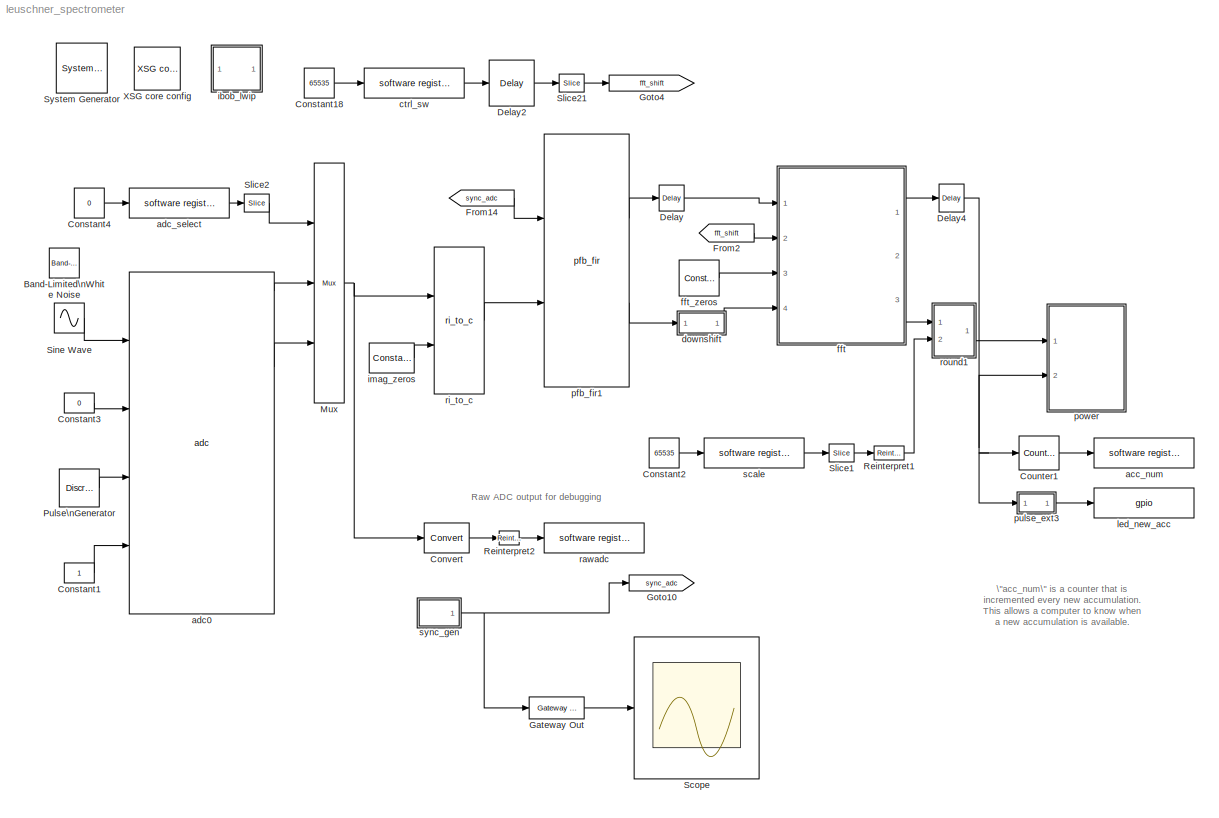
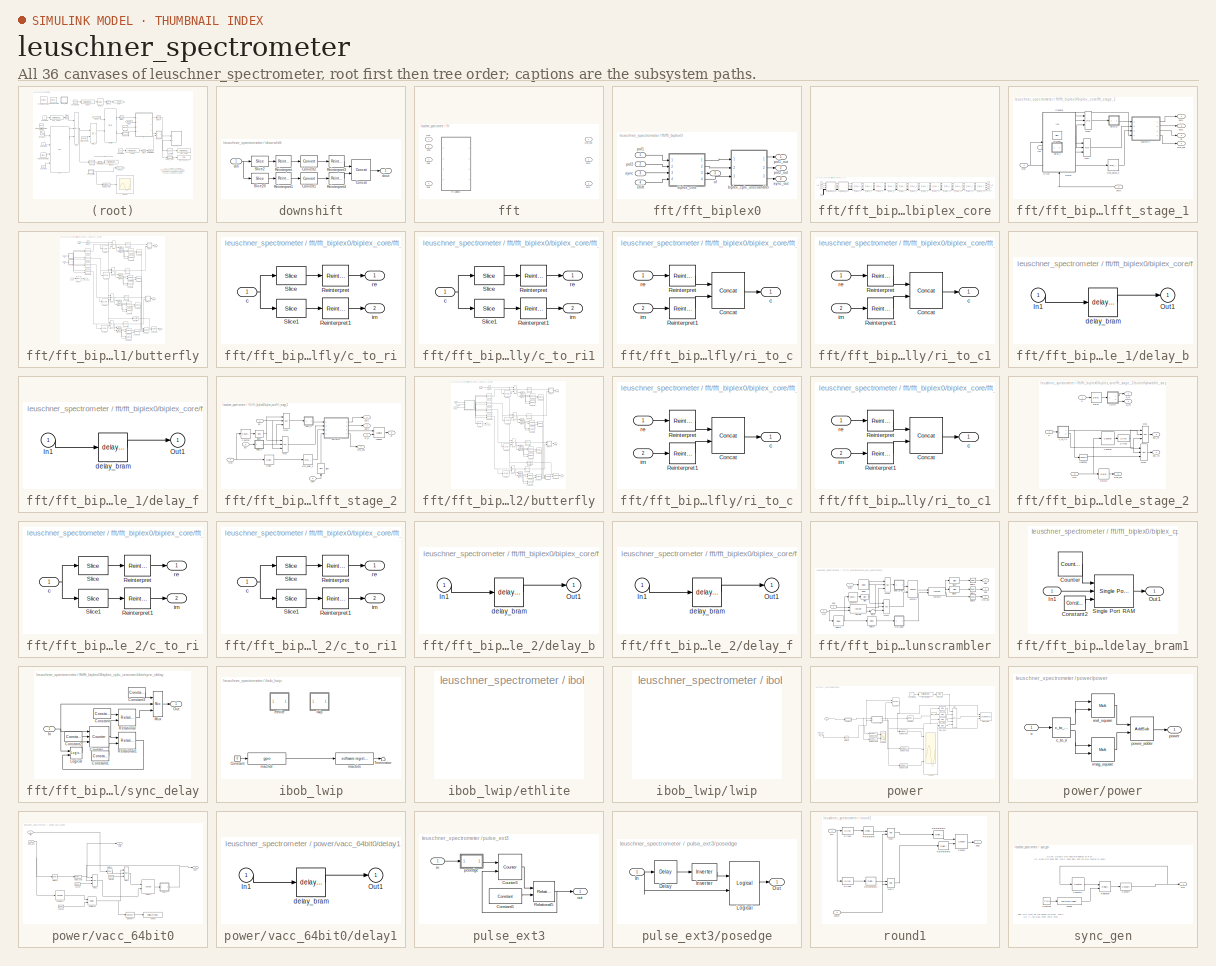
[diagram: thumbnail index - all 36 canvases of the model, root first then tree order]
MODEL leuschner_spectrometer
KIND model
BLOCK [Reference]  System Generator  REF=xbsIndex_r3/ System Generator
  AttributesFormatString = System\\nGenerator
  Ports = []
  ShowPortLabels = on
  SourceBlock = xbsIndex_r3/ System Generator
  SourceType = Xilinx System Generator
  Tag = genX
  UserData = DataTag0
  UserDataPersistent = on
  core_generation = According to Block Masks
  dbl_ovrd = According to Block Masks
  deprecated_control = off
  directory = ./heilesspec_two_inp/sysgen
  eval_field = 0
  incr_netlist = off
  package = ff1152
  part = xc2vp50
  run_coregen = off
  simulink_period = 1
  speed = -7
  synthesis_tool = XST
  sysclk_period = 41.6667
  testbench = off
  trim_vbits = Everywhere in SubSystem
  xilinxfamily = Virtex2P
BLOCK [Reference] Band-Limited\nWhite Noise  REF=simulink/Sources/Band-Limited\nWhite Noise
  Cov = [0.1]
  Ports = [0, 1]
  ShowPortLabels = on
  SourceBlock = simulink/Sources/Band-Limited\nWhite Noise
  SourceType = Band-Limited White Noise.
  Ts = 0.1
  VectorParams1D = on
  seed = [23341]
BLOCK [Constant] Constant1
BLOCK [Constant] Constant18
  Value = 65535
BLOCK [Constant] Constant2
  Value = 65535
BLOCK [Constant] Constant3
  Value = 0
BLOCK [Constant] Constant4
  Value = 0
BLOCK [Reference] Convert  REF=xbsIndex_r3/Convert
  Ports = [1, 1]
  SourceBlock = xbsIndex_r3/Convert
  SourceType = Xilinx Converter Block
  arith_type = Signed  (2's comp)
  bin_pt = 7
  dbl_ovrd = off
  explicit_period = off
  inserted_by_tool = off
  latency = 0
  n_bits = 32
  overflow = Wrap
  period = 1
  pipeline = off
  quantization = Truncate
  show_param = off
  xl_area = [0, 0, 0, 0, 0, 0, 0]
  xl_use_area = off
BLOCK [Reference] Counter1  REF=xbsIndex_r3/Counter
  Ports = [1, 1]
  SourceBlock = xbsIndex_r3/Counter
  SourceType = Xilinx Counter Block
  arith_type = Unsigned
  bin_pt = 0
  cnt_by_val = 1
  cnt_to = Inf
  cnt_type = Free Running
  dbl_ovrd = off
  en = on
  explicit_period = off
  gen_core = off
  load_pin = off
  n_bits = 32
  operation = Up
  period = 1
  rst = off
  show_param = off
  start_count = 0
  use_rpm = on
  xl_area = [0, 0, 0, 0, 0, 0, 0]
  xl_use_area = off
BLOCK [Reference] Delay  REF=xbsIndex_r3/Delay
  Ports = [1, 1]
  SourceBlock = xbsIndex_r3/Delay
  SourceType = Xilinx Delay Block
  accept_only_valid = off
  dbl_ovrd = off
  en = off
  explicit_period = off
  init_zero = on
  latency = 2
  period = 1
  reg_retiming = off
  show_param = off
  xl_area = [0, 0, 0, 0, 0, 0, 0]
  xl_use_area = off
BLOCK [Reference] Delay2  REF=xbsIndex_r3/Delay
  Ports = [1, 1]
  SourceBlock = xbsIndex_r3/Delay
  SourceType = Xilinx Delay Block
  accept_only_valid = off
  dbl_ovrd = off
  en = off
  explicit_period = off
  init_zero = on
  latency = 1
  period = 1
  reg_retiming = off
  show_param = off
  xl_area = [0, 0, 0, 0, 0, 0, 0]
  xl_use_area = off
BLOCK [Reference] Delay4  REF=xbsIndex_r3/Delay
  Ports = [1, 1]
  SourceBlock = xbsIndex_r3/Delay
  SourceType = Xilinx Delay Block
  accept_only_valid = off
  dbl_ovrd = off
  en = off
  explicit_period = off
  init_zero = on
  latency = 4
  period = 1
  reg_retiming = off
  show_param = off
  xl_area = [0, 0, 0, 0, 0, 0, 0]
  xl_use_area = off
BLOCK [From] From14
  CloseFcn = tagdialog Close
  GotoTag = sync_adc
BLOCK [From] From2
  CloseFcn = tagdialog Close
  GotoTag = fft_shift
BLOCK [Reference] Gateway Out  REF=xbsIndex_r3/Gateway Out
  LOCs = {}
  Ports = [1, 1]
  SourceBlock = xbsIndex_r3/Gateway Out
  SourceType = Xilinx Gateway Out
  arith_type = Boolean
  bin_pt = 6
  hdl_port = on
  locs_specified = off
  nbits = 8
  needs_fixed_name = off
  output_type = Double
  overflow = Wrap
  quantization = Truncate
  show_param = off
  timing_constraint = None
  xl_area = [0, 0, 0, 0, 0, 0, 0]
  xl_use_area = off
BLOCK [Goto] Goto10
  GotoTag = sync_adc
  TagVisibility = local
BLOCK [Goto] Goto4
  GotoTag = fft_shift
  TagVisibility = local
BLOCK [Reference] Mux  REF=xbsIndex_r3/Mux
  Ports = [3, 1]
  SourceBlock = xbsIndex_r3/Mux
  SourceType = Xilinx Multiplexer Block
  arith_type = Signed  (2's comp)
  bin_pt = 2
  dbl_ovrd = off
  en = off
  explicit_period = off
  gen_core = off
  inputs = 2
  latency = 0
  mux_type = off
  n_bits = 8
  overflow = Wrap
  period = 1
  precision = Full
  quantization = Truncate
  show_param = off
  use_rpm = off
  xl_area = [0, 0, 0, 0, 0, 0, 0]
  xl_use_area = off
BLOCK [DiscretePulseGenerator] Pulse\nGenerator
  Period = 2^9
  Ports = [0, 1]
BLOCK [Reference] Reinterpret1  REF=xbsIndex_r3/Reinterpret
  Ports = [1, 1]
  SourceBlock = xbsIndex_r3/Reinterpret
  SourceType = Xilinx Type Reinterpreting Block
  arith_type = Unsigned
  bin_pt = 3
  force_arith_type = on
  force_bin_pt = on
  force_valid = on
BLOCK [Reference] Reinterpret2  REF=xbsIndex_r3/Reinterpret
  Ports = [1, 1]
  SourceBlock = xbsIndex_r3/Reinterpret
  SourceType = Xilinx Type Reinterpreting Block
  arith_type = Unsigned
  bin_pt = 0
  force_arith_type = on
  force_bin_pt = on
  force_valid = on
BLOCK [Scope] Scope
  DataFormat = StructureWithTime
  NumInputPorts = 1
  Ports = [1]
  YMax = 1
  YMin = -1
BLOCK [Sin] Sine Wave
  Amplitude = 0.2
  Frequency = 2*pi*0.5
  Ports = [0, 1]
  SampleTime = 1
  Samples = 8
  SineType = Sample based
BLOCK [Reference] Slice1  REF=xbsIndex_r3/Slice
  Ports = [1, 1]
  SourceBlock = xbsIndex_r3/Slice
  SourceType = Xilinx Slice Block
  base0 = LSB of Input
  base1 = MSB of Input
  bit0 = 0
  bit1 = 0
  boolean_output = off
  dbl_ovrd = off
  explicit_period = off
  mode = Lower Bit Location + Width
  nbits = 18
  period = 1
BLOCK [Reference] Slice2  REF=xbsIndex_r3/Slice
  Ports = [1, 1]
  SourceBlock = xbsIndex_r3/Slice
  SourceType = Xilinx Slice Block
  base0 = LSB of Input
  base1 = MSB of Input
  bit0 = 0
  bit1 = 0
  boolean_output = on
  dbl_ovrd = off
  explicit_period = off
  mode = Lower Bit Location + Width
  nbits = 1
  period = 1
BLOCK [Reference] Slice21  REF=xbsIndex_r3/Slice
  Ports = [1, 1]
  SourceBlock = xbsIndex_r3/Slice
  SourceType = Xilinx Slice Block
  base0 = LSB of Input
  base1 = MSB of Input
  bit0 = 0
  bit1 = 0
  boolean_output = off
  dbl_ovrd = off
  explicit_period = off
  mode = Lower Bit Location + Width
  nbits = 16
  period = 1
BLOCK [Reference] XSG core config  REF=xps_library/XSG core config  (lib defined in mdl_00b5cec29cd0, mdl_02ab6ecaa3d1, +5 more)
  Ports = []
  ShowPortLabels = on
  SourceBlock = xps_library/XSG core config
  SourceType = xsg core config
  Tag = xps:xsg
  clk_rate = 24
  clk_src = adc0_clk
  gpio_clk_bit_index = 0
  gpio_clk_io_group = iBOB:sma
  hw_sys = iBOB
  ibob_linux = off
  mpc_type = powerpc405
  sample_period = 1
  synthesis_tool = XST
BLOCK [Reference] acc_num  REF=xps_library/software register  (lib defined in mdl_00b5cec29cd0, mdl_02ab6ecaa3d1, +5 more)
  Ports = [1, 1]
  ShowPortLabels = on
  SourceBlock = xps_library/software register
  Tag = xps:sw_reg
  arith_type = Unsigned
  bin_pt = 0
  bitwidth = 32
  gw_name = heilesspec_two_inp_acc_num_user_data_in
  io_dir = To Processor
  sample_period = 1
BLOCK [Reference] adc0  REF=xps_library/adc  (lib defined in mdl_00b5cec29cd0, mdl_02ab6ecaa3d1, +5 more)
  Ports = [4, 17]
  ShowPortLabels = on
  SourceBlock = xps_library/adc
  SourceType = adc
  Tag = xps:adc
  adc_brd = iBOB:adc0
  adc_clk_rate = 96
  adc_interleave = off
  sample_period = 1
BLOCK [Reference] adc_select  REF=xps_library/software register  (lib defined in mdl_00b5cec29cd0, mdl_02ab6ecaa3d1, +5 more)
  Ports = [1, 1]
  ShowPortLabels = on
  SourceBlock = xps_library/software register
  Tag = xps:sw_reg
  arith_type = Unsigned
  bin_pt = 0
  bitwidth = 32
  gw_name = heilesspec_two_inp_adc_select_user_data_out
  io_dir = From Processor
  sample_period = 1
BLOCK [Reference] ctrl_sw  REF=xps_library/software register  (lib defined in mdl_00b5cec29cd0, mdl_02ab6ecaa3d1, +5 more)
  Ports = [1, 1]
  ShowPortLabels = on
  SourceBlock = xps_library/software register
  Tag = xps:sw_reg
  arith_type = Unsigned
  bin_pt = 0
  bitwidth = 32
  gw_name = heilesspec_two_inp_ctrl_sw_user_data_out
  io_dir = From Processor
  sample_period = 1
BLOCK [SubSystem] downshift
  MinAlgLoopOccurrences = off
  Ports = [1, 1]
  RTWSystemCode = Auto
  TreatAsAtomicUnit = off
BLOCK [Reference] downshift/Concat  REF=xbsIndex_r3/Concat
  Ports = [2, 1]
  SourceBlock = xbsIndex_r3/Concat
  SourceType = Xilinx Bus Concatenator
  dbl_ovrd = off
  explicit_period = off
  num_inputs = 2
  period = 1
BLOCK [Reference] downshift/Convert1  REF=xbsIndex_r3/Convert
  Ports = [1, 1]
  SourceBlock = xbsIndex_r3/Convert
  SourceType = Xilinx Converter Block
  arith_type = Signed  (2's comp)
  bin_pt = 15
  dbl_ovrd = off
  explicit_period = off
  inserted_by_tool = off
  latency = 2
  n_bits = 18
  overflow = Wrap
  period = 1
  pipeline = off
  quantization = Round  (unbiased: Even Values)
  show_param = off
  xl_area = [0, 0, 0, 0, 0, 0, 0]
  xl_use_area = off
BLOCK [Reference] downshift/Convert2  REF=xbsIndex_r3/Convert
  Ports = [1, 1]
  SourceBlock = xbsIndex_r3/Convert
  SourceType = Xilinx Converter Block
  arith_type = Signed  (2's comp)
  bin_pt = 15
  dbl_ovrd = off
  explicit_period = off
  inserted_by_tool = off
  latency = 2
  n_bits = 18
  overflow = Wrap
  period = 1
  pipeline = off
  quantization = Round  (unbiased: Even Values)
  show_param = off
  xl_area = [0, 0, 0, 0, 0, 0, 0]
  xl_use_area = off
BLOCK [Reference] downshift/Reinterpret  REF=xbsIndex_r3/Reinterpret
  Ports = [1, 1]
  SourceBlock = xbsIndex_r3/Reinterpret
  SourceType = Xilinx Type Reinterpreting Block
  arith_type = Signed  (2's comp)
  bin_pt = 17
  force_arith_type = on
  force_bin_pt = on
  force_valid = on
BLOCK [Reference] downshift/Reinterpret1  REF=xbsIndex_r3/Reinterpret
  Ports = [1, 1]
  SourceBlock = xbsIndex_r3/Reinterpret
  SourceType = Xilinx Type Reinterpreting Block
  arith_type = Signed  (2's comp)
  bin_pt = 17
  force_arith_type = on
  force_bin_pt = on
  force_valid = on
BLOCK [Reference] downshift/Reinterpret3  REF=xbsIndex_r3/Reinterpret
  Ports = [1, 1]
  SourceBlock = xbsIndex_r3/Reinterpret
  SourceType = Xilinx Type Reinterpreting Block
  arith_type = Unsigned
  bin_pt = 0
  force_arith_type = on
  force_bin_pt = on
  force_valid = on
BLOCK [Reference] downshift/Reinterpret4  REF=xbsIndex_r3/Reinterpret
  Ports = [1, 1]
  SourceBlock = xbsIndex_r3/Reinterpret
  SourceType = Xilinx Type Reinterpreting Block
  arith_type = Unsigned
  bin_pt = 0
  force_arith_type = on
  force_bin_pt = on
  force_valid = on
BLOCK [Reference] downshift/Slice2  REF=xbsIndex_r3/Slice
  Ports = [1, 1]
  SourceBlock = xbsIndex_r3/Slice
  SourceType = Xilinx Slice Block
  base0 = LSB of Input
  base1 = MSB of Input
  bit0 = 0
  bit1 = 0
  boolean_output = off
  dbl_ovrd = off
  explicit_period = off
  mode = Upper Bit Location + Width
  nbits = 18
  period = 1
BLOCK [Reference] downshift/Slice20  REF=xbsIndex_r3/Slice
  Ports = [1, 1]
  SourceBlock = xbsIndex_r3/Slice
  SourceType = Xilinx Slice Block
  base0 = LSB of Input
  base1 = MSB of Input
  bit0 = 0
  bit1 = 0
  boolean_output = off
  dbl_ovrd = off
  explicit_period = off
  mode = Lower Bit Location + Width
  nbits = 18
  period = 1
BLOCK [Inport] downshift/din
  IconDisplay = Port number
  LatchInput = off
  Port = 1
BLOCK [Outport] downshift/dout
  BusOutputAsStruct = off
  IconDisplay = Port number
BLOCK [SubSystem] fft
  AncestorBlock = fft_library/fft
  MaskCallbackString = |||||||
  MaskEnableString = on,on,on,on,on,on,on,on
  MaskIconFrame = on
  MaskIconOpaque = on
  MaskIconRotate = none
  MaskIconUnits = autoscale
  MaskInitialization = fft_mask;
  MaskPromptString = Size of FFT: (2^?)|Bit Width|Number of Simultaneous Inputs: (2^?)|Quantization Behavior|Overflow Behavior|Add Latency|Mult Latency|BRAM Latency
  MaskSelfModifiable = on
  MaskStyleString = edit,edit,edit,popup(Truncate|Round  (unbiased: +/- Inf)|Round  (unbiased: Even Values)),popup(Wrap|Saturate|Error),edit,edit,edit
  MaskTabNameString = ,,,,,,,
  MaskToolTipString = on,on,on,on,on,on,on,on
  MaskTunableValueString = on,on,on,on,on,on,on,on
  MaskValueString = 14|18|0|Truncate|Wrap|2|4|1
  MaskVarAliasString = ,,,,,,,
  MaskVariables = FFTSize=@1;BitWidth=@2;n_inputs=@3;quantization=&4;overflow=&5;add_latency=@6;mult_latency=@7;bram_latency=@8;
  MaskVisibilityString = on,on,on,on,on,on,on,on
  MinAlgLoopOccurrences = off
  Ports = [4, 3]
  RTWSystemCode = Auto
  TreatAsAtomicUnit = off
BLOCK [SubSystem] fft/fft_biplex0
  AncestorBlock = fft_library/fft_biplex
  MaskCallbackString = ||||||
  MaskEnableString = on,on,on,on,on,on,on
  MaskIconFrame = on
  MaskIconOpaque = on
  MaskIconRotate = none
  MaskIconUnits = autoscale
  MaskInitialization = cursys = gcb;\ndisp(cursys);\nbiplex_core = [cursys,'/biplex_core'];\nif ~strcmp(get_param(biplex_core, 'quantization'), quantization),\n    set_param(biplex_core, 'quantization', quantization);\nend\nif ~strcmp(get_param(biplex_core, 'overflow'), overflow),\n    set_param(biplex_core, 'overflow', overflow);\nend
  MaskPromptString = Size of FFT: (2^? pnts)|Bitwidth: (Max Efficiency at 18 bits)|Quantization Behavior|Overflow Behavior|Add Latency|Mult Latency|BRAM Latency
  MaskSelfModifiable = on
  MaskStyleString = edit,edit,popup(Truncate|Round  (unbiased: +/- Inf)|Round  (unbiased: Even Values)),popup(Wrap|Saturate|Error),edit,edit,edit
  MaskTabNameString = ,,,,,,
  MaskToolTipString = on,on,on,on,on,on,on
  MaskTunableValueString = on,on,on,on,on,on,on
  MaskType = fft_biplex
  MaskValueString = FFTSize-n_inputs|BitWidth|Truncate|Wrap|add_latency|mult_latency|bram_latency
  MaskVarAliasString = ,,,,,,
  MaskVariables = FFTSize=@1;BitWidth=@2;quantization=&3;overflow=&4;add_latency=@5;mult_latency=@6;bram_latency=@7;
  MaskVisibilityString = on,on,on,on,on,on,on
  MinAlgLoopOccurrences = off
  Ports = [4, 4]
  RTWSystemCode = Auto
  TreatAsAtomicUnit = off
BLOCK [SubSystem] fft/fft_biplex0/biplex_core
  AncestorBlock = fft_library/biplex_core
  MaskCallbackString = ||||||
  MaskEnableString = on,on,on,on,on,on,on
  MaskIconFrame = on
  MaskIconOpaque = on
  MaskIconRotate = none
  MaskIconUnits = autoscale
  MaskInitialization = biplex_core_mask;
  MaskPromptString = Size of FFT: (2^? pnts)|Bitwidth: (Max Efficiency at 18 bits)|Quantization Behavior|Overflow Behavior|Add Latency|Mult Latency|BRAM Latency
  MaskSelfModifiable = on
  MaskStyleString = edit,edit,popup(Truncate|Round  (unbiased: +/- Inf)|Round  (unbiased: Even Values)),popup(Wrap|Saturate|Error),edit,edit,edit
  MaskTabNameString = ,,,,,,
  MaskToolTipString = on,on,on,on,on,on,on
  MaskTunableValueString = on,on,on,on,on,on,on
  MaskValueString = FFTSize|BitWidth|Truncate|Wrap|add_latency|mult_latency|bram_latency
  MaskVarAliasString = ,,,,,,
  MaskVariables = FFTSize=@1;BitWidth=@2;quantization=&3;overflow=&4;add_latency=@5;mult_latency=@6;bram_latency=@7;
  MaskVisibilityString = on,on,on,on,on,on,on
  MinAlgLoopOccurrences = off
  Ports = [4, 4]
  RTWSystemCode = Auto
  TreatAsAtomicUnit = off
BLOCK [SubSystem] fft/fft_biplex0/biplex_core/fft_stage_1
  MaskCallbackString = ||||||||||
  MaskEnableString = on,on,on,on,on,on,on,on,on,on,on
  MaskIconFrame = on
  MaskIconOpaque = on
  MaskIconRotate = none
  MaskIconUnits = autoscale
  MaskInitialization = fft_stage_n_mask;
  MaskPromptString = Size of FFT: (2^? pnts)|Stage of FFT:|Output Bitwidth:|Implement Delays in BRAM:|Store Coefficients in BRAM:|Maximum Coefficient Depth: (2^?)|Quantization Behavior|Overflow Behavior|Add Latency|Mult Latency|BRAM Latency
  MaskSelfModifiable = on
  MaskStyleString = edit,edit,edit,checkbox,checkbox,edit,popup(Truncate|Round  (unbiased: +/- Inf)|Round  (unbiased: Even Values)),popup(Wrap|Saturate|Error),edit,edit,edit
  MaskTabNameString = ,,,,,,,,,,
  MaskToolTipString = on,on,on,on,on,on,on,on,on,on,on
  MaskTunableValueString = on,on,on,on,on,on,on,on,on,on,on
  MaskType = fft_stage
  MaskValueString = FFTSize|1|BitWidth|on|off|MaxCoeffNum|Truncate|Wrap|add_latency|mult_latency|bram_latency
  MaskVarAliasString = ,,,,,,,,,,
  MaskVariables = FFTSize=@1;FFTStage=@2;BitWidth=@3;DelayBram=@4;CoeffBram=&5;MaxCoeffNum=@6;quantization=&7;overflow=&8;add_latency=@9;mult_latency=@10;bram_latency=@11;
  MaskVisibilityString = on,on,on,on,on,on,on,on,on,on,on
  MinAlgLoopOccurrences = off
  Ports = [4, 4]
  RTWSystemCode = Auto
  TreatAsAtomicUnit = off
BLOCK [Reference] fft/fft_biplex0/biplex_core/fft_stage_1/Counter  REF=xbsIndex_r3/Counter
  Ports = [1, 1]
  SourceBlock = xbsIndex_r3/Counter
  SourceType = Xilinx Counter Block
  arith_type = Unsigned
  bin_pt = 0
  cnt_by_val = 1
  cnt_to = Inf
  cnt_type = Free Running
  dbl_ovrd = off
  en = off
  explicit_period = off
  gen_core = on
  load_pin = off
  n_bits = FFTSize-FFTStage+1
  operation = Up
  period = 1
  rst = on
  show_param = off
  start_count = 0
  use_rpm = off
  xl_area = [0, 0, 0, 0, 0, 0, 0]
  xl_use_area = off
BLOCK [Reference] fft/fft_biplex0/biplex_core/fft_stage_1/Delay  REF=xbsIndex_r3/Delay
  Ports = [1, 1]
  SourceBlock = xbsIndex_r3/Delay
  SourceType = Xilinx Delay Block
  accept_only_valid = off
  dbl_ovrd = off
  en = off
  explicit_period = off
  init_zero = on
  latency = 1
  period = 1
  reg_retiming = off
  show_param = off
  xl_area = [0, 0, 0, 0, 0, 0, 0]
  xl_use_area = off
BLOCK [Reference] fft/fft_biplex0/biplex_core/fft_stage_1/Mux  REF=xbsIndex_r3/Mux
  Ports = [3, 1]
  SourceBlock = xbsIndex_r3/Mux
  SourceType = Xilinx Multiplexer Block
  arith_type = Signed  (2's comp)
  bin_pt = 2
  dbl_ovrd = off
  en = off
  explicit_period = off
  gen_core = on
  inputs = 2
  latency = 1
  mux_type = off
  n_bits = 8
  overflow = Wrap
  period = 1
  precision = Full
  quantization = Truncate
  show_param = off
  use_rpm = off
  xl_area = [0, 0, 0, 0, 0, 0, 0]
  xl_use_area = off
BLOCK [Reference] fft/fft_biplex0/biplex_core/fft_stage_1/Mux1  REF=xbsIndex_r3/Mux
  Ports = [3, 1]
  SourceBlock = xbsIndex_r3/Mux
  SourceType = Xilinx Multiplexer Block
  arith_type = Signed  (2's comp)
  bin_pt = 2
  dbl_ovrd = off
  en = off
  explicit_period = off
  gen_core = on
  inputs = 2
  latency = 1
  mux_type = off
  n_bits = 8
  overflow = Wrap
  period = 1
  precision = Full
  quantization = Truncate
  show_param = off
  use_rpm = off
  xl_area = [0, 0, 0, 0, 0, 0, 0]
  xl_use_area = off
BLOCK [Reference] fft/fft_biplex0/biplex_core/fft_stage_1/Slice  REF=xbsIndex_r3/Slice
  Ports = [1, 1]
  SourceBlock = xbsIndex_r3/Slice
  SourceType = Xilinx Slice Block
  base0 = LSB of Input
  base1 = MSB of Input
  bit0 = FFTStage - 1
  bit1 = -(FFTStage - 1)
  boolean_output = on
  dbl_ovrd = off
  explicit_period = off
  mode = Lower Bit Location + Width
  nbits = 1
  period = 1
BLOCK [Reference] fft/fft_biplex0/biplex_core/fft_stage_1/Slice1  REF=xbsIndex_r3/Slice
  Ports = [1, 1]
  SourceBlock = xbsIndex_r3/Slice
  SourceType = Xilinx Slice Block
  base0 = LSB of Input
  base1 = MSB of Input
  bit0 = 0
  bit1 = 0
  boolean_output = off
  dbl_ovrd = off
  explicit_period = off
  mode = Upper Bit Location + Width
  nbits = 1
  period = 1
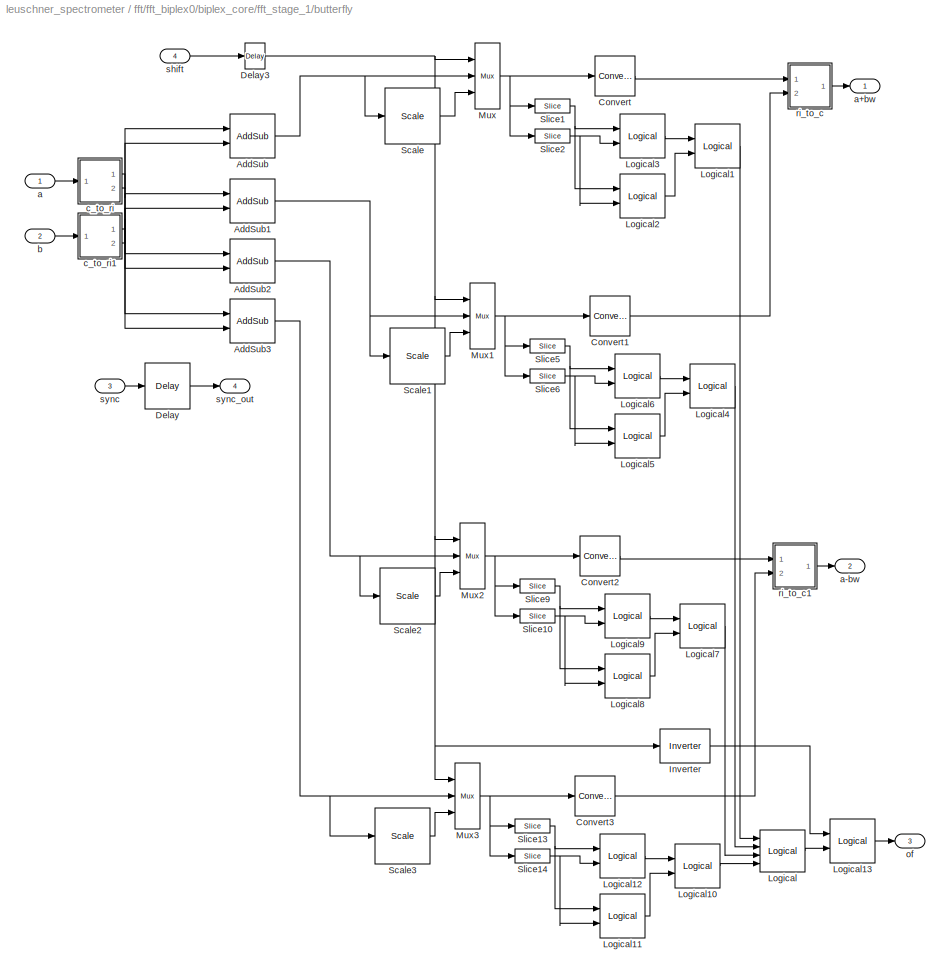
BLOCK [SubSystem] fft/fft_biplex0/biplex_core/fft_stage_1/butterfly
  MinAlgLoopOccurrences = off
  Ports = [4, 4]
  RTWSystemCode = Auto
  TreatAsAtomicUnit = off
BLOCK [Reference] fft/fft_biplex0/biplex_core/fft_stage_1/butterfly/AddSub  REF=xbsIndex_r3/AddSub
  Ports = [2, 1]
  SourceBlock = xbsIndex_r3/AddSub
  SourceType = Xilinx Adder/Subtractor
  arith_type = Unsigned
  bin_pt = 2
  dbl_ovrd = off
  en = off
  explicit_period = off
  gen_core = on
  latency = add_latency
  mode = Addition
  n_bits = 8
  overflow = Wrap
  period = 1
  pipeline = on
  precision = Full
  quantization = Truncate
  show_param = on
  use_carryin = off
  use_carryout = off
  use_core = on
  use_rpm = on
  xl_area = [0, 0, 0, 0, 0, 0, 0]
  xl_use_area = off
BLOCK [Reference] fft/fft_biplex0/biplex_core/fft_stage_1/butterfly/AddSub1  REF=xbsIndex_r3/AddSub
  Ports = [2, 1]
  SourceBlock = xbsIndex_r3/AddSub
  SourceType = Xilinx Adder/Subtractor
  arith_type = Unsigned
  bin_pt = 2
  dbl_ovrd = off
  en = off
  explicit_period = off
  gen_core = on
  latency = add_latency
  mode = Addition
  n_bits = 8
  overflow = Wrap
  period = 1
  pipeline = on
  precision = Full
  quantization = Truncate
  show_param = on
  use_carryin = off
  use_carryout = off
  use_core = on
  use_rpm = on
  xl_area = [0, 0, 0, 0, 0, 0, 0]
  xl_use_area = off
BLOCK [Reference] fft/fft_biplex0/biplex_core/fft_stage_1/butterfly/AddSub2  REF=xbsIndex_r3/AddSub
  Ports = [2, 1]
  SourceBlock = xbsIndex_r3/AddSub
  SourceType = Xilinx Adder/Subtractor
  arith_type = Unsigned
  bin_pt = 2
  dbl_ovrd = off
  en = off
  explicit_period = off
  gen_core = on
  latency = add_latency
  mode = Subtraction
  n_bits = 8
  overflow = Wrap
  period = 1
  pipeline = on
  precision = Full
  quantization = Truncate
  show_param = on
  use_carryin = off
  use_carryout = off
  use_core = on
  use_rpm = on
  xl_area = [0, 0, 0, 0, 0, 0, 0]
  xl_use_area = off
BLOCK [Reference] fft/fft_biplex0/biplex_core/fft_stage_1/butterfly/AddSub3  REF=xbsIndex_r3/AddSub
  Ports = [2, 1]
  SourceBlock = xbsIndex_r3/AddSub
  SourceType = Xilinx Adder/Subtractor
  arith_type = Unsigned
  bin_pt = 2
  dbl_ovrd = off
  en = off
  explicit_period = off
  gen_core = on
  latency = add_latency
  mode = Subtraction
  n_bits = 8
  overflow = Wrap
  period = 1
  pipeline = on
  precision = Full
  quantization = Truncate
  show_param = on
  use_carryin = off
  use_carryout = off
  use_core = on
  use_rpm = on
  xl_area = [0, 0, 0, 0, 0, 0, 0]
  xl_use_area = off
BLOCK [Reference] fft/fft_biplex0/biplex_core/fft_stage_1/butterfly/Convert  REF=xbsIndex_r3/Convert
  Ports = [1, 1]
  SourceBlock = xbsIndex_r3/Convert
  SourceType = Xilinx Converter Block
  arith_type = Signed  (2's comp)
  bin_pt = BitWidth-1
  dbl_ovrd = off
  explicit_period = off
  inserted_by_tool = off
  latency = add_latency
  n_bits = BitWidth
  overflow = Wrap
  period = 1
  pipeline = off
  quantization = Truncate
  show_param = off
  xl_area = [0, 0, 0, 0, 0, 0, 0]
  xl_use_area = off
BLOCK [Reference] fft/fft_biplex0/biplex_core/fft_stage_1/butterfly/Convert1  REF=xbsIndex_r3/Convert
  Ports = [1, 1]
  SourceBlock = xbsIndex_r3/Convert
  SourceType = Xilinx Converter Block
  arith_type = Signed  (2's comp)
  bin_pt = BitWidth-1
  dbl_ovrd = off
  explicit_period = off
  inserted_by_tool = off
  latency = add_latency
  n_bits = BitWidth
  overflow = Wrap
  period = 1
  pipeline = off
  quantization = Truncate
  show_param = off
  xl_area = [0, 0, 0, 0, 0, 0, 0]
  xl_use_area = off
BLOCK [Reference] fft/fft_biplex0/biplex_core/fft_stage_1/butterfly/Convert2  REF=xbsIndex_r3/Convert
  Ports = [1, 1]
  SourceBlock = xbsIndex_r3/Convert
  SourceType = Xilinx Converter Block
  arith_type = Signed  (2's comp)
  bin_pt = BitWidth-1
  dbl_ovrd = off
  explicit_period = off
  inserted_by_tool = off
  latency = add_latency
  n_bits = BitWidth
  overflow = Wrap
  period = 1
  pipeline = off
  quantization = Truncate
  show_param = off
  xl_area = [0, 0, 0, 0, 0, 0, 0]
  xl_use_area = off
BLOCK [Reference] fft/fft_biplex0/biplex_core/fft_stage_1/butterfly/Convert3  REF=xbsIndex_r3/Convert
  Ports = [1, 1]
  SourceBlock = xbsIndex_r3/Convert
  SourceType = Xilinx Converter Block
  arith_type = Signed  (2's comp)
  bin_pt = BitWidth-1
  dbl_ovrd = off
  explicit_period = off
  inserted_by_tool = off
  latency = add_latency
  n_bits = BitWidth
  overflow = Wrap
  period = 1
  pipeline = off
  quantization = Truncate
  show_param = off
  xl_area = [0, 0, 0, 0, 0, 0, 0]
  xl_use_area = off
BLOCK [Reference] fft/fft_biplex0/biplex_core/fft_stage_1/butterfly/Delay  REF=xbsIndex_r3/Delay
  Ports = [1, 1]
  SourceBlock = xbsIndex_r3/Delay
  SourceType = Xilinx Delay Block
  accept_only_valid = off
  dbl_ovrd = off
  en = off
  explicit_period = off
  init_zero = on
  latency = 2 * add_latency + 1
  period = 1
  reg_retiming = off
  show_param = off
  xl_area = [0, 0, 0, 0, 0, 0, 0]
  xl_use_area = off
BLOCK [Reference] fft/fft_biplex0/biplex_core/fft_stage_1/butterfly/Delay3  REF=xbsIndex_r3/Delay
  Ports = [1, 1]
  SourceBlock = xbsIndex_r3/Delay
  SourceType = Xilinx Delay Block
  accept_only_valid = off
  dbl_ovrd = off
  en = off
  explicit_period = off
  init_zero = on
  latency = 1
  period = 1
  reg_retiming = off
  show_param = off
  xl_area = [0, 0, 0, 0, 0, 0, 0]
  xl_use_area = off
BLOCK [Reference] fft/fft_biplex0/biplex_core/fft_stage_1/butterfly/Inverter  REF=xbsIndex_r3/Inverter
  Ports = [1, 1]
  SourceBlock = xbsIndex_r3/Inverter
  SourceType = Xilinx Inverter
  dbl_ovrd = off
  en = off
  explicit_period = off
  latency = 0
  period = 1
  show_param = off
  xl_area = [0, 0, 0, 0, 0, 0, 0]
  xl_use_area = off
BLOCK [Reference] fft/fft_biplex0/biplex_core/fft_stage_1/butterfly/Logical  REF=xbsIndex_r3/Logical
  Ports = [4, 1]
  SourceBlock = xbsIndex_r3/Logical
  SourceType = Xilinx Logical Block
  align_bp = on
  arith_type = Unsigned
  bin_pt = 2
  dbl_ovrd = off
  en = off
  explicit_period = off
  inputs = 4
  latency = 1
  logical_function = OR
  n_bits = 8
  period = 1
  precision = Full
  show_param = off
  xl_area = [0, 0, 0, 0, 0, 0, 0]
  xl_use_area = off
BLOCK [Reference] fft/fft_biplex0/biplex_core/fft_stage_1/butterfly/Logical1  REF=xbsIndex_r3/Logical
  Ports = [2, 1]
  SourceBlock = xbsIndex_r3/Logical
  SourceType = Xilinx Logical Block
  align_bp = off
  arith_type = Unsigned
  bin_pt = 2
  dbl_ovrd = off
  en = off
  explicit_period = off
  inputs = 2
  latency = 1
  logical_function = OR
  n_bits = 8
  period = 1
  precision = Full
  show_param = off
  xl_area = [0, 0, 0, 0, 0, 0, 0]
  xl_use_area = off
BLOCK [Reference] fft/fft_biplex0/biplex_core/fft_stage_1/butterfly/Logical10  REF=xbsIndex_r3/Logical
  Ports = [2, 1]
  SourceBlock = xbsIndex_r3/Logical
  SourceType = Xilinx Logical Block
  align_bp = off
  arith_type = Unsigned
  bin_pt = 2
  dbl_ovrd = off
  en = off
  explicit_period = off
  inputs = 2
  latency = 1
  logical_function = OR
  n_bits = 8
  period = 1
  precision = Full
  show_param = off
  xl_area = [0, 0, 0, 0, 0, 0, 0]
  xl_use_area = off
BLOCK [Reference] fft/fft_biplex0/biplex_core/fft_stage_1/butterfly/Logical11  REF=xbsIndex_r3/Logical
  Ports = [2, 1]
  SourceBlock = xbsIndex_r3/Logical
  SourceType = Xilinx Logical Block
  align_bp = off
  arith_type = Unsigned
  bin_pt = 2
  dbl_ovrd = off
  en = off
  explicit_period = off
  inputs = 2
  latency = 1
  logical_function = NOR
  n_bits = 8
  period = 1
  precision = Full
  show_param = off
  xl_area = [0, 0, 0, 0, 0, 0, 0]
  xl_use_area = off
BLOCK [Reference] fft/fft_biplex0/biplex_core/fft_stage_1/butterfly/Logical12  REF=xbsIndex_r3/Logical
  Ports = [2, 1]
  SourceBlock = xbsIndex_r3/Logical
  SourceType = Xilinx Logical Block
  align_bp = off
  arith_type = Unsigned
  bin_pt = 2
  dbl_ovrd = off
  en = off
  explicit_period = off
  inputs = 2
  latency = 1
  logical_function = AND
  n_bits = 8
  period = 1
  precision = Full
  show_param = off
  xl_area = [0, 0, 0, 0, 0, 0, 0]
  xl_use_area = off
BLOCK [Reference] fft/fft_biplex0/biplex_core/fft_stage_1/butterfly/Logical13  REF=xbsIndex_r3/Logical
  Ports = [2, 1]
  SourceBlock = xbsIndex_r3/Logical
  SourceType = Xilinx Logical Block
  align_bp = off
  arith_type = Unsigned
  bin_pt = 2
  dbl_ovrd = off
  en = off
  explicit_period = off
  inputs = 2
  latency = 1
  logical_function = AND
  n_bits = 8
  period = 1
  precision = Full
  show_param = off
  xl_area = [0, 0, 0, 0, 0, 0, 0]
  xl_use_area = off
BLOCK [Reference] fft/fft_biplex0/biplex_core/fft_stage_1/butterfly/Logical2  REF=xbsIndex_r3/Logical
  Ports = [2, 1]
  SourceBlock = xbsIndex_r3/Logical
  SourceType = Xilinx Logical Block
  align_bp = off
  arith_type = Unsigned
  bin_pt = 2
  dbl_ovrd = off
  en = off
  explicit_period = off
  inputs = 2
  latency = 1
  logical_function = NOR
  n_bits = 8
  period = 1
  precision = Full
  show_param = off
  xl_area = [0, 0, 0, 0, 0, 0, 0]
  xl_use_area = off
BLOCK [Reference] fft/fft_biplex0/biplex_core/fft_stage_1/butterfly/Logical3  REF=xbsIndex_r3/Logical
  Ports = [2, 1]
  SourceBlock = xbsIndex_r3/Logical
  SourceType = Xilinx Logical Block
  align_bp = off
  arith_type = Unsigned
  bin_pt = 2
  dbl_ovrd = off
  en = off
  explicit_period = off
  inputs = 2
  latency = 1
  logical_function = AND
  n_bits = 8
  period = 1
  precision = Full
  show_param = off
  xl_area = [0, 0, 0, 0, 0, 0, 0]
  xl_use_area = off
BLOCK [Reference] fft/fft_biplex0/biplex_core/fft_stage_1/butterfly/Logical4  REF=xbsIndex_r3/Logical
  Ports = [2, 1]
  SourceBlock = xbsIndex_r3/Logical
  SourceType = Xilinx Logical Block
  align_bp = off
  arith_type = Unsigned
  bin_pt = 2
  dbl_ovrd = off
  en = off
  explicit_period = off
  inputs = 2
  latency = 1
  logical_function = OR
  n_bits = 8
  period = 1
  precision = Full
  show_param = off
  xl_area = [0, 0, 0, 0, 0, 0, 0]
  xl_use_area = off
BLOCK [Reference] fft/fft_biplex0/biplex_core/fft_stage_1/butterfly/Logical5  REF=xbsIndex_r3/Logical
  Ports = [2, 1]
  SourceBlock = xbsIndex_r3/Logical
  SourceType = Xilinx Logical Block
  align_bp = off
  arith_type = Unsigned
  bin_pt = 2
  dbl_ovrd = off
  en = off
  explicit_period = off
  inputs = 2
  latency = 1
  logical_function = NOR
  n_bits = 8
  period = 1
  precision = Full
  show_param = off
  xl_area = [0, 0, 0, 0, 0, 0, 0]
  xl_use_area = off
BLOCK [Reference] fft/fft_biplex0/biplex_core/fft_stage_1/butterfly/Logical6  REF=xbsIndex_r3/Logical
  Ports = [2, 1]
  SourceBlock = xbsIndex_r3/Logical
  SourceType = Xilinx Logical Block
  align_bp = off
  arith_type = Unsigned
  bin_pt = 2
  dbl_ovrd = off
  en = off
  explicit_period = off
  inputs = 2
  latency = 1
  logical_function = AND
  n_bits = 8
  period = 1
  precision = Full
  show_param = off
  xl_area = [0, 0, 0, 0, 0, 0, 0]
  xl_use_area = off
BLOCK [Reference] fft/fft_biplex0/biplex_core/fft_stage_1/butterfly/Logical7  REF=xbsIndex_r3/Logical
  Ports = [2, 1]
  SourceBlock = xbsIndex_r3/Logical
  SourceType = Xilinx Logical Block
  align_bp = off
  arith_type = Unsigned
  bin_pt = 2
  dbl_ovrd = off
  en = off
  explicit_period = off
  inputs = 2
  latency = 1
  logical_function = OR
  n_bits = 8
  period = 1
  precision = Full
  show_param = off
  xl_area = [0, 0, 0, 0, 0, 0, 0]
  xl_use_area = off
BLOCK [Reference] fft/fft_biplex0/biplex_core/fft_stage_1/butterfly/Logical8  REF=xbsIndex_r3/Logical
  Ports = [2, 1]
  SourceBlock = xbsIndex_r3/Logical
  SourceType = Xilinx Logical Block
  align_bp = off
  arith_type = Unsigned
  bin_pt = 2
  dbl_ovrd = off
  en = off
  explicit_period = off
  inputs = 2
  latency = 1
  logical_function = NOR
  n_bits = 8
  period = 1
  precision = Full
  show_param = off
  xl_area = [0, 0, 0, 0, 0, 0, 0]
  xl_use_area = off
BLOCK [Reference] fft/fft_biplex0/biplex_core/fft_stage_1/butterfly/Logical9  REF=xbsIndex_r3/Logical
  Ports = [2, 1]
  SourceBlock = xbsIndex_r3/Logical
  SourceType = Xilinx Logical Block
  align_bp = off
  arith_type = Unsigned
  bin_pt = 2
  dbl_ovrd = off
  en = off
  explicit_period = off
  inputs = 2
  latency = 1
  logical_function = AND
  n_bits = 8
  period = 1
  precision = Full
  show_param = off
  xl_area = [0, 0, 0, 0, 0, 0, 0]
  xl_use_area = off
BLOCK [Reference] fft/fft_biplex0/biplex_core/fft_stage_1/butterfly/Mux  REF=xbsIndex_r3/Mux
  Ports = [3, 1]
  SourceBlock = xbsIndex_r3/Mux
  SourceType = Xilinx Multiplexer Block
  arith_type = Signed  (2's comp)
  bin_pt = 2
  dbl_ovrd = off
  en = off
  explicit_period = off
  gen_core = off
  inputs = 2
  latency = 1
  mux_type = off
  n_bits = 8
  overflow = Wrap
  period = 1
  precision = Full
  quantization = Truncate
  show_param = off
  use_rpm = off
  xl_area = [0, 0, 0, 0, 0, 0, 0]
  xl_use_area = off
BLOCK [Reference] fft/fft_biplex0/biplex_core/fft_stage_1/butterfly/Mux1  REF=xbsIndex_r3/Mux
  Ports = [3, 1]
  SourceBlock = xbsIndex_r3/Mux
  SourceType = Xilinx Multiplexer Block
  arith_type = Signed  (2's comp)
  bin_pt = 2
  dbl_ovrd = off
  en = off
  explicit_period = off
  gen_core = off
  inputs = 2
  latency = 1
  mux_type = off
  n_bits = 8
  overflow = Wrap
  period = 1
  precision = Full
  quantization = Truncate
  show_param = off
  use_rpm = off
  xl_area = [0, 0, 0, 0, 0, 0, 0]
  xl_use_area = off
BLOCK [Reference] fft/fft_biplex0/biplex_core/fft_stage_1/butterfly/Mux2  REF=xbsIndex_r3/Mux
  Ports = [3, 1]
  SourceBlock = xbsIndex_r3/Mux
  SourceType = Xilinx Multiplexer Block
  arith_type = Signed  (2's comp)
  bin_pt = 2
  dbl_ovrd = off
  en = off
  explicit_period = off
  gen_core = off
  inputs = 2
  latency = 1
  mux_type = off
  n_bits = 8
  overflow = Wrap
  period = 1
  precision = Full
  quantization = Truncate
  show_param = off
  use_rpm = off
  xl_area = [0, 0, 0, 0, 0, 0, 0]
  xl_use_area = off
BLOCK [Reference] fft/fft_biplex0/biplex_core/fft_stage_1/butterfly/Mux3  REF=xbsIndex_r3/Mux
  Ports = [3, 1]
  SourceBlock = xbsIndex_r3/Mux
  SourceType = Xilinx Multiplexer Block
  arith_type = Signed  (2's comp)
  bin_pt = 2
  dbl_ovrd = off
  en = off
  explicit_period = off
  gen_core = off
  inputs = 2
  latency = 1
  mux_type = off
  n_bits = 8
  overflow = Wrap
  period = 1
  precision = Full
  quantization = Truncate
  show_param = off
  use_rpm = off
  xl_area = [0, 0, 0, 0, 0, 0, 0]
  xl_use_area = off
BLOCK [Reference] fft/fft_biplex0/biplex_core/fft_stage_1/butterfly/Scale  REF=xbsIndex_r3/Scale
  Ports = [1, 1]
  SourceBlock = xbsIndex_r3/Scale
  SourceType = Xilinx Scaling Block
  dbl_ovrd = off
  explicit_period = off
  period = 1
  scale_factor = -1
BLOCK [Reference] fft/fft_biplex0/biplex_core/fft_stage_1/butterfly/Scale1  REF=xbsIndex_r3/Scale
  Ports = [1, 1]
  SourceBlock = xbsIndex_r3/Scale
  SourceType = Xilinx Scaling Block
  dbl_ovrd = off
  explicit_period = off
  period = 1
  scale_factor = -1
BLOCK [Reference] fft/fft_biplex0/biplex_core/fft_stage_1/butterfly/Scale2  REF=xbsIndex_r3/Scale
  Ports = [1, 1]
  SourceBlock = xbsIndex_r3/Scale
  SourceType = Xilinx Scaling Block
  dbl_ovrd = off
  explicit_period = off
  period = 1
  scale_factor = -1
BLOCK [Reference] fft/fft_biplex0/biplex_core/fft_stage_1/butterfly/Scale3  REF=xbsIndex_r3/Scale
  Ports = [1, 1]
  SourceBlock = xbsIndex_r3/Scale
  SourceType = Xilinx Scaling Block
  dbl_ovrd = off
  explicit_period = off
  period = 1
  scale_factor = -1
BLOCK [Reference] fft/fft_biplex0/biplex_core/fft_stage_1/butterfly/Slice1  REF=xbsIndex_r3/Slice
  Ports = [1, 1]
  SourceBlock = xbsIndex_r3/Slice
  SourceType = Xilinx Slice Block
  base0 = LSB of Input
  base1 = MSB of Input
  bit0 = 0
  bit1 = 0
  boolean_output = on
  dbl_ovrd = off
  explicit_period = off
  mode = Upper Bit Location + Width
  nbits = 1
  period = 1
BLOCK [Reference] fft/fft_biplex0/biplex_core/fft_stage_1/butterfly/Slice10  REF=xbsIndex_r3/Slice
  Ports = [1, 1]
  SourceBlock = xbsIndex_r3/Slice
  SourceType = Xilinx Slice Block
  base0 = LSB of Input
  base1 = MSB of Input
  bit0 = 0
  bit1 = -1
  boolean_output = on
  dbl_ovrd = off
  explicit_period = off
  mode = Upper Bit Location + Width
  nbits = 1
  period = 1
BLOCK [Reference] fft/fft_biplex0/biplex_core/fft_stage_1/butterfly/Slice13  REF=xbsIndex_r3/Slice
  Ports = [1, 1]
  SourceBlock = xbsIndex_r3/Slice
  SourceType = Xilinx Slice Block
  base0 = LSB of Input
  base1 = MSB of Input
  bit0 = 0
  bit1 = 0
  boolean_output = on
  dbl_ovrd = off
  explicit_period = off
  mode = Upper Bit Location + Width
  nbits = 1
  period = 1
BLOCK [Reference] fft/fft_biplex0/biplex_core/fft_stage_1/butterfly/Slice14  REF=xbsIndex_r3/Slice
  Ports = [1, 1]
  SourceBlock = xbsIndex_r3/Slice
  SourceType = Xilinx Slice Block
  base0 = LSB of Input
  base1 = MSB of Input
  bit0 = 0
  bit1 = -1
  boolean_output = on
  dbl_ovrd = off
  explicit_period = off
  mode = Upper Bit Location + Width
  nbits = 1
  period = 1
BLOCK [Reference] fft/fft_biplex0/biplex_core/fft_stage_1/butterfly/Slice2  REF=xbsIndex_r3/Slice
  Ports = [1, 1]
  SourceBlock = xbsIndex_r3/Slice
  SourceType = Xilinx Slice Block
  base0 = LSB of Input
  base1 = MSB of Input
  bit0 = 0
  bit1 = -1
  boolean_output = on
  dbl_ovrd = off
  explicit_period = off
  mode = Upper Bit Location + Width
  nbits = 1
  period = 1
BLOCK [Reference] fft/fft_biplex0/biplex_core/fft_stage_1/butterfly/Slice5  REF=xbsIndex_r3/Slice
  Ports = [1, 1]
  SourceBlock = xbsIndex_r3/Slice
  SourceType = Xilinx Slice Block
  base0 = LSB of Input
  base1 = MSB of Input
  bit0 = 0
  bit1 = 0
  boolean_output = on
  dbl_ovrd = off
  explicit_period = off
  mode = Upper Bit Location + Width
  nbits = 1
  period = 1
BLOCK [Reference] fft/fft_biplex0/biplex_core/fft_stage_1/butterfly/Slice6  REF=xbsIndex_r3/Slice
  Ports = [1, 1]
  SourceBlock = xbsIndex_r3/Slice
  SourceType = Xilinx Slice Block
  base0 = LSB of Input
  base1 = MSB of Input
  bit0 = 0
  bit1 = -1
  boolean_output = on
  dbl_ovrd = off
  explicit_period = off
  mode = Upper Bit Location + Width
  nbits = 1
  period = 1
BLOCK [Reference] fft/fft_biplex0/biplex_core/fft_stage_1/butterfly/Slice9  REF=xbsIndex_r3/Slice
  Ports = [1, 1]
  SourceBlock = xbsIndex_r3/Slice
  SourceType = Xilinx Slice Block
  base0 = LSB of Input
  base1 = MSB of Input
  bit0 = 0
  bit1 = 0
  boolean_output = on
  dbl_ovrd = off
  explicit_period = off
  mode = Upper Bit Location + Width
  nbits = 1
  period = 1
BLOCK [Inport] fft/fft_biplex0/biplex_core/fft_stage_1/butterfly/a
  IconDisplay = Port number
  LatchInput = off
  Port = 1
BLOCK [Outport] fft/fft_biplex0/biplex_core/fft_stage_1/butterfly/a+bw
  BusOutputAsStruct = off
  IconDisplay = Port number
BLOCK [Outport] fft/fft_biplex0/biplex_core/fft_stage_1/butterfly/a-bw
  BusOutputAsStruct = off
  IconDisplay = Port number
  Port = 2
BLOCK [Inport] fft/fft_biplex0/biplex_core/fft_stage_1/butterfly/b
  IconDisplay = Port number
  LatchInput = off
  Port = 2
BLOCK [SubSystem] fft/fft_biplex0/biplex_core/fft_stage_1/butterfly/c_to_ri
  MinAlgLoopOccurrences = off
  Ports = [1, 2]
  RTWSystemCode = Auto
  TreatAsAtomicUnit = off
BLOCK [Reference] fft/fft_biplex0/biplex_core/fft_stage_1/butterfly/c_to_ri/Reinterpret  REF=xbsIndex_r3/Reinterpret
  Ports = [1, 1]
  SourceBlock = xbsIndex_r3/Reinterpret
  SourceType = Xilinx Type Reinterpreting Block
  arith_type = Signed  (2's comp)
  bin_pt = BitWidth - 1
  force_arith_type = on
  force_bin_pt = on
  force_valid = on
BLOCK [Reference] fft/fft_biplex0/biplex_core/fft_stage_1/butterfly/c_to_ri/Reinterpret1  REF=xbsIndex_r3/Reinterpret
  Ports = [1, 1]
  SourceBlock = xbsIndex_r3/Reinterpret
  SourceType = Xilinx Type Reinterpreting Block
  arith_type = Signed  (2's comp)
  bin_pt = BitWidth - 1
  force_arith_type = on
  force_bin_pt = on
  force_valid = on
BLOCK [Reference] fft/fft_biplex0/biplex_core/fft_stage_1/butterfly/c_to_ri/Slice  REF=xbsIndex_r3/Slice
  Ports = [1, 1]
  SourceBlock = xbsIndex_r3/Slice
  SourceType = Xilinx Slice Block
  base0 = LSB of Input
  base1 = MSB of Input
  bit0 = 0
  bit1 = 0
  boolean_output = off
  dbl_ovrd = off
  explicit_period = off
  mode = Upper Bit Location + Width
  nbits = BitWidth
  period = 1
BLOCK [Reference] fft/fft_biplex0/biplex_core/fft_stage_1/butterfly/c_to_ri/Slice1  REF=xbsIndex_r3/Slice
  Ports = [1, 1]
  SourceBlock = xbsIndex_r3/Slice
  SourceType = Xilinx Slice Block
  base0 = LSB of Input
  base1 = MSB of Input
  bit0 = 0
  bit1 = 0
  boolean_output = off
  dbl_ovrd = off
  explicit_period = off
  mode = Lower Bit Location + Width
  nbits = BitWidth
  period = 1
BLOCK [Inport] fft/fft_biplex0/biplex_core/fft_stage_1/butterfly/c_to_ri/c
  IconDisplay = Port number
  LatchInput = off
  Port = 1
BLOCK [Outport] fft/fft_biplex0/biplex_core/fft_stage_1/butterfly/c_to_ri/im
  BusOutputAsStruct = off
  IconDisplay = Port number
  Port = 2
BLOCK [Outport] fft/fft_biplex0/biplex_core/fft_stage_1/butterfly/c_to_ri/re
  BusOutputAsStruct = off
  IconDisplay = Port number
BLOCK [SubSystem] fft/fft_biplex0/biplex_core/fft_stage_1/butterfly/c_to_ri1
  MinAlgLoopOccurrences = off
  Ports = [1, 2]
  RTWSystemCode = Auto
  TreatAsAtomicUnit = off
BLOCK [Reference] fft/fft_biplex0/biplex_core/fft_stage_1/butterfly/c_to_ri1/Reinterpret  REF=xbsIndex_r3/Reinterpret
  Ports = [1, 1]
  SourceBlock = xbsIndex_r3/Reinterpret
  SourceType = Xilinx Type Reinterpreting Block
  arith_type = Signed  (2's comp)
  bin_pt = BitWidth - 1
  force_arith_type = on
  force_bin_pt = on
  force_valid = on
BLOCK [Reference] fft/fft_biplex0/biplex_core/fft_stage_1/butterfly/c_to_ri1/Reinterpret1  REF=xbsIndex_r3/Reinterpret
  Ports = [1, 1]
  SourceBlock = xbsIndex_r3/Reinterpret
  SourceType = Xilinx Type Reinterpreting Block
  arith_type = Signed  (2's comp)
  bin_pt = BitWidth - 1
  force_arith_type = on
  force_bin_pt = on
  force_valid = on
BLOCK [Reference] fft/fft_biplex0/biplex_core/fft_stage_1/butterfly/c_to_ri1/Slice  REF=xbsIndex_r3/Slice
  Ports = [1, 1]
  SourceBlock = xbsIndex_r3/Slice
  SourceType = Xilinx Slice Block
  base0 = LSB of Input
  base1 = MSB of Input
  bit0 = 0
  bit1 = 0
  boolean_output = off
  dbl_ovrd = off
  explicit_period = off
  mode = Upper Bit Location + Width
  nbits = BitWidth
  period = 1
BLOCK [Reference] fft/fft_biplex0/biplex_core/fft_stage_1/butterfly/c_to_ri1/Slice1  REF=xbsIndex_r3/Slice
  Ports = [1, 1]
  SourceBlock = xbsIndex_r3/Slice
  SourceType = Xilinx Slice Block
  base0 = LSB of Input
  base1 = MSB of Input
  bit0 = 0
  bit1 = 0
  boolean_output = off
  dbl_ovrd = off
  explicit_period = off
  mode = Lower Bit Location + Width
  nbits = BitWidth
  period = 1
BLOCK [Inport] fft/fft_biplex0/biplex_core/fft_stage_1/butterfly/c_to_ri1/c
  IconDisplay = Port number
  LatchInput = off
  Port = 1
BLOCK [Outport] fft/fft_biplex0/biplex_core/fft_stage_1/butterfly/c_to_ri1/im
  BusOutputAsStruct = off
  IconDisplay = Port number
  Port = 2
BLOCK [Outport] fft/fft_biplex0/biplex_core/fft_stage_1/butterfly/c_to_ri1/re
  BusOutputAsStruct = off
  IconDisplay = Port number
BLOCK [Outport] fft/fft_biplex0/biplex_core/fft_stage_1/butterfly/of
  BusOutputAsStruct = off
  IconDisplay = Port number
  Port = 3
BLOCK [SubSystem] fft/fft_biplex0/biplex_core/fft_stage_1/butterfly/ri_to_c
  MinAlgLoopOccurrences = off
  Ports = [2, 1]
  RTWSystemCode = Auto
  TreatAsAtomicUnit = off
BLOCK [Reference] fft/fft_biplex0/biplex_core/fft_stage_1/butterfly/ri_to_c/Concat  REF=xbsIndex_r3/Concat
  Ports = [2, 1]
  SourceBlock = xbsIndex_r3/Concat
  SourceType = Xilinx Bus Concatenator
  dbl_ovrd = off
  explicit_period = off
  num_inputs = 2
  period = 1
BLOCK [Reference] fft/fft_biplex0/biplex_core/fft_stage_1/butterfly/ri_to_c/Reinterpret  REF=xbsIndex_r3/Reinterpret
  Ports = [1, 1]
  SourceBlock = xbsIndex_r3/Reinterpret
  SourceType = Xilinx Type Reinterpreting Block
  arith_type = Unsigned
  bin_pt = 0
  force_arith_type = on
  force_bin_pt = on
  force_valid = on
BLOCK [Reference] fft/fft_biplex0/biplex_core/fft_stage_1/butterfly/ri_to_c/Reinterpret1  REF=xbsIndex_r3/Reinterpret
  Ports = [1, 1]
  SourceBlock = xbsIndex_r3/Reinterpret
  SourceType = Xilinx Type Reinterpreting Block
  arith_type = Unsigned
  bin_pt = 0
  force_arith_type = on
  force_bin_pt = on
  force_valid = on
BLOCK [Outport] fft/fft_biplex0/biplex_core/fft_stage_1/butterfly/ri_to_c/c
  BusOutputAsStruct = off
  IconDisplay = Port number
BLOCK [Inport] fft/fft_biplex0/biplex_core/fft_stage_1/butterfly/ri_to_c/im
  IconDisplay = Port number
  LatchInput = off
  Port = 2
BLOCK [Inport] fft/fft_biplex0/biplex_core/fft_stage_1/butterfly/ri_to_c/re
  IconDisplay = Port number
  LatchInput = off
  Port = 1
BLOCK [SubSystem] fft/fft_biplex0/biplex_core/fft_stage_1/butterfly/ri_to_c1
  MinAlgLoopOccurrences = off
  Ports = [2, 1]
  RTWSystemCode = Auto
  TreatAsAtomicUnit = off
BLOCK [Reference] fft/fft_biplex0/biplex_core/fft_stage_1/butterfly/ri_to_c1/Concat  REF=xbsIndex_r3/Concat
  Ports = [2, 1]
  SourceBlock = xbsIndex_r3/Concat
  SourceType = Xilinx Bus Concatenator
  dbl_ovrd = off
  explicit_period = off
  num_inputs = 2
  period = 1
BLOCK [Reference] fft/fft_biplex0/biplex_core/fft_stage_1/butterfly/ri_to_c1/Reinterpret  REF=xbsIndex_r3/Reinterpret
  Ports = [1, 1]
  SourceBlock = xbsIndex_r3/Reinterpret
  SourceType = Xilinx Type Reinterpreting Block
  arith_type = Unsigned
  bin_pt = 0
  force_arith_type = on
  force_bin_pt = on
  force_valid = on
BLOCK [Reference] fft/fft_biplex0/biplex_core/fft_stage_1/butterfly/ri_to_c1/Reinterpret1  REF=xbsIndex_r3/Reinterpret
  Ports = [1, 1]
  SourceBlock = xbsIndex_r3/Reinterpret
  SourceType = Xilinx Type Reinterpreting Block
  arith_type = Unsigned
  bin_pt = 0
  force_arith_type = on
  force_bin_pt = on
  force_valid = on
BLOCK [Outport] fft/fft_biplex0/biplex_core/fft_stage_1/butterfly/ri_to_c1/c
  BusOutputAsStruct = off
  IconDisplay = Port number
BLOCK [Inport] fft/fft_biplex0/biplex_core/fft_stage_1/butterfly/ri_to_c1/im
  IconDisplay = Port number
  LatchInput = off
  Port = 2
BLOCK [Inport] fft/fft_biplex0/biplex_core/fft_stage_1/butterfly/ri_to_c1/re
  IconDisplay = Port number
  LatchInput = off
  Port = 1
BLOCK [Inport] fft/fft_biplex0/biplex_core/fft_stage_1/butterfly/shift
  IconDisplay = Port number
  LatchInput = off
  Port = 4
BLOCK [Inport] fft/fft_biplex0/biplex_core/fft_stage_1/butterfly/sync
  IconDisplay = Port number
  LatchInput = off
  Port = 3
BLOCK [Outport] fft/fft_biplex0/biplex_core/fft_stage_1/butterfly/sync_out
  BusOutputAsStruct = off
  IconDisplay = Port number
  Port = 4
BLOCK [SubSystem] fft/fft_biplex0/biplex_core/fft_stage_1/delay_b
  AttributesFormatString = %<BlockChoice>
  BlockChoice = delay_bram
  MemberBlocks = delay_bram,delay_slr
  MinAlgLoopOccurrences = off
  Ports = [1, 1]
  RTWSystemCode = Auto
  TemplateBlock = delay_lib/delay
  TreatAsAtomicUnit = off
BLOCK [Inport] fft/fft_biplex0/biplex_core/fft_stage_1/delay_b/In1
  IconDisplay = Port number
  LatchInput = off
  Port = 1
BLOCK [Outport] fft/fft_biplex0/biplex_core/fft_stage_1/delay_b/Out1
  BusOutputAsStruct = off
  IconDisplay = Port number
BLOCK [Reference] fft/fft_biplex0/biplex_core/fft_stage_1/delay_b/delay_bram  REF=delay_lib/delay_bram  (lib defined in mdl_032c7a696b9b)
  DelayLen = 2^(FFTSize-FFTStage)
  Ports = [1, 1]
  ShowPortLabels = on
  SourceBlock = delay_lib/delay_bram
  SourceType = delay_bram
  bram_latency = bram_latency
BLOCK [SubSystem] fft/fft_biplex0/biplex_core/fft_stage_1/delay_f
  AttributesFormatString = %<BlockChoice>
  BlockChoice = delay_bram
  MemberBlocks = delay_bram,delay_slr
  MinAlgLoopOccurrences = off
  Ports = [1, 1]
  RTWSystemCode = Auto
  TemplateBlock = delay_lib/delay
  TreatAsAtomicUnit = off
BLOCK [Inport] fft/fft_biplex0/biplex_core/fft_stage_1/delay_f/In1
  IconDisplay = Port number
  LatchInput = off
  Port = 1
BLOCK [Outport] fft/fft_biplex0/biplex_core/fft_stage_1/delay_f/Out1
  BusOutputAsStruct = off
  IconDisplay = Port number
BLOCK [Reference] fft/fft_biplex0/biplex_core/fft_stage_1/delay_f/delay_bram  REF=delay_lib/delay_bram  (lib defined in mdl_032c7a696b9b)
  DelayLen = 2^(FFTSize-FFTStage)
  Ports = [1, 1]
  ShowPortLabels = on
  SourceBlock = delay_lib/delay_bram
  SourceType = delay_bram
  bram_latency = bram_latency
BLOCK [Inport] fft/fft_biplex0/biplex_core/fft_stage_1/in1
  IconDisplay = Port number
  LatchInput = off
  Port = 1
BLOCK [Inport] fft/fft_biplex0/biplex_core/fft_stage_1/in2
  IconDisplay = Port number
  LatchInput = off
  Port = 2
BLOCK [Outport] fft/fft_biplex0/biplex_core/fft_stage_1/of
  BusOutputAsStruct = off
  IconDisplay = Port number
  Port = 3
BLOCK [Outport] fft/fft_biplex0/biplex_core/fft_stage_1/out1
  BusOutputAsStruct = off
  IconDisplay = Port number
BLOCK [Outport] fft/fft_biplex0/biplex_core/fft_stage_1/out2
  BusOutputAsStruct = off
  IconDisplay = Port number
  Port = 2
BLOCK [Inport] fft/fft_biplex0/biplex_core/fft_stage_1/shift
  IconDisplay = Port number
  LatchInput = off
  Port = 4
BLOCK [Inport] fft/fft_biplex0/biplex_core/fft_stage_1/sync
  IconDisplay = Port number
  LatchInput = off
  Port = 3
BLOCK [Reference] fft/fft_biplex0/biplex_core/fft_stage_1/sync_delay_x  REF=fft_library/sync_delay  (lib defined in mdl_1e4ee9a0e578, mdl_700654ea79ba)
  DelayLen = 2^(FFTSize - FFTStage)
  Ports = [1, 1]
  ShowPortLabels = on
  SourceBlock = fft_library/sync_delay
  SourceType = Unknown
BLOCK [Outport] fft/fft_biplex0/biplex_core/fft_stage_1/sync_out
  BusOutputAsStruct = off
  IconDisplay = Port number
  Port = 4
BLOCK [Reference] fft/fft_biplex0/biplex_core/fft_stage_10  REF=fft_library/fft_stage_n  (lib defined in mdl_1e4ee9a0e578, mdl_700654ea79ba)
  BitWidth = BitWidth
  CoeffBram = on
  DelayBram = off
  FFTSize = FFTSize
  FFTStage = 10
  MaxCoeffNum = MaxCoeffNum
  Ports = [5, 4]
  ShowPortLabels = on
  SourceBlock = fft_library/fft_stage_n
  SourceType = fft_stage
  add_latency = add_latency
  bram_latency = bram_latency
  mult_latency = mult_latency
  overflow = Wrap
  quantization = Truncate
BLOCK [Reference] fft/fft_biplex0/biplex_core/fft_stage_11  REF=fft_library/fft_stage_n  (lib defined in mdl_1e4ee9a0e578, mdl_700654ea79ba)
  BitWidth = BitWidth
  CoeffBram = on
  DelayBram = off
  FFTSize = FFTSize
  FFTStage = 11
  MaxCoeffNum = MaxCoeffNum
  Ports = [5, 4]
  ShowPortLabels = on
  SourceBlock = fft_library/fft_stage_n
  SourceType = fft_stage
  add_latency = add_latency
  bram_latency = bram_latency
  mult_latency = mult_latency
  overflow = Wrap
  quantization = Truncate
BLOCK [Reference] fft/fft_biplex0/biplex_core/fft_stage_12  REF=fft_library/fft_stage_n  (lib defined in mdl_1e4ee9a0e578, mdl_700654ea79ba)
  BitWidth = BitWidth
  CoeffBram = on
  DelayBram = off
  FFTSize = FFTSize
  FFTStage = 12
  MaxCoeffNum = MaxCoeffNum
  Ports = [5, 4]
  ShowPortLabels = on
  SourceBlock = fft_library/fft_stage_n
  SourceType = fft_stage
  add_latency = add_latency
  bram_latency = bram_latency
  mult_latency = mult_latency
  overflow = Wrap
  quantization = Truncate
BLOCK [Reference] fft/fft_biplex0/biplex_core/fft_stage_13  REF=fft_library/fft_stage_n  (lib defined in mdl_1e4ee9a0e578, mdl_700654ea79ba)
  BitWidth = BitWidth
  CoeffBram = on
  DelayBram = off
  FFTSize = FFTSize
  FFTStage = 13
  MaxCoeffNum = MaxCoeffNum
  Ports = [5, 4]
  ShowPortLabels = on
  SourceBlock = fft_library/fft_stage_n
  SourceType = fft_stage
  add_latency = add_latency
  bram_latency = bram_latency
  mult_latency = mult_latency
  overflow = Wrap
  quantization = Truncate
BLOCK [Reference] fft/fft_biplex0/biplex_core/fft_stage_14  REF=fft_library/fft_stage_n  (lib defined in mdl_1e4ee9a0e578, mdl_700654ea79ba)
  BitWidth = BitWidth
  CoeffBram = on
  DelayBram = off
  FFTSize = FFTSize
  FFTStage = 14
  MaxCoeffNum = MaxCoeffNum
  Ports = [5, 4]
  ShowPortLabels = on
  SourceBlock = fft_library/fft_stage_n
  SourceType = fft_stage
  add_latency = add_latency
  bram_latency = bram_latency
  mult_latency = mult_latency
  overflow = Wrap
  quantization = Truncate
BLOCK [SubSystem] fft/fft_biplex0/biplex_core/fft_stage_2
  MaskCallbackString = ||||||||||
  MaskEnableString = on,on,on,on,on,on,on,on,on,on,on
  MaskIconFrame = on
  MaskIconOpaque = on
  MaskIconRotate = none
  MaskIconUnits = autoscale
  MaskInitialization = fft_stage_n_mask;\n
  MaskPromptString = Size of FFT: (2^? pnts)|Stage of FFT:|Output Bitwidth:|Implement Delays in BRAM:|Store Coefficients in BRAM:|Maximum Coefficient Depth: (2^?)|Quantization Behavior|Overflow Behavior|Add Latency|Mult Latency|BRAM Latency
  MaskSelfModifiable = on
  MaskStyleString = edit,edit,edit,checkbox,checkbox,edit,popup(Truncate|Round  (unbiased: +/- Inf)|Round  (unbiased: Even Values)),popup(Wrap|Saturate|Error),edit,edit,edit
  MaskTabNameString = ,,,,,,,,,,
  MaskToolTipString = on,on,on,on,on,on,on,on,on,on,on
  MaskTunableValueString = on,on,on,on,on,on,on,on,on,on,on
  MaskType = fft_stage
  MaskValueString = FFTSize|2|BitWidth|on|off|MaxCoeffNum|Truncate|Wrap|add_latency|mult_latency|bram_latency
  MaskVarAliasString = ,,,,,,,,,,
  MaskVariables = FFTSize=@1;FFTStage=@2;BitWidth=@3;DelayBram=@4;CoeffBram=&5;MaxCoeffNum=@6;quantization=&7;overflow=&8;add_latency=@9;mult_latency=@10;bram_latency=@11;
  MaskVisibilityString = on,on,on,on,on,on,on,on,on,on,on
  MinAlgLoopOccurrences = off
  Ports = [5, 4]
  RTWSystemCode = Auto
  TreatAsAtomicUnit = off
BLOCK [Reference] fft/fft_biplex0/biplex_core/fft_stage_2/Counter  REF=xbsIndex_r3/Counter
  Ports = [1, 1]
  SourceBlock = xbsIndex_r3/Counter
  SourceType = Xilinx Counter Block
  arith_type = Unsigned
  bin_pt = 0
  cnt_by_val = 1
  cnt_to = Inf
  cnt_type = Free Running
  dbl_ovrd = off
  en = off
  explicit_period = off
  gen_core = on
  load_pin = off
  n_bits = FFTSize-FFTStage+1
  operation = Up
  period = 1
  rst = on
  show_param = off
  start_count = 0
  use_rpm = off
  xl_area = [0, 0, 0, 0, 0, 0, 0]
  xl_use_area = off
BLOCK [Reference] fft/fft_biplex0/biplex_core/fft_stage_2/Delay  REF=xbsIndex_r3/Delay
  Ports = [1, 1]
  SourceBlock = xbsIndex_r3/Delay
  SourceType = Xilinx Delay Block
  accept_only_valid = off
  dbl_ovrd = off
  en = off
  explicit_period = off
  init_zero = on
  latency = 1
  period = 1
  reg_retiming = off
  show_param = off
  xl_area = [0, 0, 0, 0, 0, 0, 0]
  xl_use_area = off
BLOCK [Reference] fft/fft_biplex0/biplex_core/fft_stage_2/Logical1  REF=xbsIndex_r3/Logical
  Ports = [2, 1]
  SourceBlock = xbsIndex_r3/Logical
  SourceType = Xilinx Logical Block
  align_bp = on
  arith_type = Unsigned
  bin_pt = 2
  dbl_ovrd = off
  en = off
  explicit_period = on
  inputs = 2
  latency = 1
  logical_function = OR
  n_bits = 8
  period = 1
  precision = Full
  show_param = off
  xl_area = [0, 0, 0, 0, 0, 0, 0]
  xl_use_area = off
BLOCK [Reference] fft/fft_biplex0/biplex_core/fft_stage_2/Mux  REF=xbsIndex_r3/Mux
  Ports = [3, 1]
  SourceBlock = xbsIndex_r3/Mux
  SourceType = Xilinx Multiplexer Block
  arith_type = Signed  (2's comp)
  bin_pt = 2
  dbl_ovrd = off
  en = off
  explicit_period = off
  gen_core = on
  inputs = 2
  latency = 1
  mux_type = off
  n_bits = 8
  overflow = Wrap
  period = 1
  precision = Full
  quantization = Truncate
  show_param = off
  use_rpm = off
  xl_area = [0, 0, 0, 0, 0, 0, 0]
  xl_use_area = off
BLOCK [Reference] fft/fft_biplex0/biplex_core/fft_stage_2/Mux1  REF=xbsIndex_r3/Mux
  Ports = [3, 1]
  SourceBlock = xbsIndex_r3/Mux
  SourceType = Xilinx Multiplexer Block
  arith_type = Signed  (2's comp)
  bin_pt = 2
  dbl_ovrd = off
  en = off
  explicit_period = off
  gen_core = on
  inputs = 2
  latency = 1
  mux_type = off
  n_bits = 8
  overflow = Wrap
  period = 1
  precision = Full
  quantization = Truncate
  show_param = off
  use_rpm = off
  xl_area = [0, 0, 0, 0, 0, 0, 0]
  xl_use_area = off
BLOCK [Reference] fft/fft_biplex0/biplex_core/fft_stage_2/Slice  REF=xbsIndex_r3/Slice
  Ports = [1, 1]
  SourceBlock = xbsIndex_r3/Slice
  SourceType = Xilinx Slice Block
  base0 = LSB of Input
  base1 = MSB of Input
  bit0 = FFTStage - 1
  bit1 = -(FFTStage - 1)
  boolean_output = on
  dbl_ovrd = off
  explicit_period = off
  mode = Lower Bit Location + Width
  nbits = 1
  period = 1
BLOCK [Reference] fft/fft_biplex0/biplex_core/fft_stage_2/Slice1  REF=xbsIndex_r3/Slice
  Ports = [1, 1]
  SourceBlock = xbsIndex_r3/Slice
  SourceType = Xilinx Slice Block
  base0 = LSB of Input
  base1 = MSB of Input
  bit0 = 0
  bit1 = 0
  boolean_output = off
  dbl_ovrd = off
  explicit_period = off
  mode = Upper Bit Location + Width
  nbits = 1
  period = 1
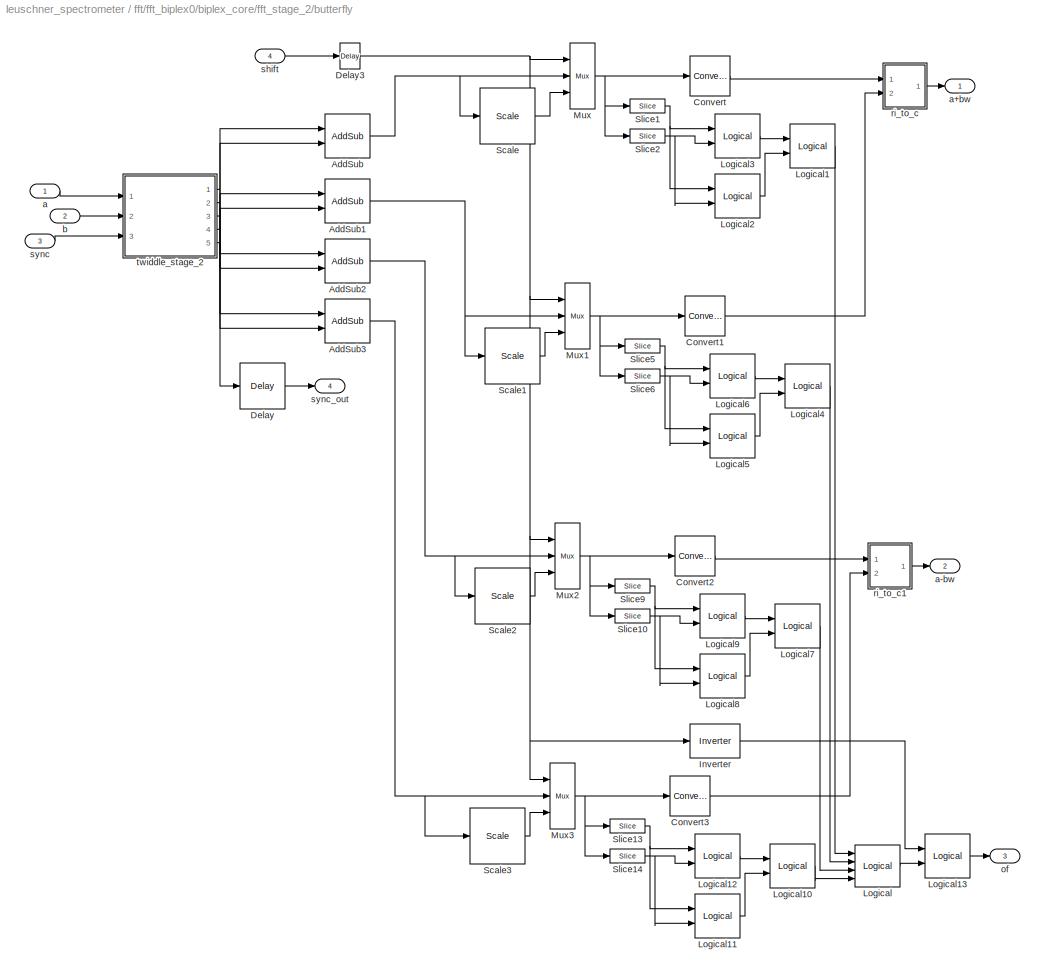
BLOCK [SubSystem] fft/fft_biplex0/biplex_core/fft_stage_2/butterfly
  MinAlgLoopOccurrences = off
  Ports = [4, 4]
  RTWSystemCode = Auto
  TreatAsAtomicUnit = off
BLOCK [Reference] fft/fft_biplex0/biplex_core/fft_stage_2/butterfly/AddSub  REF=xbsIndex_r3/AddSub
  Ports = [2, 1]
  SourceBlock = xbsIndex_r3/AddSub
  SourceType = Xilinx Adder/Subtractor
  arith_type = Unsigned
  bin_pt = 2
  dbl_ovrd = off
  en = off
  explicit_period = off
  gen_core = on
  latency = add_latency
  mode = Addition
  n_bits = 8
  overflow = Wrap
  period = 1
  pipeline = on
  precision = Full
  quantization = Truncate
  show_param = on
  use_carryin = off
  use_carryout = off
  use_core = on
  use_rpm = on
  xl_area = [0, 0, 0, 0, 0, 0, 0]
  xl_use_area = off
BLOCK [Reference] fft/fft_biplex0/biplex_core/fft_stage_2/butterfly/AddSub1  REF=xbsIndex_r3/AddSub
  Ports = [2, 1]
  SourceBlock = xbsIndex_r3/AddSub
  SourceType = Xilinx Adder/Subtractor
  arith_type = Unsigned
  bin_pt = 2
  dbl_ovrd = off
  en = off
  explicit_period = off
  gen_core = on
  latency = add_latency
  mode = Addition
  n_bits = 8
  overflow = Wrap
  period = 1
  pipeline = on
  precision = Full
  quantization = Truncate
  show_param = on
  use_carryin = off
  use_carryout = off
  use_core = on
  use_rpm = on
  xl_area = [0, 0, 0, 0, 0, 0, 0]
  xl_use_area = off
BLOCK [Reference] fft/fft_biplex0/biplex_core/fft_stage_2/butterfly/AddSub2  REF=xbsIndex_r3/AddSub
  Ports = [2, 1]
  SourceBlock = xbsIndex_r3/AddSub
  SourceType = Xilinx Adder/Subtractor
  arith_type = Unsigned
  bin_pt = 2
  dbl_ovrd = off
  en = off
  explicit_period = off
  gen_core = on
  latency = add_latency
  mode = Subtraction
  n_bits = 8
  overflow = Wrap
  period = 1
  pipeline = on
  precision = Full
  quantization = Truncate
  show_param = on
  use_carryin = off
  use_carryout = off
  use_core = on
  use_rpm = on
  xl_area = [0, 0, 0, 0, 0, 0, 0]
  xl_use_area = off
BLOCK [Reference] fft/fft_biplex0/biplex_core/fft_stage_2/butterfly/AddSub3  REF=xbsIndex_r3/AddSub
  Ports = [2, 1]
  SourceBlock = xbsIndex_r3/AddSub
  SourceType = Xilinx Adder/Subtractor
  arith_type = Unsigned
  bin_pt = 2
  dbl_ovrd = off
  en = off
  explicit_period = off
  gen_core = on
  latency = add_latency
  mode = Subtraction
  n_bits = 8
  overflow = Wrap
  period = 1
  pipeline = on
  precision = Full
  quantization = Truncate
  show_param = on
  use_carryin = off
  use_carryout = off
  use_core = on
  use_rpm = on
  xl_area = [0, 0, 0, 0, 0, 0, 0]
  xl_use_area = off
BLOCK [Reference] fft/fft_biplex0/biplex_core/fft_stage_2/butterfly/Convert  REF=xbsIndex_r3/Convert
  Ports = [1, 1]
  SourceBlock = xbsIndex_r3/Convert
  SourceType = Xilinx Converter Block
  arith_type = Signed  (2's comp)
  bin_pt = BitWidth-1
  dbl_ovrd = off
  explicit_period = off
  inserted_by_tool = off
  latency = add_latency
  n_bits = BitWidth
  overflow = Wrap
  period = 1
  pipeline = off
  quantization = Truncate
  show_param = off
  xl_area = [0, 0, 0, 0, 0, 0, 0]
  xl_use_area = off
BLOCK [Reference] fft/fft_biplex0/biplex_core/fft_stage_2/butterfly/Convert1  REF=xbsIndex_r3/Convert
  Ports = [1, 1]
  SourceBlock = xbsIndex_r3/Convert
  SourceType = Xilinx Converter Block
  arith_type = Signed  (2's comp)
  bin_pt = BitWidth-1
  dbl_ovrd = off
  explicit_period = off
  inserted_by_tool = off
  latency = add_latency
  n_bits = BitWidth
  overflow = Wrap
  period = 1
  pipeline = off
  quantization = Truncate
  show_param = off
  xl_area = [0, 0, 0, 0, 0, 0, 0]
  xl_use_area = off
BLOCK [Reference] fft/fft_biplex0/biplex_core/fft_stage_2/butterfly/Convert2  REF=xbsIndex_r3/Convert
  Ports = [1, 1]
  SourceBlock = xbsIndex_r3/Convert
  SourceType = Xilinx Converter Block
  arith_type = Signed  (2's comp)
  bin_pt = BitWidth-1
  dbl_ovrd = off
  explicit_period = off
  inserted_by_tool = off
  latency = add_latency
  n_bits = BitWidth
  overflow = Wrap
  period = 1
  pipeline = off
  quantization = Truncate
  show_param = off
  xl_area = [0, 0, 0, 0, 0, 0, 0]
  xl_use_area = off
BLOCK [Reference] fft/fft_biplex0/biplex_core/fft_stage_2/butterfly/Convert3  REF=xbsIndex_r3/Convert
  Ports = [1, 1]
  SourceBlock = xbsIndex_r3/Convert
  SourceType = Xilinx Converter Block
  arith_type = Signed  (2's comp)
  bin_pt = BitWidth-1
  dbl_ovrd = off
  explicit_period = off
  inserted_by_tool = off
  latency = add_latency
  n_bits = BitWidth
  overflow = Wrap
  period = 1
  pipeline = off
  quantization = Truncate
  show_param = off
  xl_area = [0, 0, 0, 0, 0, 0, 0]
  xl_use_area = off
BLOCK [Reference] fft/fft_biplex0/biplex_core/fft_stage_2/butterfly/Delay  REF=xbsIndex_r3/Delay
  Ports = [1, 1]
  SourceBlock = xbsIndex_r3/Delay
  SourceType = Xilinx Delay Block
  accept_only_valid = off
  dbl_ovrd = off
  en = off
  explicit_period = off
  init_zero = on
  latency = 2 * add_latency + 1
  period = 1
  reg_retiming = off
  show_param = off
  xl_area = [0, 0, 0, 0, 0, 0, 0]
  xl_use_area = off
BLOCK [Reference] fft/fft_biplex0/biplex_core/fft_stage_2/butterfly/Delay3  REF=xbsIndex_r3/Delay
  Ports = [1, 1]
  SourceBlock = xbsIndex_r3/Delay
  SourceType = Xilinx Delay Block
  accept_only_valid = off
  dbl_ovrd = off
  en = off
  explicit_period = off
  init_zero = on
  latency = 1
  period = 1
  reg_retiming = off
  show_param = off
  xl_area = [0, 0, 0, 0, 0, 0, 0]
  xl_use_area = off
BLOCK [Reference] fft/fft_biplex0/biplex_core/fft_stage_2/butterfly/Inverter  REF=xbsIndex_r3/Inverter
  Ports = [1, 1]
  SourceBlock = xbsIndex_r3/Inverter
  SourceType = Xilinx Inverter
  dbl_ovrd = off
  en = off
  explicit_period = off
  latency = 0
  period = 1
  show_param = off
  xl_area = [0, 0, 0, 0, 0, 0, 0]
  xl_use_area = off
BLOCK [Reference] fft/fft_biplex0/biplex_core/fft_stage_2/butterfly/Logical  REF=xbsIndex_r3/Logical
  Ports = [4, 1]
  SourceBlock = xbsIndex_r3/Logical
  SourceType = Xilinx Logical Block
  align_bp = on
  arith_type = Unsigned
  bin_pt = 2
  dbl_ovrd = off
  en = off
  explicit_period = off
  inputs = 4
  latency = 1
  logical_function = OR
  n_bits = 8
  period = 1
  precision = Full
  show_param = off
  xl_area = [0, 0, 0, 0, 0, 0, 0]
  xl_use_area = off
BLOCK [Reference] fft/fft_biplex0/biplex_core/fft_stage_2/butterfly/Logical1  REF=xbsIndex_r3/Logical
  Ports = [2, 1]
  SourceBlock = xbsIndex_r3/Logical
  SourceType = Xilinx Logical Block
  align_bp = off
  arith_type = Unsigned
  bin_pt = 2
  dbl_ovrd = off
  en = off
  explicit_period = off
  inputs = 2
  latency = 1
  logical_function = OR
  n_bits = 8
  period = 1
  precision = Full
  show_param = off
  xl_area = [0, 0, 0, 0, 0, 0, 0]
  xl_use_area = off
BLOCK [Reference] fft/fft_biplex0/biplex_core/fft_stage_2/butterfly/Logical10  REF=xbsIndex_r3/Logical
  Ports = [2, 1]
  SourceBlock = xbsIndex_r3/Logical
  SourceType = Xilinx Logical Block
  align_bp = off
  arith_type = Unsigned
  bin_pt = 2
  dbl_ovrd = off
  en = off
  explicit_period = off
  inputs = 2
  latency = 1
  logical_function = OR
  n_bits = 8
  period = 1
  precision = Full
  show_param = off
  xl_area = [0, 0, 0, 0, 0, 0, 0]
  xl_use_area = off
BLOCK [Reference] fft/fft_biplex0/biplex_core/fft_stage_2/butterfly/Logical11  REF=xbsIndex_r3/Logical
  Ports = [2, 1]
  SourceBlock = xbsIndex_r3/Logical
  SourceType = Xilinx Logical Block
  align_bp = off
  arith_type = Unsigned
  bin_pt = 2
  dbl_ovrd = off
  en = off
  explicit_period = off
  inputs = 2
  latency = 1
  logical_function = NOR
  n_bits = 8
  period = 1
  precision = Full
  show_param = off
  xl_area = [0, 0, 0, 0, 0, 0, 0]
  xl_use_area = off
BLOCK [Reference] fft/fft_biplex0/biplex_core/fft_stage_2/butterfly/Logical12  REF=xbsIndex_r3/Logical
  Ports = [2, 1]
  SourceBlock = xbsIndex_r3/Logical
  SourceType = Xilinx Logical Block
  align_bp = off
  arith_type = Unsigned
  bin_pt = 2
  dbl_ovrd = off
  en = off
  explicit_period = off
  inputs = 2
  latency = 1
  logical_function = AND
  n_bits = 8
  period = 1
  precision = Full
  show_param = off
  xl_area = [0, 0, 0, 0, 0, 0, 0]
  xl_use_area = off
BLOCK [Reference] fft/fft_biplex0/biplex_core/fft_stage_2/butterfly/Logical13  REF=xbsIndex_r3/Logical
  Ports = [2, 1]
  SourceBlock = xbsIndex_r3/Logical
  SourceType = Xilinx Logical Block
  align_bp = off
  arith_type = Unsigned
  bin_pt = 2
  dbl_ovrd = off
  en = off
  explicit_period = off
  inputs = 2
  latency = 1
  logical_function = AND
  n_bits = 8
  period = 1
  precision = Full
  show_param = off
  xl_area = [0, 0, 0, 0, 0, 0, 0]
  xl_use_area = off
BLOCK [Reference] fft/fft_biplex0/biplex_core/fft_stage_2/butterfly/Logical2  REF=xbsIndex_r3/Logical
  Ports = [2, 1]
  SourceBlock = xbsIndex_r3/Logical
  SourceType = Xilinx Logical Block
  align_bp = off
  arith_type = Unsigned
  bin_pt = 2
  dbl_ovrd = off
  en = off
  explicit_period = off
  inputs = 2
  latency = 1
  logical_function = NOR
  n_bits = 8
  period = 1
  precision = Full
  show_param = off
  xl_area = [0, 0, 0, 0, 0, 0, 0]
  xl_use_area = off
BLOCK [Reference] fft/fft_biplex0/biplex_core/fft_stage_2/butterfly/Logical3  REF=xbsIndex_r3/Logical
  Ports = [2, 1]
  SourceBlock = xbsIndex_r3/Logical
  SourceType = Xilinx Logical Block
  align_bp = off
  arith_type = Unsigned
  bin_pt = 2
  dbl_ovrd = off
  en = off
  explicit_period = off
  inputs = 2
  latency = 1
  logical_function = AND
  n_bits = 8
  period = 1
  precision = Full
  show_param = off
  xl_area = [0, 0, 0, 0, 0, 0, 0]
  xl_use_area = off
BLOCK [Reference] fft/fft_biplex0/biplex_core/fft_stage_2/butterfly/Logical4  REF=xbsIndex_r3/Logical
  Ports = [2, 1]
  SourceBlock = xbsIndex_r3/Logical
  SourceType = Xilinx Logical Block
  align_bp = off
  arith_type = Unsigned
  bin_pt = 2
  dbl_ovrd = off
  en = off
  explicit_period = off
  inputs = 2
  latency = 1
  logical_function = OR
  n_bits = 8
  period = 1
  precision = Full
  show_param = off
  xl_area = [0, 0, 0, 0, 0, 0, 0]
  xl_use_area = off
BLOCK [Reference] fft/fft_biplex0/biplex_core/fft_stage_2/butterfly/Logical5  REF=xbsIndex_r3/Logical
  Ports = [2, 1]
  SourceBlock = xbsIndex_r3/Logical
  SourceType = Xilinx Logical Block
  align_bp = off
  arith_type = Unsigned
  bin_pt = 2
  dbl_ovrd = off
  en = off
  explicit_period = off
  inputs = 2
  latency = 1
  logical_function = NOR
  n_bits = 8
  period = 1
  precision = Full
  show_param = off
  xl_area = [0, 0, 0, 0, 0, 0, 0]
  xl_use_area = off
BLOCK [Reference] fft/fft_biplex0/biplex_core/fft_stage_2/butterfly/Logical6  REF=xbsIndex_r3/Logical
  Ports = [2, 1]
  SourceBlock = xbsIndex_r3/Logical
  SourceType = Xilinx Logical Block
  align_bp = off
  arith_type = Unsigned
  bin_pt = 2
  dbl_ovrd = off
  en = off
  explicit_period = off
  inputs = 2
  latency = 1
  logical_function = AND
  n_bits = 8
  period = 1
  precision = Full
  show_param = off
  xl_area = [0, 0, 0, 0, 0, 0, 0]
  xl_use_area = off
BLOCK [Reference] fft/fft_biplex0/biplex_core/fft_stage_2/butterfly/Logical7  REF=xbsIndex_r3/Logical
  Ports = [2, 1]
  SourceBlock = xbsIndex_r3/Logical
  SourceType = Xilinx Logical Block
  align_bp = off
  arith_type = Unsigned
  bin_pt = 2
  dbl_ovrd = off
  en = off
  explicit_period = off
  inputs = 2
  latency = 1
  logical_function = OR
  n_bits = 8
  period = 1
  precision = Full
  show_param = off
  xl_area = [0, 0, 0, 0, 0, 0, 0]
  xl_use_area = off
BLOCK [Reference] fft/fft_biplex0/biplex_core/fft_stage_2/butterfly/Logical8  REF=xbsIndex_r3/Logical
  Ports = [2, 1]
  SourceBlock = xbsIndex_r3/Logical
  SourceType = Xilinx Logical Block
  align_bp = off
  arith_type = Unsigned
  bin_pt = 2
  dbl_ovrd = off
  en = off
  explicit_period = off
  inputs = 2
  latency = 1
  logical_function = NOR
  n_bits = 8
  period = 1
  precision = Full
  show_param = off
  xl_area = [0, 0, 0, 0, 0, 0, 0]
  xl_use_area = off
BLOCK [Reference] fft/fft_biplex0/biplex_core/fft_stage_2/butterfly/Logical9  REF=xbsIndex_r3/Logical
  Ports = [2, 1]
  SourceBlock = xbsIndex_r3/Logical
  SourceType = Xilinx Logical Block
  align_bp = off
  arith_type = Unsigned
  bin_pt = 2
  dbl_ovrd = off
  en = off
  explicit_period = off
  inputs = 2
  latency = 1
  logical_function = AND
  n_bits = 8
  period = 1
  precision = Full
  show_param = off
  xl_area = [0, 0, 0, 0, 0, 0, 0]
  xl_use_area = off
BLOCK [Reference] fft/fft_biplex0/biplex_core/fft_stage_2/butterfly/Mux  REF=xbsIndex_r3/Mux
  Ports = [3, 1]
  SourceBlock = xbsIndex_r3/Mux
  SourceType = Xilinx Multiplexer Block
  arith_type = Signed  (2's comp)
  bin_pt = 2
  dbl_ovrd = off
  en = off
  explicit_period = off
  gen_core = off
  inputs = 2
  latency = 1
  mux_type = off
  n_bits = 8
  overflow = Wrap
  period = 1
  precision = Full
  quantization = Truncate
  show_param = off
  use_rpm = off
  xl_area = [0, 0, 0, 0, 0, 0, 0]
  xl_use_area = off
BLOCK [Reference] fft/fft_biplex0/biplex_core/fft_stage_2/butterfly/Mux1  REF=xbsIndex_r3/Mux
  Ports = [3, 1]
  SourceBlock = xbsIndex_r3/Mux
  SourceType = Xilinx Multiplexer Block
  arith_type = Signed  (2's comp)
  bin_pt = 2
  dbl_ovrd = off
  en = off
  explicit_period = off
  gen_core = off
  inputs = 2
  latency = 1
  mux_type = off
  n_bits = 8
  overflow = Wrap
  period = 1
  precision = Full
  quantization = Truncate
  show_param = off
  use_rpm = off
  xl_area = [0, 0, 0, 0, 0, 0, 0]
  xl_use_area = off
BLOCK [Reference] fft/fft_biplex0/biplex_core/fft_stage_2/butterfly/Mux2  REF=xbsIndex_r3/Mux
  Ports = [3, 1]
  SourceBlock = xbsIndex_r3/Mux
  SourceType = Xilinx Multiplexer Block
  arith_type = Signed  (2's comp)
  bin_pt = 2
  dbl_ovrd = off
  en = off
  explicit_period = off
  gen_core = off
  inputs = 2
  latency = 1
  mux_type = off
  n_bits = 8
  overflow = Wrap
  period = 1
  precision = Full
  quantization = Truncate
  show_param = off
  use_rpm = off
  xl_area = [0, 0, 0, 0, 0, 0, 0]
  xl_use_area = off
BLOCK [Reference] fft/fft_biplex0/biplex_core/fft_stage_2/butterfly/Mux3  REF=xbsIndex_r3/Mux
  Ports = [3, 1]
  SourceBlock = xbsIndex_r3/Mux
  SourceType = Xilinx Multiplexer Block
  arith_type = Signed  (2's comp)
  bin_pt = 2
  dbl_ovrd = off
  en = off
  explicit_period = off
  gen_core = off
  inputs = 2
  latency = 1
  mux_type = off
  n_bits = 8
  overflow = Wrap
  period = 1
  precision = Full
  quantization = Truncate
  show_param = off
  use_rpm = off
  xl_area = [0, 0, 0, 0, 0, 0, 0]
  xl_use_area = off
BLOCK [Reference] fft/fft_biplex0/biplex_core/fft_stage_2/butterfly/Scale  REF=xbsIndex_r3/Scale
  Ports = [1, 1]
  SourceBlock = xbsIndex_r3/Scale
  SourceType = Xilinx Scaling Block
  dbl_ovrd = off
  explicit_period = off
  period = 1
  scale_factor = -1
BLOCK [Reference] fft/fft_biplex0/biplex_core/fft_stage_2/butterfly/Scale1  REF=xbsIndex_r3/Scale
  Ports = [1, 1]
  SourceBlock = xbsIndex_r3/Scale
  SourceType = Xilinx Scaling Block
  dbl_ovrd = off
  explicit_period = off
  period = 1
  scale_factor = -1
BLOCK [Reference] fft/fft_biplex0/biplex_core/fft_stage_2/butterfly/Scale2  REF=xbsIndex_r3/Scale
  Ports = [1, 1]
  SourceBlock = xbsIndex_r3/Scale
  SourceType = Xilinx Scaling Block
  dbl_ovrd = off
  explicit_period = off
  period = 1
  scale_factor = -1
BLOCK [Reference] fft/fft_biplex0/biplex_core/fft_stage_2/butterfly/Scale3  REF=xbsIndex_r3/Scale
  Ports = [1, 1]
  SourceBlock = xbsIndex_r3/Scale
  SourceType = Xilinx Scaling Block
  dbl_ovrd = off
  explicit_period = off
  period = 1
  scale_factor = -1
BLOCK [Reference] fft/fft_biplex0/biplex_core/fft_stage_2/butterfly/Slice1  REF=xbsIndex_r3/Slice
  Ports = [1, 1]
  SourceBlock = xbsIndex_r3/Slice
  SourceType = Xilinx Slice Block
  base0 = LSB of Input
  base1 = MSB of Input
  bit0 = 0
  bit1 = 0
  boolean_output = on
  dbl_ovrd = off
  explicit_period = off
  mode = Upper Bit Location + Width
  nbits = 1
  period = 1
BLOCK [Reference] fft/fft_biplex0/biplex_core/fft_stage_2/butterfly/Slice10  REF=xbsIndex_r3/Slice
  Ports = [1, 1]
  SourceBlock = xbsIndex_r3/Slice
  SourceType = Xilinx Slice Block
  base0 = LSB of Input
  base1 = MSB of Input
  bit0 = 0
  bit1 = -1
  boolean_output = on
  dbl_ovrd = off
  explicit_period = off
  mode = Upper Bit Location + Width
  nbits = 1
  period = 1
BLOCK [Reference] fft/fft_biplex0/biplex_core/fft_stage_2/butterfly/Slice13  REF=xbsIndex_r3/Slice
  Ports = [1, 1]
  SourceBlock = xbsIndex_r3/Slice
  SourceType = Xilinx Slice Block
  base0 = LSB of Input
  base1 = MSB of Input
  bit0 = 0
  bit1 = 0
  boolean_output = on
  dbl_ovrd = off
  explicit_period = off
  mode = Upper Bit Location + Width
  nbits = 1
  period = 1
BLOCK [Reference] fft/fft_biplex0/biplex_core/fft_stage_2/butterfly/Slice14  REF=xbsIndex_r3/Slice
  Ports = [1, 1]
  SourceBlock = xbsIndex_r3/Slice
  SourceType = Xilinx Slice Block
  base0 = LSB of Input
  base1 = MSB of Input
  bit0 = 0
  bit1 = -1
  boolean_output = on
  dbl_ovrd = off
  explicit_period = off
  mode = Upper Bit Location + Width
  nbits = 1
  period = 1
BLOCK [Reference] fft/fft_biplex0/biplex_core/fft_stage_2/butterfly/Slice2  REF=xbsIndex_r3/Slice
  Ports = [1, 1]
  SourceBlock = xbsIndex_r3/Slice
  SourceType = Xilinx Slice Block
  base0 = LSB of Input
  base1 = MSB of Input
  bit0 = 0
  bit1 = -1
  boolean_output = on
  dbl_ovrd = off
  explicit_period = off
  mode = Upper Bit Location + Width
  nbits = 1
  period = 1
BLOCK [Reference] fft/fft_biplex0/biplex_core/fft_stage_2/butterfly/Slice5  REF=xbsIndex_r3/Slice
  Ports = [1, 1]
  SourceBlock = xbsIndex_r3/Slice
  SourceType = Xilinx Slice Block
  base0 = LSB of Input
  base1 = MSB of Input
  bit0 = 0
  bit1 = 0
  boolean_output = on
  dbl_ovrd = off
  explicit_period = off
  mode = Upper Bit Location + Width
  nbits = 1
  period = 1
BLOCK [Reference] fft/fft_biplex0/biplex_core/fft_stage_2/butterfly/Slice6  REF=xbsIndex_r3/Slice
  Ports = [1, 1]
  SourceBlock = xbsIndex_r3/Slice
  SourceType = Xilinx Slice Block
  base0 = LSB of Input
  base1 = MSB of Input
  bit0 = 0
  bit1 = -1
  boolean_output = on
  dbl_ovrd = off
  explicit_period = off
  mode = Upper Bit Location + Width
  nbits = 1
  period = 1
BLOCK [Reference] fft/fft_biplex0/biplex_core/fft_stage_2/butterfly/Slice9  REF=xbsIndex_r3/Slice
  Ports = [1, 1]
  SourceBlock = xbsIndex_r3/Slice
  SourceType = Xilinx Slice Block
  base0 = LSB of Input
  base1 = MSB of Input
  bit0 = 0
  bit1 = 0
  boolean_output = on
  dbl_ovrd = off
  explicit_period = off
  mode = Upper Bit Location + Width
  nbits = 1
  period = 1
BLOCK [Inport] fft/fft_biplex0/biplex_core/fft_stage_2/butterfly/a
  IconDisplay = Port number
  LatchInput = off
  Port = 1
BLOCK [Outport] fft/fft_biplex0/biplex_core/fft_stage_2/butterfly/a+bw
  BusOutputAsStruct = off
  IconDisplay = Port number
BLOCK [Outport] fft/fft_biplex0/biplex_core/fft_stage_2/butterfly/a-bw
  BusOutputAsStruct = off
  IconDisplay = Port number
  Port = 2
BLOCK [Inport] fft/fft_biplex0/biplex_core/fft_stage_2/butterfly/b
  IconDisplay = Port number
  LatchInput = off
  Port = 2
BLOCK [Outport] fft/fft_biplex0/biplex_core/fft_stage_2/butterfly/of
  BusOutputAsStruct = off
  IconDisplay = Port number
  Port = 3
BLOCK [SubSystem] fft/fft_biplex0/biplex_core/fft_stage_2/butterfly/ri_to_c
  MaskEnableString = off
  MaskIconFrame = on
  MaskIconOpaque = on
  MaskIconRotate = none
  MaskIconUnits = autoscale
  MaskPromptString = Mask Parameter 1:
  MaskSelfModifiable = on
  MaskStyleString = edit
  MaskToolTipString = on
  MaskTunableValueString = on
  MaskValueString = 0
  MaskVariables = test=@1;
  MaskVisibilityString = off
  MinAlgLoopOccurrences = off
  Ports = [2, 1]
  RTWSystemCode = Auto
  TreatAsAtomicUnit = off
BLOCK [Reference] fft/fft_biplex0/biplex_core/fft_stage_2/butterfly/ri_to_c/Concat  REF=xbsIndex_r3/Concat
  Ports = [2, 1]
  SourceBlock = xbsIndex_r3/Concat
  SourceType = Xilinx Bus Concatenator
  dbl_ovrd = off
  explicit_period = off
  num_inputs = 2
  period = 1
BLOCK [Reference] fft/fft_biplex0/biplex_core/fft_stage_2/butterfly/ri_to_c/Reinterpret  REF=xbsIndex_r3/Reinterpret
  Ports = [1, 1]
  SourceBlock = xbsIndex_r3/Reinterpret
  SourceType = Xilinx Type Reinterpreting Block
  arith_type = Unsigned
  bin_pt = 0
  force_arith_type = on
  force_bin_pt = on
  force_valid = on
BLOCK [Reference] fft/fft_biplex0/biplex_core/fft_stage_2/butterfly/ri_to_c/Reinterpret1  REF=xbsIndex_r3/Reinterpret
  Ports = [1, 1]
  SourceBlock = xbsIndex_r3/Reinterpret
  SourceType = Xilinx Type Reinterpreting Block
  arith_type = Unsigned
  bin_pt = 0
  force_arith_type = on
  force_bin_pt = on
  force_valid = on
BLOCK [Outport] fft/fft_biplex0/biplex_core/fft_stage_2/butterfly/ri_to_c/c
  BusOutputAsStruct = off
  IconDisplay = Port number
BLOCK [Inport] fft/fft_biplex0/biplex_core/fft_stage_2/butterfly/ri_to_c/im
  IconDisplay = Port number
  LatchInput = off
  Port = 2
BLOCK [Inport] fft/fft_biplex0/biplex_core/fft_stage_2/butterfly/ri_to_c/re
  IconDisplay = Port number
  LatchInput = off
  Port = 1
BLOCK [SubSystem] fft/fft_biplex0/biplex_core/fft_stage_2/butterfly/ri_to_c1
  MaskEnableString = off
  MaskIconFrame = on
  MaskIconOpaque = on
  MaskIconRotate = none
  MaskIconUnits = autoscale
  MaskPromptString = Mask Parameter 1:
  MaskSelfModifiable = on
  MaskStyleString = edit
  MaskToolTipString = on
  MaskTunableValueString = on
  MaskValueString = 0
  MaskVariables = test=@1;
  MaskVisibilityString = off
  MinAlgLoopOccurrences = off
  Ports = [2, 1]
  RTWSystemCode = Auto
  TreatAsAtomicUnit = off
BLOCK [Reference] fft/fft_biplex0/biplex_core/fft_stage_2/butterfly/ri_to_c1/Concat  REF=xbsIndex_r3/Concat
  Ports = [2, 1]
  SourceBlock = xbsIndex_r3/Concat
  SourceType = Xilinx Bus Concatenator
  dbl_ovrd = off
  explicit_period = off
  num_inputs = 2
  period = 1
BLOCK [Reference] fft/fft_biplex0/biplex_core/fft_stage_2/butterfly/ri_to_c1/Reinterpret  REF=xbsIndex_r3/Reinterpret
  Ports = [1, 1]
  SourceBlock = xbsIndex_r3/Reinterpret
  SourceType = Xilinx Type Reinterpreting Block
  arith_type = Unsigned
  bin_pt = 0
  force_arith_type = on
  force_bin_pt = on
  force_valid = on
BLOCK [Reference] fft/fft_biplex0/biplex_core/fft_stage_2/butterfly/ri_to_c1/Reinterpret1  REF=xbsIndex_r3/Reinterpret
  Ports = [1, 1]
  SourceBlock = xbsIndex_r3/Reinterpret
  SourceType = Xilinx Type Reinterpreting Block
  arith_type = Unsigned
  bin_pt = 0
  force_arith_type = on
  force_bin_pt = on
  force_valid = on
BLOCK [Outport] fft/fft_biplex0/biplex_core/fft_stage_2/butterfly/ri_to_c1/c
  BusOutputAsStruct = off
  IconDisplay = Port number
BLOCK [Inport] fft/fft_biplex0/biplex_core/fft_stage_2/butterfly/ri_to_c1/im
  IconDisplay = Port number
  LatchInput = off
  Port = 2
BLOCK [Inport] fft/fft_biplex0/biplex_core/fft_stage_2/butterfly/ri_to_c1/re
  IconDisplay = Port number
  LatchInput = off
  Port = 1
BLOCK [Inport] fft/fft_biplex0/biplex_core/fft_stage_2/butterfly/shift
  IconDisplay = Port number
  LatchInput = off
  Port = 4
BLOCK [Inport] fft/fft_biplex0/biplex_core/fft_stage_2/butterfly/sync
  IconDisplay = Port number
  LatchInput = off
  Port = 3
BLOCK [Outport] fft/fft_biplex0/biplex_core/fft_stage_2/butterfly/sync_out
  BusOutputAsStruct = off
  IconDisplay = Port number
  Port = 4
BLOCK [SubSystem] fft/fft_biplex0/biplex_core/fft_stage_2/butterfly/twiddle_stage_2
  MinAlgLoopOccurrences = off
  Ports = [3, 5]
  RTWSystemCode = Auto
  TreatAsAtomicUnit = off
BLOCK [Reference] fft/fft_biplex0/biplex_core/fft_stage_2/butterfly/twiddle_stage_2/Counter  REF=xbsIndex_r3/Counter
  Ports = [1, 1]
  SourceBlock = xbsIndex_r3/Counter
  SourceType = Xilinx Counter Block
  arith_type = Unsigned
  bin_pt = 0
  cnt_by_val = 1
  cnt_to = Inf
  cnt_type = Free Running
  dbl_ovrd = off
  en = off
  explicit_period = off
  gen_core = off
  load_pin = off
  n_bits = FFTSize - 1
  operation = Up
  period = 1
  rst = on
  show_param = off
  start_count = 0
  use_rpm = on
  xl_area = [0, 0, 0, 0, 0, 0, 0]
  xl_use_area = off
BLOCK [Reference] fft/fft_biplex0/biplex_core/fft_stage_2/butterfly/twiddle_stage_2/Delay  REF=xbsIndex_r3/Delay
  Ports = [1, 1]
  SourceBlock = xbsIndex_r3/Delay
  SourceType = Xilinx Delay Block
  accept_only_valid = off
  dbl_ovrd = off
  en = off
  explicit_period = off
  init_zero = on
  latency = 1
  period = 1
  reg_retiming = off
  show_param = off
  xl_area = [0, 0, 0, 0, 0, 0, 0]
  xl_use_area = off
BLOCK [Reference] fft/fft_biplex0/biplex_core/fft_stage_2/butterfly/twiddle_stage_2/Delay2  REF=xbsIndex_r3/Delay
  Ports = [1, 1]
  SourceBlock = xbsIndex_r3/Delay
  SourceType = Xilinx Delay Block
  accept_only_valid = off
  dbl_ovrd = off
  en = off
  explicit_period = off
  init_zero = on
  latency = 1
  period = 1
  reg_retiming = off
  show_param = off
  xl_area = [0, 0, 0, 0, 0, 0, 0]
  xl_use_area = off
BLOCK [Reference] fft/fft_biplex0/biplex_core/fft_stage_2/butterfly/twiddle_stage_2/Mux  REF=xbsIndex_r3/Mux
  Ports = [3, 1]
  SourceBlock = xbsIndex_r3/Mux
  SourceType = Xilinx Multiplexer Block
  arith_type = Signed  (2's comp)
  bin_pt = 2
  dbl_ovrd = off
  en = off
  explicit_period = off
  gen_core = off
  inputs = 2
  latency = 1
  mux_type = off
  n_bits = 8
  overflow = Wrap
  period = 1
  precision = Full
  quantization = Truncate
  show_param = off
  use_rpm = off
  xl_area = [0, 0, 0, 0, 0, 0, 0]
  xl_use_area = off
BLOCK [Reference] fft/fft_biplex0/biplex_core/fft_stage_2/butterfly/twiddle_stage_2/Mux1  REF=xbsIndex_r3/Mux
  Ports = [3, 1]
  SourceBlock = xbsIndex_r3/Mux
  SourceType = Xilinx Multiplexer Block
  arith_type = Signed  (2's comp)
  bin_pt = 2
  dbl_ovrd = off
  en = off
  explicit_period = off
  gen_core = off
  inputs = 2
  latency = 1
  mux_type = off
  n_bits = 8
  overflow = Wrap
  period = 1
  precision = Full
  quantization = Truncate
  show_param = off
  use_rpm = off
  xl_area = [0, 0, 0, 0, 0, 0, 0]
  xl_use_area = off
BLOCK [Reference] fft/fft_biplex0/biplex_core/fft_stage_2/butterfly/twiddle_stage_2/Negate1  REF=xbsIndex_r3/Negate
  Ports = [1, 1]
  SourceBlock = xbsIndex_r3/Negate
  SourceType = Xilinx Negate Block
  arith_type = Signed  (2's comp)
  bin_pt = BitWidth-1
  dbl_ovrd = off
  en = off
  explicit_period = off
  gen_core = off
  latency = 0
  n_bits = BitWidth
  overflow = Wrap
  period = 1
  precision = User Defined
  quantization = Truncate
  show_param = off
  use_core = on
  use_rpm = on
  xl_area = [0, 0, 0, 0, 0, 0, 0]
  xl_use_area = off
BLOCK [Reference] fft/fft_biplex0/biplex_core/fft_stage_2/butterfly/twiddle_stage_2/Slice1  REF=xbsIndex_r3/Slice
  Ports = [1, 1]
  SourceBlock = xbsIndex_r3/Slice
  SourceType = Xilinx Slice Block
  base0 = LSB of Input
  base1 = MSB of Input
  bit0 = 0
  bit1 = 0
  boolean_output = off
  dbl_ovrd = off
  explicit_period = off
  mode = Upper Bit Location + Width
  nbits = 1
  period = 1
BLOCK [Inport] fft/fft_biplex0/biplex_core/fft_stage_2/butterfly/twiddle_stage_2/a
  IconDisplay = Port number
  LatchInput = off
  Port = 1
BLOCK [Outport] fft/fft_biplex0/biplex_core/fft_stage_2/butterfly/twiddle_stage_2/a_im
  BusOutputAsStruct = off
  IconDisplay = Port number
  Port = 2
BLOCK [Outport] fft/fft_biplex0/biplex_core/fft_stage_2/butterfly/twiddle_stage_2/a_re
  BusOutputAsStruct = off
  IconDisplay = Port number
BLOCK [Inport] fft/fft_biplex0/biplex_core/fft_stage_2/butterfly/twiddle_stage_2/b
  IconDisplay = Port number
  LatchInput = off
  Port = 2
BLOCK [Outport] fft/fft_biplex0/biplex_core/fft_stage_2/butterfly/twiddle_stage_2/bw_im
  BusOutputAsStruct = off
  IconDisplay = Port number
  Port = 4
BLOCK [Outport] fft/fft_biplex0/biplex_core/fft_stage_2/butterfly/twiddle_stage_2/bw_re
  BusOutputAsStruct = off
  IconDisplay = Port number
  Port = 3
BLOCK [SubSystem] fft/fft_biplex0/biplex_core/fft_stage_2/butterfly/twiddle_stage_2/c_to_ri
  MinAlgLoopOccurrences = off
  Ports = [1, 2]
  RTWSystemCode = Auto
  TreatAsAtomicUnit = off
BLOCK [Reference] fft/fft_biplex0/biplex_core/fft_stage_2/butterfly/twiddle_stage_2/c_to_ri/Reinterpret  REF=xbsIndex_r3/Reinterpret
  Ports = [1, 1]
  SourceBlock = xbsIndex_r3/Reinterpret
  SourceType = Xilinx Type Reinterpreting Block
  arith_type = Signed  (2's comp)
  bin_pt = BitWidth - 1
  force_arith_type = on
  force_bin_pt = on
  force_valid = on
BLOCK [Reference] fft/fft_biplex0/biplex_core/fft_stage_2/butterfly/twiddle_stage_2/c_to_ri/Reinterpret1  REF=xbsIndex_r3/Reinterpret
  Ports = [1, 1]
  SourceBlock = xbsIndex_r3/Reinterpret
  SourceType = Xilinx Type Reinterpreting Block
  arith_type = Signed  (2's comp)
  bin_pt = BitWidth - 1
  force_arith_type = on
  force_bin_pt = on
  force_valid = on
BLOCK [Reference] fft/fft_biplex0/biplex_core/fft_stage_2/butterfly/twiddle_stage_2/c_to_ri/Slice  REF=xbsIndex_r3/Slice
  Ports = [1, 1]
  SourceBlock = xbsIndex_r3/Slice
  SourceType = Xilinx Slice Block
  base0 = LSB of Input
  base1 = MSB of Input
  bit0 = 0
  bit1 = 0
  boolean_output = off
  dbl_ovrd = off
  explicit_period = off
  mode = Upper Bit Location + Width
  nbits = BitWidth
  period = 1
BLOCK [Reference] fft/fft_biplex0/biplex_core/fft_stage_2/butterfly/twiddle_stage_2/c_to_ri/Slice1  REF=xbsIndex_r3/Slice
  Ports = [1, 1]
  SourceBlock = xbsIndex_r3/Slice
  SourceType = Xilinx Slice Block
  base0 = LSB of Input
  base1 = MSB of Input
  bit0 = 0
  bit1 = 0
  boolean_output = off
  dbl_ovrd = off
  explicit_period = off
  mode = Lower Bit Location + Width
  nbits = BitWidth
  period = 1
BLOCK [Inport] fft/fft_biplex0/biplex_core/fft_stage_2/butterfly/twiddle_stage_2/c_to_ri/c
  IconDisplay = Port number
  LatchInput = off
  Port = 1
BLOCK [Outport] fft/fft_biplex0/biplex_core/fft_stage_2/butterfly/twiddle_stage_2/c_to_ri/im
  BusOutputAsStruct = off
  IconDisplay = Port number
  Port = 2
BLOCK [Outport] fft/fft_biplex0/biplex_core/fft_stage_2/butterfly/twiddle_stage_2/c_to_ri/re
  BusOutputAsStruct = off
  IconDisplay = Port number
BLOCK [SubSystem] fft/fft_biplex0/biplex_core/fft_stage_2/butterfly/twiddle_stage_2/c_to_ri1
  MinAlgLoopOccurrences = off
  Ports = [1, 2]
  RTWSystemCode = Auto
  TreatAsAtomicUnit = off
BLOCK [Reference] fft/fft_biplex0/biplex_core/fft_stage_2/butterfly/twiddle_stage_2/c_to_ri1/Reinterpret  REF=xbsIndex_r3/Reinterpret
  Ports = [1, 1]
  SourceBlock = xbsIndex_r3/Reinterpret
  SourceType = Xilinx Type Reinterpreting Block
  arith_type = Signed  (2's comp)
  bin_pt = BitWidth - 1
  force_arith_type = on
  force_bin_pt = on
  force_valid = on
BLOCK [Reference] fft/fft_biplex0/biplex_core/fft_stage_2/butterfly/twiddle_stage_2/c_to_ri1/Reinterpret1  REF=xbsIndex_r3/Reinterpret
  Ports = [1, 1]
  SourceBlock = xbsIndex_r3/Reinterpret
  SourceType = Xilinx Type Reinterpreting Block
  arith_type = Signed  (2's comp)
  bin_pt = BitWidth - 1
  force_arith_type = on
  force_bin_pt = on
  force_valid = on
BLOCK [Reference] fft/fft_biplex0/biplex_core/fft_stage_2/butterfly/twiddle_stage_2/c_to_ri1/Slice  REF=xbsIndex_r3/Slice
  Ports = [1, 1]
  SourceBlock = xbsIndex_r3/Slice
  SourceType = Xilinx Slice Block
  base0 = LSB of Input
  base1 = MSB of Input
  bit0 = 0
  bit1 = 0
  boolean_output = off
  dbl_ovrd = off
  explicit_period = off
  mode = Upper Bit Location + Width
  nbits = BitWidth
  period = 1
BLOCK [Reference] fft/fft_biplex0/biplex_core/fft_stage_2/butterfly/twiddle_stage_2/c_to_ri1/Slice1  REF=xbsIndex_r3/Slice
  Ports = [1, 1]
  SourceBlock = xbsIndex_r3/Slice
  SourceType = Xilinx Slice Block
  base0 = LSB of Input
  base1 = MSB of Input
  bit0 = 0
  bit1 = 0
  boolean_output = off
  dbl_ovrd = off
  explicit_period = off
  mode = Lower Bit Location + Width
  nbits = BitWidth
  period = 1
BLOCK [Inport] fft/fft_biplex0/biplex_core/fft_stage_2/butterfly/twiddle_stage_2/c_to_ri1/c
  IconDisplay = Port number
  LatchInput = off
  Port = 1
BLOCK [Outport] fft/fft_biplex0/biplex_core/fft_stage_2/butterfly/twiddle_stage_2/c_to_ri1/im
  BusOutputAsStruct = off
  IconDisplay = Port number
  Port = 2
BLOCK [Outport] fft/fft_biplex0/biplex_core/fft_stage_2/butterfly/twiddle_stage_2/c_to_ri1/re
  BusOutputAsStruct = off
  IconDisplay = Port number
BLOCK [Inport] fft/fft_biplex0/biplex_core/fft_stage_2/butterfly/twiddle_stage_2/sync
  IconDisplay = Port number
  LatchInput = off
  Port = 3
BLOCK [Outport] fft/fft_biplex0/biplex_core/fft_stage_2/butterfly/twiddle_stage_2/sync_out
  BusOutputAsStruct = off
  IconDisplay = Port number
  Port = 5
BLOCK [SubSystem] fft/fft_biplex0/biplex_core/fft_stage_2/delay_b
  AttributesFormatString = %<BlockChoice>
  BlockChoice = delay_bram
  MemberBlocks = delay_bram,delay_slr
  MinAlgLoopOccurrences = off
  Ports = [1, 1]
  RTWSystemCode = Auto
  TemplateBlock = delay_lib/delay
  TreatAsAtomicUnit = off
BLOCK [Inport] fft/fft_biplex0/biplex_core/fft_stage_2/delay_b/In1
  IconDisplay = Port number
  LatchInput = off
  Port = 1
BLOCK [Outport] fft/fft_biplex0/biplex_core/fft_stage_2/delay_b/Out1
  BusOutputAsStruct = off
  IconDisplay = Port number
BLOCK [Reference] fft/fft_biplex0/biplex_core/fft_stage_2/delay_b/delay_bram  REF=delay_lib/delay_bram  (lib defined in mdl_032c7a696b9b)
  DelayLen = 2^(FFTSize-FFTStage)
  Ports = [1, 1]
  ShowPortLabels = on
  SourceBlock = delay_lib/delay_bram
  SourceType = delay_bram
  bram_latency = bram_latency
BLOCK [SubSystem] fft/fft_biplex0/biplex_core/fft_stage_2/delay_f
  AttributesFormatString = %<BlockChoice>
  BlockChoice = delay_bram
  MemberBlocks = delay_bram,delay_slr
  MinAlgLoopOccurrences = off
  Ports = [1, 1]
  RTWSystemCode = Auto
  TemplateBlock = delay_lib/delay
  TreatAsAtomicUnit = off
BLOCK [Inport] fft/fft_biplex0/biplex_core/fft_stage_2/delay_f/In1
  IconDisplay = Port number
  LatchInput = off
  Port = 1
BLOCK [Outport] fft/fft_biplex0/biplex_core/fft_stage_2/delay_f/Out1
  BusOutputAsStruct = off
  IconDisplay = Port number
BLOCK [Reference] fft/fft_biplex0/biplex_core/fft_stage_2/delay_f/delay_bram  REF=delay_lib/delay_bram  (lib defined in mdl_032c7a696b9b)
  DelayLen = 2^(FFTSize-FFTStage)
  Ports = [1, 1]
  ShowPortLabels = on
  SourceBlock = delay_lib/delay_bram
  SourceType = delay_bram
  bram_latency = bram_latency
BLOCK [Inport] fft/fft_biplex0/biplex_core/fft_stage_2/in1
  IconDisplay = Port number
  LatchInput = off
  Port = 1
BLOCK [Inport] fft/fft_biplex0/biplex_core/fft_stage_2/in2
  IconDisplay = Port number
  LatchInput = off
  Port = 2
BLOCK [Outport] fft/fft_biplex0/biplex_core/fft_stage_2/of
  BusOutputAsStruct = off
  IconDisplay = Port number
  Port = 3
BLOCK [Inport] fft/fft_biplex0/biplex_core/fft_stage_2/of_in
  IconDisplay = Port number
  LatchInput = off
  Port = 3
BLOCK [Outport] fft/fft_biplex0/biplex_core/fft_stage_2/out1
  BusOutputAsStruct = off
  IconDisplay = Port number
BLOCK [Outport] fft/fft_biplex0/biplex_core/fft_stage_2/out2
  BusOutputAsStruct = off
  IconDisplay = Port number
  Port = 2
BLOCK [Inport] fft/fft_biplex0/biplex_core/fft_stage_2/shift
  IconDisplay = Port number
  LatchInput = off
  Port = 5
BLOCK [Inport] fft/fft_biplex0/biplex_core/fft_stage_2/sync
  IconDisplay = Port number
  LatchInput = off
  Port = 4
BLOCK [Reference] fft/fft_biplex0/biplex_core/fft_stage_2/sync_delay_x  REF=fft_library/sync_delay  (lib defined in mdl_1e4ee9a0e578, mdl_700654ea79ba)
  DelayLen = 2^(FFTSize - FFTStage)
  Ports = [1, 1]
  ShowPortLabels = on
  SourceBlock = fft_library/sync_delay
  SourceType = Unknown
BLOCK [Outport] fft/fft_biplex0/biplex_core/fft_stage_2/sync_out
  BusOutputAsStruct = off
  IconDisplay = Port number
  Port = 4
BLOCK [Reference] fft/fft_biplex0/biplex_core/fft_stage_3  REF=fft_library/fft_stage_n  (lib defined in mdl_1e4ee9a0e578, mdl_700654ea79ba)
  BitWidth = BitWidth
  CoeffBram = off
  DelayBram = on
  FFTSize = FFTSize
  FFTStage = 3
  MaxCoeffNum = MaxCoeffNum
  Ports = [5, 4]
  ShowPortLabels = on
  SourceBlock = fft_library/fft_stage_n
  SourceType = fft_stage
  add_latency = add_latency
  bram_latency = bram_latency
  mult_latency = mult_latency
  overflow = Wrap
  quantization = Truncate
BLOCK [Reference] fft/fft_biplex0/biplex_core/fft_stage_4  REF=fft_library/fft_stage_n  (lib defined in mdl_1e4ee9a0e578, mdl_700654ea79ba)
  BitWidth = BitWidth
  CoeffBram = off
  DelayBram = on
  FFTSize = FFTSize
  FFTStage = 4
  MaxCoeffNum = MaxCoeffNum
  Ports = [5, 4]
  ShowPortLabels = on
  SourceBlock = fft_library/fft_stage_n
  SourceType = fft_stage
  add_latency = add_latency
  bram_latency = bram_latency
  mult_latency = mult_latency
  overflow = Wrap
  quantization = Truncate
BLOCK [Reference] fft/fft_biplex0/biplex_core/fft_stage_5  REF=fft_library/fft_stage_n  (lib defined in mdl_1e4ee9a0e578, mdl_700654ea79ba)
  BitWidth = BitWidth
  CoeffBram = off
  DelayBram = on
  FFTSize = FFTSize
  FFTStage = 5
  MaxCoeffNum = MaxCoeffNum
  Ports = [5, 4]
  ShowPortLabels = on
  SourceBlock = fft_library/fft_stage_n
  SourceType = fft_stage
  add_latency = add_latency
  bram_latency = bram_latency
  mult_latency = mult_latency
  overflow = Wrap
  quantization = Truncate
BLOCK [Reference] fft/fft_biplex0/biplex_core/fft_stage_6  REF=fft_library/fft_stage_n  (lib defined in mdl_1e4ee9a0e578, mdl_700654ea79ba)
  BitWidth = BitWidth
  CoeffBram = off
  DelayBram = on
  FFTSize = FFTSize
  FFTStage = 6
  MaxCoeffNum = MaxCoeffNum
  Ports = [5, 4]
  ShowPortLabels = on
  SourceBlock = fft_library/fft_stage_n
  SourceType = fft_stage
  add_latency = add_latency
  bram_latency = bram_latency
  mult_latency = mult_latency
  overflow = Wrap
  quantization = Truncate
BLOCK [Reference] fft/fft_biplex0/biplex_core/fft_stage_7  REF=fft_library/fft_stage_n  (lib defined in mdl_1e4ee9a0e578, mdl_700654ea79ba)
  BitWidth = BitWidth
  CoeffBram = off
  DelayBram = on
  FFTSize = FFTSize
  FFTStage = 7
  MaxCoeffNum = MaxCoeffNum
  Ports = [5, 4]
  ShowPortLabels = on
  SourceBlock = fft_library/fft_stage_n
  SourceType = fft_stage
  add_latency = add_latency
  bram_latency = bram_latency
  mult_latency = mult_latency
  overflow = Wrap
  quantization = Truncate
BLOCK [Reference] fft/fft_biplex0/biplex_core/fft_stage_8  REF=fft_library/fft_stage_n  (lib defined in mdl_1e4ee9a0e578, mdl_700654ea79ba)
  BitWidth = BitWidth
  CoeffBram = on
  DelayBram = on
  FFTSize = FFTSize
  FFTStage = 8
  MaxCoeffNum = MaxCoeffNum
  Ports = [5, 4]
  ShowPortLabels = on
  SourceBlock = fft_library/fft_stage_n
  SourceType = fft_stage
  add_latency = add_latency
  bram_latency = bram_latency
  mult_latency = mult_latency
  overflow = Wrap
  quantization = Truncate
BLOCK [Reference] fft/fft_biplex0/biplex_core/fft_stage_9  REF=fft_library/fft_stage_n  (lib defined in mdl_1e4ee9a0e578, mdl_700654ea79ba)
  BitWidth = BitWidth
  CoeffBram = on
  DelayBram = off
  FFTSize = FFTSize
  FFTStage = 9
  MaxCoeffNum = MaxCoeffNum
  Ports = [5, 4]
  ShowPortLabels = on
  SourceBlock = fft_library/fft_stage_n
  SourceType = fft_stage
  add_latency = add_latency
  bram_latency = bram_latency
  mult_latency = mult_latency
  overflow = Wrap
  quantization = Truncate
BLOCK [Outport] fft/fft_biplex0/biplex_core/of
  BusOutputAsStruct = off
  IconDisplay = Port number
  Port = 3
BLOCK [Outport] fft/fft_biplex0/biplex_core/out1
  BusOutputAsStruct = off
  IconDisplay = Port number
BLOCK [Outport] fft/fft_biplex0/biplex_core/out2
  BusOutputAsStruct = off
  IconDisplay = Port number
  Port = 2
BLOCK [Inport] fft/fft_biplex0/biplex_core/pol1
  IconDisplay = Port number
  LatchInput = off
  Port = 1
BLOCK [Inport] fft/fft_biplex0/biplex_core/pol2
  IconDisplay = Port number
  LatchInput = off
  Port = 2
BLOCK [Inport] fft/fft_biplex0/biplex_core/shift
  IconDisplay = Port number
  LatchInput = off
  Port = 4
BLOCK [Inport] fft/fft_biplex0/biplex_core/sync
  IconDisplay = Port number
  LatchInput = off
  Port = 3
BLOCK [Outport] fft/fft_biplex0/biplex_core/sync_out
  BusOutputAsStruct = off
  IconDisplay = Port number
  Port = 4
BLOCK [SubSystem] fft/fft_biplex0/biplex_cplx_unscrambler
  MinAlgLoopOccurrences = off
  Ports = [3, 3]
  RTWSystemCode = Auto
  TreatAsAtomicUnit = off
BLOCK [Reference] fft/fft_biplex0/biplex_cplx_unscrambler/Concat2  REF=xbsIndex_r3/Concat
  Ports = [2, 1]
  SourceBlock = xbsIndex_r3/Concat
  SourceType = Xilinx Bus Concatenator
  dbl_ovrd = off
  explicit_period = off
  num_inputs = 2
  period = 1
BLOCK [Reference] fft/fft_biplex0/biplex_cplx_unscrambler/Counter1  REF=xbsIndex_r3/Counter
  Ports = [1, 1]
  SourceBlock = xbsIndex_r3/Counter
  SourceType = Xilinx Counter Block
  arith_type = Unsigned
  bin_pt = 0
  cnt_by_val = 1
  cnt_to = Inf
  cnt_type = Free Running
  dbl_ovrd = off
  en = off
  explicit_period = off
  gen_core = on
  load_pin = off
  n_bits = FFTSize
  operation = Up
  period = 1
  rst = on
  show_param = off
  start_count = 0
  use_rpm = off
  xl_area = [0, 0, 0, 0, 0, 0, 0]
  xl_use_area = off
BLOCK [Reference] fft/fft_biplex0/biplex_cplx_unscrambler/Delay  REF=xbsIndex_r3/Delay
  Ports = [1, 1]
  SourceBlock = xbsIndex_r3/Delay
  SourceType = Xilinx Delay Block
  accept_only_valid = off
  dbl_ovrd = off
  en = off
  explicit_period = off
  init_zero = on
  latency = bram_latency + 3
  period = 1
  reg_retiming = off
  show_param = off
  xl_area = [0, 0, 0, 0, 0, 0, 0]
  xl_use_area = off
BLOCK [Reference] fft/fft_biplex0/biplex_cplx_unscrambler/Delay3  REF=xbsIndex_r3/Delay
  Ports = [1, 1]
  SourceBlock = xbsIndex_r3/Delay
  SourceType = Xilinx Delay Block
  accept_only_valid = off
  dbl_ovrd = off
  en = off
  explicit_period = off
  init_zero = on
  latency = 1
  period = 1
  reg_retiming = off
  show_param = off
  xl_area = [0, 0, 0, 0, 0, 0, 0]
  xl_use_area = off
BLOCK [Reference] fft/fft_biplex0/biplex_cplx_unscrambler/Delay4  REF=xbsIndex_r3/Delay
  Ports = [1, 1]
  SourceBlock = xbsIndex_r3/Delay
  SourceType = Xilinx Delay Block
  accept_only_valid = off
  dbl_ovrd = off
  en = off
  explicit_period = off
  init_zero = on
  latency = 1
  period = 1
  reg_retiming = off
  show_param = off
  xl_area = [0, 0, 0, 0, 0, 0, 0]
  xl_use_area = off
BLOCK [Reference] fft/fft_biplex0/biplex_cplx_unscrambler/Delay5  REF=xbsIndex_r3/Delay
  Ports = [1, 1]
  SourceBlock = xbsIndex_r3/Delay
  SourceType = Xilinx Delay Block
  accept_only_valid = off
  dbl_ovrd = off
  en = off
  explicit_period = off
  init_zero = on
  latency = 1
  period = 1
  reg_retiming = off
  show_param = off
  xl_area = [0, 0, 0, 0, 0, 0, 0]
  xl_use_area = off
BLOCK [Reference] fft/fft_biplex0/biplex_cplx_unscrambler/Delay8  REF=xbsIndex_r3/Delay
  Ports = [1, 1]
  SourceBlock = xbsIndex_r3/Delay
  SourceType = Xilinx Delay Block
  accept_only_valid = off
  dbl_ovrd = off
  en = off
  explicit_period = off
  init_zero = on
  latency = bram_latency + 3
  period = 1
  reg_retiming = off
  show_param = off
  xl_area = [0, 0, 0, 0, 0, 0, 0]
  xl_use_area = off
BLOCK [Reference] fft/fft_biplex0/biplex_cplx_unscrambler/Delay9  REF=xbsIndex_r3/Delay
  Ports = [1, 1]
  SourceBlock = xbsIndex_r3/Delay
  SourceType = Xilinx Delay Block
  accept_only_valid = off
  dbl_ovrd = off
  en = off
  explicit_period = off
  init_zero = on
  latency = 1
  period = 1
  reg_retiming = off
  show_param = off
  xl_area = [0, 0, 0, 0, 0, 0, 0]
  xl_use_area = off
BLOCK [Reference] fft/fft_biplex0/biplex_cplx_unscrambler/Mux4  REF=xbsIndex_r3/Mux
  Ports = [3, 1]
  SourceBlock = xbsIndex_r3/Mux
  SourceType = Xilinx Multiplexer Block
  arith_type = Signed  (2's comp)
  bin_pt = 2
  dbl_ovrd = off
  en = off
  explicit_period = off
  gen_core = on
  inputs = 2
  latency = 1
  mux_type = off
  n_bits = 8
  overflow = Wrap
  period = 1
  precision = Full
  quantization = Truncate
  show_param = off
  use_rpm = off
  xl_area = [0, 0, 0, 0, 0, 0, 0]
  xl_use_area = off
BLOCK [Reference] fft/fft_biplex0/biplex_cplx_unscrambler/Mux5  REF=xbsIndex_r3/Mux
  Ports = [3, 1]
  SourceBlock = xbsIndex_r3/Mux
  SourceType = Xilinx Multiplexer Block
  arith_type = Signed  (2's comp)
  bin_pt = 2
  dbl_ovrd = off
  en = off
  explicit_period = off
  gen_core = on
  inputs = 2
  latency = 1
  mux_type = off
  n_bits = 8
  overflow = Wrap
  period = 1
  precision = Full
  quantization = Truncate
  show_param = off
  use_rpm = off
  xl_area = [0, 0, 0, 0, 0, 0, 0]
  xl_use_area = off
BLOCK [Reference] fft/fft_biplex0/biplex_cplx_unscrambler/Slice  REF=xbsIndex_r3/Slice
  Ports = [1, 1]
  SourceBlock = xbsIndex_r3/Slice
  SourceType = Xilinx Slice Block
  base0 = LSB of Input
  base1 = MSB of Input
  bit0 = 0
  bit1 = 0
  boolean_output = off
  dbl_ovrd = off
  explicit_period = off
  mode = Upper Bit Location + Width
  nbits = 1
  period = 1
BLOCK [Reference] fft/fft_biplex0/biplex_cplx_unscrambler/Slice6  REF=xbsIndex_r3/Slice
  Ports = [1, 1]
  SourceBlock = xbsIndex_r3/Slice
  SourceType = Xilinx Slice Block
  base0 = LSB of Input
  base1 = MSB of Input
  bit0 = 0
  bit1 = -1
  boolean_output = off
  dbl_ovrd = off
  explicit_period = off
  mode = Lower Bit Location + Width
  nbits = 2*BitWidth
  period = 1
BLOCK [Reference] fft/fft_biplex0/biplex_cplx_unscrambler/Slice7  REF=xbsIndex_r3/Slice
  Ports = [1, 1]
  SourceBlock = xbsIndex_r3/Slice
  SourceType = Xilinx Slice Block
  base0 = LSB of Input
  base1 = MSB of Input
  bit0 = 0
  bit1 = 0
  boolean_output = off
  dbl_ovrd = off
  explicit_period = off
  mode = Upper Bit Location + Width
  nbits = 2*BitWidth
  period = 1
BLOCK [Terminator] fft/fft_biplex0/biplex_cplx_unscrambler/Term
BLOCK [SubSystem] fft/fft_biplex0/biplex_cplx_unscrambler/delay_bram1
  MaskCallbackString = |
  MaskDisplay = fprintf('Z^-%d', DelayLen)
  MaskEnableString = on,on
  MaskIconFrame = on
  MaskIconOpaque = on
  MaskIconRotate = none
  MaskIconUnits = autoscale
  MaskInitialization = if (DelayLen <= bram_latency)\n	error('delay value must be greater than BRAM Latency');\nend\nBitWidth = max(ceil(log2(DelayLen)), 2);
  MaskPromptString = Delay By:|BRAM Latency
  MaskSelfModifiable = on
  MaskStyleString = edit,edit
  MaskTabNameString = ,
  MaskToolTipString = on,on
  MaskTunableValueString = on,on
  MaskType = delay_bram
  MaskValueString = 2^(FFTSize-1)|bram_latency
  MaskVarAliasString = ,
  MaskVariables = DelayLen=@1;bram_latency=@2;
  MaskVisibilityString = on,on
  MinAlgLoopOccurrences = off
  Ports = [1, 1]
  RTWSystemCode = Auto
  TreatAsAtomicUnit = off
BLOCK [Reference] fft/fft_biplex0/biplex_cplx_unscrambler/delay_bram1/Constant2  REF=xbsIndex_r3/Constant
  Ports = [0, 1]
  SourceBlock = xbsIndex_r3/Constant
  SourceType = Xilinx Constant Block
  arith_type = Boolean
  bin_pt = 0
  carry = CIN
  const = 1
  dbl_ovrd = off
  equ = P=C
  explicit_period = on
  inp1 = P
  inp2 = PCIN>>17
  iostate = 0
  n_bits = 1
  opr = +
  opselect = C
  period = 1
BLOCK [Reference] fft/fft_biplex0/biplex_cplx_unscrambler/delay_bram1/Counter  REF=xbsIndex_r3/Counter
  Ports = [0, 1]
  SourceBlock = xbsIndex_r3/Counter
  SourceType = Xilinx Counter Block
  arith_type = Unsigned
  bin_pt = 0
  cnt_by_val = 1
  cnt_to = DelayLen - bram_latency - 1
  cnt_type = Count Limited
  dbl_ovrd = off
  en = off
  explicit_period = off
  gen_core = on
  load_pin = off
  n_bits = BitWidth
  operation = Up
  period = 1
  rst = off
  show_param = off
  start_count = 0
  use_rpm = off
  xl_area = [0, 0, 0, 0, 0, 0, 0]
  xl_use_area = off
BLOCK [Inport] fft/fft_biplex0/biplex_cplx_unscrambler/delay_bram1/In1
  IconDisplay = Port number
  LatchInput = off
  Port = 1
BLOCK [Outport] fft/fft_biplex0/biplex_cplx_unscrambler/delay_bram1/Out1
  BusOutputAsStruct = off
  IconDisplay = Port number
BLOCK [Reference] fft/fft_biplex0/biplex_cplx_unscrambler/delay_bram1/Single Port RAM  REF=xbsIndex_r3/Single Port RAM
  Ports = [3, 1]
  SourceBlock = xbsIndex_r3/Single Port RAM
  SourceType = Xilinx Single Port Random Access Memory
  dbl_ovrd = off
  depth = 2^BitWidth
  distributed_mem = off
  en = off
  explicit_period = off
  gen_core = off
  initVector = 0
  init_reg = 0
  init_zero = on
  latency = bram_latency
  period = 1
  rst = off
  show_param = off
  use_rpm = off
  write_mode = Read Before Write
  xl_area = [0, 0, 0, 0, 0, 0, 0]
  xl_use_area = off
BLOCK [Inport] fft/fft_biplex0/biplex_cplx_unscrambler/even
  IconDisplay = Port number
  LatchInput = off
  Port = 1
BLOCK [Inport] fft/fft_biplex0/biplex_cplx_unscrambler/odd
  IconDisplay = Port number
  LatchInput = off
  Port = 2
BLOCK [Outport] fft/fft_biplex0/biplex_cplx_unscrambler/pol1
  BusOutputAsStruct = off
  IconDisplay = Port number
BLOCK [Outport] fft/fft_biplex0/biplex_cplx_unscrambler/pol2
  BusOutputAsStruct = off
  IconDisplay = Port number
  Port = 2
BLOCK [Reference] fft/fft_biplex0/biplex_cplx_unscrambler/reorder  REF=fft_library/reorder  (lib defined in mdl_1e4ee9a0e578, mdl_700654ea79ba)
  Ports = [2, 2]
  ShowPortLabels = on
  SourceBlock = fft_library/reorder
  SourceType = Unknown
  bit_reverse = off
  bram_latency = bram_latency
  n_bits = FFTSize - 1
  ping_pong = off
BLOCK [Reference] fft/fft_biplex0/biplex_cplx_unscrambler/reorder1  REF=fft_library/reorder  (lib defined in mdl_1e4ee9a0e578, mdl_700654ea79ba)
  Ports = [2, 2]
  ShowPortLabels = on
  SourceBlock = fft_library/reorder
  SourceType = Unknown
  bit_reverse = on
  bram_latency = bram_latency
  n_bits = FFTSize - 1
  ping_pong = off
BLOCK [Inport] fft/fft_biplex0/biplex_cplx_unscrambler/sync
  IconDisplay = Port number
  LatchInput = off
  Port = 3
BLOCK [SubSystem] fft/fft_biplex0/biplex_cplx_unscrambler/sync_delay
  MaskDisplay = fprintf('Z^-%d', DelayLen)
  MaskEnableString = on
  MaskIconFrame = on
  MaskIconOpaque = on
  MaskIconRotate = none
  MaskIconUnits = autoscale
  MaskInitialization = BitWidth = max(2, ceil(log2(DelayLen+1)));\nUseCounter = 1;\nif DelayLen == 0,\n	UseCounter = 0;\nend
  MaskPromptString = Delay Length:
  MaskSelfModifiable = on
  MaskStyleString = edit
  MaskToolTipString = on
  MaskTunableValueString = on
  MaskValueString = 2^(FFTSize-1)
  MaskVariables = DelayLen=@1;
  MaskVisibilityString = on
  MinAlgLoopOccurrences = off
  Ports = [1, 1]
  RTWSystemCode = Auto
  TreatAsAtomicUnit = off
BLOCK [Reference] fft/fft_biplex0/biplex_cplx_unscrambler/sync_delay/Constant  REF=xbsIndex_r3/Constant
  Ports = [0, 1]
  SourceBlock = xbsIndex_r3/Constant
  SourceType = Xilinx Constant Block
  arith_type = Unsigned
  bin_pt = 0
  carry = CIN
  const = 1
  dbl_ovrd = off
  equ = P=C
  explicit_period = on
  inp1 = P
  inp2 = PCIN>>17
  iostate = 0
  n_bits = BitWidth
  opr = +
  opselect = C
  period = 1
BLOCK [Reference] fft/fft_biplex0/biplex_cplx_unscrambler/sync_delay/Constant1  REF=xbsIndex_r3/Constant
  Ports = [0, 1]
  SourceBlock = xbsIndex_r3/Constant
  SourceType = Xilinx Constant Block
  arith_type = Unsigned
  bin_pt = 0
  carry = CIN
  const = 0
  dbl_ovrd = off
  equ = P=C
  explicit_period = on
  inp1 = P
  inp2 = PCIN>>17
  iostate = 0
  n_bits = BitWidth
  opr = +
  opselect = C
  period = 1
BLOCK [Reference] fft/fft_biplex0/biplex_cplx_unscrambler/sync_delay/Constant2  REF=xbsIndex_r3/Constant
  Ports = [0, 1]
  SourceBlock = xbsIndex_r3/Constant
  SourceType = Xilinx Constant Block
  arith_type = Unsigned
  bin_pt = 0
  carry = CIN
  const = DelayLen
  dbl_ovrd = off
  equ = P=C
  explicit_period = on
  inp1 = P
  inp2 = PCIN>>17
  iostate = 0
  n_bits = BitWidth
  opr = +
  opselect = C
  period = 1
BLOCK [Reference] fft/fft_biplex0/biplex_cplx_unscrambler/sync_delay/Constant3  REF=xbsIndex_r3/Constant
  Ports = [0, 1]
  SourceBlock = xbsIndex_r3/Constant
  SourceType = Xilinx Constant Block
  arith_type = Unsigned
  bin_pt = 0
  carry = CIN
  const = UseCounter
  dbl_ovrd = off
  equ = P=C
  explicit_period = on
  inp1 = P
  inp2 = PCIN>>17
  iostate = 0
  n_bits = 1
  opr = +
  opselect = C
  period = 1
BLOCK [Reference] fft/fft_biplex0/biplex_cplx_unscrambler/sync_delay/Counter  REF=xbsIndex_r3/Counter
  Ports = [3, 1]
  SourceBlock = xbsIndex_r3/Counter
  SourceType = Xilinx Counter Block
  arith_type = Unsigned
  bin_pt = 0
  cnt_by_val = 1
  cnt_to = Inf
  cnt_type = Free Running
  dbl_ovrd = off
  en = on
  explicit_period = on
  gen_core = off
  load_pin = on
  n_bits = BitWidth
  operation = Down
  period = 1
  rst = off
  show_param = off
  start_count = 0
  use_rpm = on
  xl_area = [0, 0, 0, 0, 0, 0, 0]
  xl_use_area = off
BLOCK [Inport] fft/fft_biplex0/biplex_cplx_unscrambler/sync_delay/In
  IconDisplay = Port number
  LatchInput = off
  Port = 1
BLOCK [Reference] fft/fft_biplex0/biplex_cplx_unscrambler/sync_delay/Logical  REF=xbsIndex_r3/Logical
  Ports = [2, 1]
  SourceBlock = xbsIndex_r3/Logical
  SourceType = Xilinx Logical Block
  align_bp = on
  arith_type = Unsigned
  bin_pt = 2
  dbl_ovrd = off
  en = off
  explicit_period = on
  inputs = 2
  latency = 0
  logical_function = OR
  n_bits = 8
  period = 1
  precision = Full
  show_param = off
  xl_area = [0, 0, 0, 0, 0, 0, 0]
  xl_use_area = off
BLOCK [Reference] fft/fft_biplex0/biplex_cplx_unscrambler/sync_delay/Mux  REF=xbsIndex_r3/Mux
  Ports = [3, 1]
  SourceBlock = xbsIndex_r3/Mux
  SourceType = Xilinx Multiplexer Block
  arith_type = Signed  (2's comp)
  bin_pt = 2
  dbl_ovrd = off
  en = off
  explicit_period = off
  gen_core = off
  inputs = 2
  latency = 0
  mux_type = off
  n_bits = 8
  overflow = Wrap
  period = 1
  precision = Full
  quantization = Truncate
  show_param = off
  use_rpm = off
  xl_area = [0, 0, 0, 0, 0, 0, 0]
  xl_use_area = off
BLOCK [Outport] fft/fft_biplex0/biplex_cplx_unscrambler/sync_delay/Out
  BusOutputAsStruct = off
  IconDisplay = Port number
BLOCK [Reference] fft/fft_biplex0/biplex_cplx_unscrambler/sync_delay/Relational  REF=xbsIndex_r3/Relational
  Ports = [2, 1]
  SourceBlock = xbsIndex_r3/Relational
  SourceType = Xilinx Relational Block
  dbl_ovrd = off
  en = off
  explicit_period = off
  latency = 0
  mode = a=b
  period = 1
  show_param = off
  xl_area = [0, 0, 0, 0, 0, 0, 0]
  xl_use_area = off
BLOCK [Reference] fft/fft_biplex0/biplex_cplx_unscrambler/sync_delay/Relational1  REF=xbsIndex_r3/Relational
  Ports = [2, 1]
  SourceBlock = xbsIndex_r3/Relational
  SourceType = Xilinx Relational Block
  dbl_ovrd = off
  en = off
  explicit_period = on
  latency = 0
  mode = a!=b
  period = 1
  show_param = off
  xl_area = [0, 0, 0, 0, 0, 0, 0]
  xl_use_area = off
BLOCK [Outport] fft/fft_biplex0/biplex_cplx_unscrambler/sync_out
  BusOutputAsStruct = off
  IconDisplay = Port number
  Port = 3
BLOCK [Outport] fft/fft_biplex0/of
  BusOutputAsStruct = off
  IconDisplay = Port number
  Port = 3
BLOCK [Inport] fft/fft_biplex0/pol1
  IconDisplay = Port number
  LatchInput = off
  Port = 1
BLOCK [Outport] fft/fft_biplex0/pol1_out
  BusOutputAsStruct = off
  IconDisplay = Port number
BLOCK [Inport] fft/fft_biplex0/pol2
  IconDisplay = Port number
  LatchInput = off
  Port = 2
BLOCK [Outport] fft/fft_biplex0/pol2_out
  BusOutputAsStruct = off
  IconDisplay = Port number
  Port = 2
BLOCK [Inport] fft/fft_biplex0/shift
  IconDisplay = Port number
  LatchInput = off
  Port = 4
BLOCK [Inport] fft/fft_biplex0/sync
  IconDisplay = Port number
  LatchInput = off
  Port = 3
BLOCK [Outport] fft/fft_biplex0/sync_out
  BusOutputAsStruct = off
  IconDisplay = Port number
  Port = 4
BLOCK [Outport] fft/out0
  BusOutputAsStruct = off
  IconDisplay = Port number
  Port = 2
BLOCK [Outport] fft/out1
  BusOutputAsStruct = off
  IconDisplay = Port number
  Port = 3
BLOCK [Inport] fft/pol0
  IconDisplay = Port number
  LatchInput = off
  Port = 3
BLOCK [Inport] fft/pol1
  IconDisplay = Port number
  LatchInput = off
  Port = 4
BLOCK [Inport] fft/shift
  IconDisplay = Port number
  LatchInput = off
  Port = 2
BLOCK [Inport] fft/sync
  IconDisplay = Port number
  LatchInput = off
  Port = 1
BLOCK [Outport] fft/sync_out
  BusOutputAsStruct = off
  IconDisplay = Port number
BLOCK [Reference] fft_zeros  REF=xbsIndex_r3/Constant
  Ports = [0, 1]
  SourceBlock = xbsIndex_r3/Constant
  SourceType = Xilinx Constant Block
  arith_type = Unsigned
  bin_pt = 0
  carry = CIN
  const = 0
  dbl_ovrd = off
  equ = P=C
  explicit_period = on
  inp1 = P
  inp2 = PCIN>>17
  iostate = 0
  n_bits = 36
  opr = +
  opselect = C
  period = 1
BLOCK [SubSystem] ibob_lwip
  AncestorBlock = xps_library/ibob_lwip
  MaskDescription = Attaches SRAM0 to the PLB bus and adds LWIP support.
  MaskDisplay = fprintf('IBOB\\nLWIP');
  MaskIconFrame = on
  MaskIconOpaque = on
  MaskIconRotate = none
  MaskIconUnits = autoscale
  MaskSelfModifiable = on
  MaskType = ibobethlite
  MinAlgLoopOccurrences = off
  Ports = []
  RTWSystemCode = Auto
  TreatAsAtomicUnit = off
BLOCK [Constant] ibob_lwip/Constant
  Value = 0
BLOCK [Terminator] ibob_lwip/Terminator
BLOCK [SubSystem] ibob_lwip/ethlite
  MaskDescription = Instantiates an opb_ethernetlite core into the design.
  MaskDisplay = fprintf('ETHLITE');
  MaskIconFrame = on
  MaskIconOpaque = on
  MaskIconRotate = none
  MaskIconUnits = autoscale
  MaskSelfModifiable = on
  MaskType = ethlite
  MinAlgLoopOccurrences = off
  Ports = []
  RTWSystemCode = Auto
  Tag = xps:ethlite
  TreatAsAtomicUnit = off
BLOCK [SubSystem] ibob_lwip/lwip
  MaskDescription = Attaches SRAM0 to the PLB bus and adds LWIP support.
  MaskDisplay = fprintf('LWIP');
  MaskIconFrame = on
  MaskIconOpaque = on
  MaskIconRotate = none
  MaskIconUnits = autoscale
  MaskSelfModifiable = on
  MaskType = lwip
  MinAlgLoopOccurrences = off
  Ports = []
  RTWSystemCode = Auto
  Tag = xps:lwip
  TreatAsAtomicUnit = off
BLOCK [Reference] ibob_lwip/macbits  REF=xps_library/software register  (lib defined in mdl_00b5cec29cd0, mdl_02ab6ecaa3d1, +5 more)
  Ports = [1, 1]
  ShowPortLabels = on
  SourceBlock = xps_library/software register
  SourceType = Unknown
  Tag = xps:sw_reg
  arith_type = Unsigned
  bin_pt = 0
  bitwidth = 32
  gw_name = heilesspec_two_inp_ibob_lwip_macbits_user_data_in
  io_dir = To Processor
  sample_period = 1
BLOCK [Reference] ibob_lwip/machdr  REF=xps_library/gpio  (lib defined in mdl_00b5cec29cd0, mdl_02ab6ecaa3d1, +5 more)
  Ports = [1, 1]
  ShowPortLabels = on
  SourceBlock = xps_library/gpio
  SourceType = gpio
  Tag = xps:gpio
  arith_type = Unsigned
  bin_pt = 0
  bit_index = [0:19]
  bitwidth = 20
  io_dir = in
  io_group = iBOB:gpio2
  reg_clk_phase = 0
  reg_iob = off
  sample_period = 1
  termination = Pullup
  use_ddr = off
  use_single_ended = off
BLOCK [Reference] imag_zeros  REF=xbsIndex_r3/Constant
  Ports = [0, 1]
  SourceBlock = xbsIndex_r3/Constant
  SourceType = Xilinx Constant Block
  arith_type = Signed  (2's comp)
  bin_pt = 7
  carry = CIN
  const = 0
  dbl_ovrd = off
  equ = P=C
  explicit_period = on
  inp1 = P
  inp2 = PCIN>>17
  iostate = 0
  n_bits = 8
  opr = +
  opselect = C
  period = 1
BLOCK [Reference] led_new_acc  REF=xps_library/gpio  (lib defined in mdl_00b5cec29cd0, mdl_02ab6ecaa3d1, +5 more)
  Ports = [1, 1]
  ShowPortLabels = on
  SourceBlock = xps_library/gpio
  SourceType = gpio
  Tag = xps:gpio
  arith_type = Boolean
  bin_pt = 0
  bit_index = 5
  bitwidth = 1
  io_dir = out
  io_group = iBOB:led
  reg_clk_phase = 0
  reg_iob = on
  sample_period = 1
  termination = None
  use_ddr = off
  use_single_ended = off
BLOCK [Reference] pfb_fir1  REF=pfb_library/pfb_fir  (lib defined in mdl_ff9de43ed79a)
  BitWidthIn = 8
  BitWidthOut = 18
  CoeffBitWidth = 8
  CoeffDistMem = on
  MakeBiplex = off
  PFBSize = 14
  Ports = [2, 2]
  ShowPortLabels = on
  SourceBlock = pfb_library/pfb_fir
  TotalTaps = 2
  WindowType = hamming
  add_latency = 2
  bram_latency = 2
  fwidth = 1
  mult_latency = 3
  n_inputs = 0
  quantization = Round  (unbiased: +/- Inf)
BLOCK [SubSystem] power
  MinAlgLoopOccurrences = off
  Ports = [2]
  RTWSystemCode = Auto
  TreatAsAtomicUnit = off
BLOCK [Constant] power/Constant18
  Value = 0
BLOCK [Reference] power/Counter  REF=xbsIndex_r3/Counter
  Ports = [2, 1]
  SourceBlock = xbsIndex_r3/Counter
  SourceType = Xilinx Counter Block
  arith_type = Unsigned
  bin_pt = 0
  cnt_by_val = 1
  cnt_to = Inf
  cnt_type = Free Running
  dbl_ovrd = off
  en = on
  explicit_period = off
  gen_core = off
  load_pin = off
  n_bits = 13
  operation = Up
  period = 1
  rst = on
  show_param = off
  start_count = 0
  use_rpm = on
  xl_area = [0, 0, 0, 0, 0, 0, 0]
  xl_use_area = off
BLOCK [Reference] power/Delay3  REF=xbsIndex_r3/Delay
  Ports = [1, 1]
  SourceBlock = xbsIndex_r3/Delay
  SourceType = Xilinx Delay Block
  accept_only_valid = off
  dbl_ovrd = off
  en = off
  explicit_period = off
  init_zero = on
  latency = 5
  period = 1
  reg_retiming = off
  show_param = off
  xl_area = [0, 0, 0, 0, 0, 0, 0]
  xl_use_area = off
BLOCK [Reference] power/Gateway Out  REF=xbsIndex_r3/Gateway Out
  LOCs = {}
  Ports = [1, 1]
  SourceBlock = xbsIndex_r3/Gateway Out
  SourceType = Xilinx Gateway Out
  arith_type = Boolean
  bin_pt = 6
  hdl_port = on
  locs_specified = off
  nbits = 8
  needs_fixed_name = off
  output_type = Double
  overflow = Wrap
  quantization = Truncate
  show_param = off
  timing_constraint = None
  xl_area = [0, 0, 0, 0, 0, 0, 0]
  xl_use_area = off
BLOCK [Reference] power/Gateway Out1  REF=xbsIndex_r3/Gateway Out
  LOCs = {}
  Ports = [1, 1]
  SourceBlock = xbsIndex_r3/Gateway Out
  SourceType = Xilinx Gateway Out
  arith_type = Boolean
  bin_pt = 6
  hdl_port = on
  locs_specified = off
  nbits = 8
  needs_fixed_name = off
  output_type = Double
  overflow = Wrap
  quantization = Truncate
  show_param = off
  timing_constraint = None
  xl_area = [0, 0, 0, 0, 0, 0, 0]
  xl_use_area = off
BLOCK [Reference] power/Gateway Out2  REF=xbsIndex_r3/Gateway Out
  LOCs = {}
  Ports = [1, 1]
  SourceBlock = xbsIndex_r3/Gateway Out
  SourceType = Xilinx Gateway Out
  arith_type = Boolean
  bin_pt = 6
  hdl_port = on
  locs_specified = off
  nbits = 8
  needs_fixed_name = off
  output_type = Double
  overflow = Wrap
  quantization = Truncate
  show_param = off
  timing_constraint = None
  xl_area = [0, 0, 0, 0, 0, 0, 0]
  xl_use_area = off
BLOCK [Reference] power/Gateway Out3  REF=xbsIndex_r3/Gateway Out
  LOCs = {}
  Ports = [1, 1]
  SourceBlock = xbsIndex_r3/Gateway Out
  SourceType = Xilinx Gateway Out
  arith_type = Boolean
  bin_pt = 6
  hdl_port = on
  locs_specified = off
  nbits = 8
  needs_fixed_name = off
  output_type = Double
  overflow = Wrap
  quantization = Truncate
  show_param = off
  timing_constraint = None
  xl_area = [0, 0, 0, 0, 0, 0, 0]
  xl_use_area = off
BLOCK [Reference] power/Gateway Out4  REF=xbsIndex_r3/Gateway Out
  LOCs = {}
  Ports = [1, 1]
  SourceBlock = xbsIndex_r3/Gateway Out
  SourceType = Xilinx Gateway Out
  arith_type = Boolean
  bin_pt = 6
  hdl_port = on
  locs_specified = off
  nbits = 8
  needs_fixed_name = off
  output_type = Double
  overflow = Wrap
  quantization = Truncate
  show_param = off
  timing_constraint = None
  xl_area = [0, 0, 0, 0, 0, 0, 0]
  xl_use_area = off
BLOCK [Reference] power/Mux  REF=xbsIndex_r3/Mux
  Ports = [5, 1]
  SourceBlock = xbsIndex_r3/Mux
  SourceType = Xilinx Multiplexer Block
  arith_type = Signed  (2's comp)
  bin_pt = 2
  dbl_ovrd = off
  en = off
  explicit_period = off
  gen_core = off
  inputs = 4
  latency = 0
  mux_type = off
  n_bits = 8
  overflow = Wrap
  period = 1
  precision = Full
  quantization = Truncate
  show_param = off
  use_rpm = off
  xl_area = [0, 0, 0, 0, 0, 0, 0]
  xl_use_area = off
BLOCK [Reference] power/Reinterpret  REF=xbsIndex_r3/Reinterpret
  Ports = [1, 1]
  SourceBlock = xbsIndex_r3/Reinterpret
  SourceType = Xilinx Type Reinterpreting Block
  arith_type = Signed  (2's comp)
  bin_pt = 0
  force_arith_type = on
  force_bin_pt = on
  force_valid = on
BLOCK [Scope] power/Scope
  DataFormat = StructureWithTime
  LimitDataPoints = off
  NumInputPorts = 3
  Ports = [3]
  SaveName = ScopeData1
  YMax = 2100~0.00095~1
  YMin = 0~0~0
  ZoomMode = xonly
BLOCK [Scope] power/Scope1
  DataFormat = StructureWithTime
  LimitDataPoints = off
  NumInputPorts = 2
  Ports = [2]
  SaveName = ScopeData2
  YMax = 1~0.00045
  YMin = -1~0
  ZoomMode = xonly
BLOCK [Inport] power/a
  IconDisplay = Port number
  LatchInput = off
  Port = 1
BLOCK [Reference] power/bram_msb  REF=xps_library/Shared BRAM  (lib defined in mdl_00b5cec29cd0, mdl_02ab6ecaa3d1, +5 more)
  Ports = [3, 1]
  ShowPortLabels = on
  SourceBlock = xps_library/Shared BRAM
  Tag = xps:bram
  addr_width = 13
  arith_type = Unsigned
  data_bin_pt = 0
  data_width = 32
  init_vals = [1:2^11]
  sample_rate = 1
BLOCK [Inport] power/new_acc
  IconDisplay = Port number
  LatchInput = off
  Port = 2
BLOCK [SubSystem] power/power
  AncestorBlock = casper_library/Misc/power
  MaskEnableString = on
  MaskIconFrame = on
  MaskIconOpaque = on
  MaskIconRotate = none
  MaskIconUnits = autoscale
  MaskPromptString = Bit Width
  MaskSelfModifiable = on
  MaskStyleString = edit
  MaskToolTipString = on
  MaskTunableValueString = on
  MaskValueString = 18
  MaskVariables = BitWidth=@1;
  MaskVisibilityString = on
  MinAlgLoopOccurrences = off
  Ports = [1, 1]
  RTWSystemCode = Auto
  TreatAsAtomicUnit = off
BLOCK [Inport] power/power/c
  IconDisplay = Port number
  LatchInput = off
  Port = 1
BLOCK [Reference] power/power/c_to_ri  REF=casper_library/Misc/c_to_ri  (lib defined in mdl_138b2fc3435f, mdl_4ed325b712b3, +2 more)
  AttributesFormatString = 18_17 r/i
  Ports = [1, 2]
  ShowPortLabels = on
  SourceBlock = casper_library/Misc/c_to_ri
  SourceType = c_to_ri
  UserData = DataTag1
  UserDataPersistent = on
  bin_pt = BitWidth-1
  n_bits = BitWidth
BLOCK [Reference] power/power/imag_square  REF=xbsIndex_r3/Mult
  Ports = [2, 1]
  SourceBlock = xbsIndex_r3/Mult
  SourceType = Xilinx Multiplier
  arith_type = Signed  (2's comp)
  bin_pt = 2
  dbl_ovrd = off
  en = off
  explicit_period = off
  gen_core = off
  latency = 3
  mult_type = Parallel
  n_bits = 8
  overflow = Wrap
  oversample = 2
  period = 1
  pipeline = on
  placement_style = Rectangular Shape
  precision = Full
  quantization = Truncate
  show_param = on
  use_embedded = on
  use_rpm = on
  xl_area = [0, 0, 0, 0, 0, 0, 0]
  xl_use_area = off
BLOCK [Outport] power/power/power
  BusOutputAsStruct = off
  IconDisplay = Port number
BLOCK [Reference] power/power/power_adder  REF=xbsIndex_r3/AddSub
  Ports = [2, 1]
  SourceBlock = xbsIndex_r3/AddSub
  SourceType = Xilinx Adder/Subtractor
  arith_type = Unsigned
  bin_pt = BitWidth * 2 - 1
  dbl_ovrd = off
  en = off
  explicit_period = off
  gen_core = off
  latency = 2
  mode = Addition
  n_bits = BitWidth * 2
  overflow = Wrap
  period = 1
  pipeline = off
  precision = User Defined
  quantization = Truncate
  show_param = off
  use_carryin = off
  use_carryout = off
  use_core = on
  use_rpm = on
  xl_area = [0, 0, 0, 0, 0, 0, 0]
  xl_use_area = off
BLOCK [Reference] power/power/real_square  REF=xbsIndex_r3/Mult
  Ports = [2, 1]
  SourceBlock = xbsIndex_r3/Mult
  SourceType = Xilinx Multiplier
  arith_type = Signed  (2's comp)
  bin_pt = 2
  dbl_ovrd = off
  en = off
  explicit_period = off
  gen_core = off
  latency = 3
  mult_type = Parallel
  n_bits = 8
  overflow = Wrap
  oversample = 2
  period = 1
  pipeline = on
  placement_style = Rectangular Shape
  precision = Full
  quantization = Truncate
  show_param = on
  use_embedded = on
  use_rpm = on
  xl_area = [0, 0, 0, 0, 0, 0, 0]
  xl_use_area = off
BLOCK [Reference] power/slice_lsb  REF=xbsIndex_r3/Slice
  Ports = [1, 1]
  SourceBlock = xbsIndex_r3/Slice
  SourceType = Xilinx Slice Block
  base0 = LSB of Input
  base1 = LSB of Input
  bit0 = 0
  bit1 = 0
  boolean_output = off
  dbl_ovrd = off
  explicit_period = off
  mode = Lower Bit Location + Width
  nbits = 32
  period = 1
BLOCK [Reference] power/slice_me  REF=xbsIndex_r3/Slice
  Ports = [1, 1]
  SourceBlock = xbsIndex_r3/Slice
  SourceType = Xilinx Slice Block
  base0 = LSB of Input
  base1 = LSB of Input
  bit0 = 0
  bit1 = 0
  boolean_output = off
  dbl_ovrd = off
  explicit_period = off
  mode = Lower Bit Location + Width
  nbits = 2
  period = 1
BLOCK [Reference] power/slice_msb  REF=xbsIndex_r3/Slice
  Ports = [1, 1]
  SourceBlock = xbsIndex_r3/Slice
  SourceType = Xilinx Slice Block
  base0 = LSB of Input
  base1 = LSB of Input
  bit0 = 32
  bit1 = 0
  boolean_output = off
  dbl_ovrd = off
  explicit_period = off
  mode = Lower Bit Location + Width
  nbits = 32
  period = 1
BLOCK [Reference] power/slice_msb1  REF=xbsIndex_r3/Slice
  Ports = [1, 1]
  SourceBlock = xbsIndex_r3/Slice
  SourceType = Xilinx Slice Block
  base0 = LSB of Input
  base1 = LSB of Input
  bit0 = 16
  bit1 = 0
  boolean_output = off
  dbl_ovrd = off
  explicit_period = off
  mode = Lower Bit Location + Width
  nbits = 32
  period = 1
BLOCK [Reference] power/slice_msb2  REF=xbsIndex_r3/Slice
  Ports = [1, 1]
  SourceBlock = xbsIndex_r3/Slice
  SourceType = Xilinx Slice Block
  base0 = LSB of Input
  base1 = LSB of Input
  bit0 = 8
  bit1 = 0
  boolean_output = off
  dbl_ovrd = off
  explicit_period = off
  mode = Lower Bit Location + Width
  nbits = 32
  period = 1
BLOCK [Reference] power/slice_register  REF=xps_library/software register  (lib defined in mdl_00b5cec29cd0, mdl_02ab6ecaa3d1, +5 more)
  Ports = [1, 1]
  ShowPortLabels = on
  SourceBlock = xps_library/software register
  Tag = xps:sw_reg
  arith_type = Unsigned
  bin_pt = 0
  bitwidth = 32
  gw_name = heilesspec_two_inp_power_slice_register_user_data_out
  io_dir = From Processor
  sample_period = 1
BLOCK [SubSystem] power/vacc_64bit0
  MinAlgLoopOccurrences = off
  Ports = [2, 2]
  RTWSystemCode = Auto
  TreatAsAtomicUnit = off
BLOCK [Reference] power/vacc_64bit0/Adder1  REF=xbsIndex_r3/AddSub
  Ports = [2, 1]
  SourceBlock = xbsIndex_r3/AddSub
  SourceType = Xilinx Adder/Subtractor
  arith_type = Unsigned
  bin_pt = 35
  dbl_ovrd = off
  en = off
  explicit_period = on
  gen_core = off
  latency = 4
  mode = Addition
  n_bits = 64
  overflow = Wrap
  period = 1
  pipeline = on
  precision = User Defined
  quantization = Truncate
  show_param = on
  use_carryin = off
  use_carryout = off
  use_core = on
  use_rpm = on
  xl_area = [0, 0, 0, 0, 0, 0, 0]
  xl_use_area = off
BLOCK [Reference] power/vacc_64bit0/Convert  REF=xbsIndex_r3/Convert
  Ports = [1, 1]
  SourceBlock = xbsIndex_r3/Convert
  SourceType = Xilinx Converter Block
  arith_type = Unsigned
  bin_pt = 0
  dbl_ovrd = off
  explicit_period = off
  inserted_by_tool = off
  latency = 0
  n_bits = 32
  overflow = Wrap
  period = 1
  pipeline = off
  quantization = Truncate
  show_param = off
  xl_area = [0, 0, 0, 0, 0, 0, 0]
  xl_use_area = off
BLOCK [Reference] power/vacc_64bit0/Counter1  REF=xbsIndex_r3/Counter
  Ports = [1, 1]
  SourceBlock = xbsIndex_r3/Counter
  SourceType = Xilinx Counter Block
  arith_type = Unsigned
  bin_pt = 0
  cnt_by_val = 1
  cnt_to = Inf
  cnt_type = Free Running
  dbl_ovrd = off
  en = off
  explicit_period = off
  gen_core = off
  load_pin = off
  n_bits = 14
  operation = Up
  period = 1
  rst = on
  show_param = off
  start_count = 0
  use_rpm = on
  xl_area = [0, 0, 0, 0, 0, 0, 0]
  xl_use_area = off
BLOCK [Reference] power/vacc_64bit0/Delay3  REF=xbsIndex_r3/Delay
  Ports = [1, 1]
  SourceBlock = xbsIndex_r3/Delay
  SourceType = Xilinx Delay Block
  accept_only_valid = off
  dbl_ovrd = off
  en = off
  explicit_period = off
  init_zero = on
  latency = 1
  period = 1
  reg_retiming = off
  show_param = off
  xl_area = [0, 0, 0, 0, 0, 0, 0]
  xl_use_area = off
BLOCK [Reference] power/vacc_64bit0/Delay4  REF=xbsIndex_r3/Delay
  Ports = [1, 1]
  SourceBlock = xbsIndex_r3/Delay
  SourceType = Xilinx Delay Block
  accept_only_valid = off
  dbl_ovrd = off
  en = off
  explicit_period = off
  init_zero = on
  latency = 2
  period = 1
  reg_retiming = off
  show_param = off
  xl_area = [0, 0, 0, 0, 0, 0, 0]
  xl_use_area = off
BLOCK [Reference] power/vacc_64bit0/Mux1  REF=xbsIndex_r3/Mux
  Ports = [3, 1]
  SourceBlock = xbsIndex_r3/Mux
  SourceType = Xilinx Multiplexer Block
  arith_type = Signed  (2's comp)
  bin_pt = 2
  dbl_ovrd = off
  en = off
  explicit_period = off
  gen_core = off
  inputs = 2
  latency = 0
  mux_type = off
  n_bits = 8
  overflow = Wrap
  period = 1
  precision = Full
  quantization = Truncate
  show_param = off
  use_rpm = off
  xl_area = [0, 0, 0, 0, 0, 0, 0]
  xl_use_area = off
BLOCK [Reference] power/vacc_64bit0/Mux2  REF=xbsIndex_r3/Mux
  Ports = [3, 1]
  SourceBlock = xbsIndex_r3/Mux
  SourceType = Xilinx Multiplexer Block
  arith_type = Signed  (2's comp)
  bin_pt = 2
  dbl_ovrd = off
  en = off
  explicit_period = off
  gen_core = off
  inputs = 2
  latency = 0
  mux_type = off
  n_bits = 8
  overflow = Wrap
  period = 1
  precision = Full
  quantization = Truncate
  show_param = off
  use_rpm = off
  xl_area = [0, 0, 0, 0, 0, 0, 0]
  xl_use_area = off
BLOCK [Reference] power/vacc_64bit0/Relational1  REF=xbsIndex_r3/Relational
  Ports = [2, 1]
  SourceBlock = xbsIndex_r3/Relational
  SourceType = Xilinx Relational Block
  dbl_ovrd = off
  en = off
  explicit_period = off
  latency = 1
  mode = a>=b
  period = 1
  show_param = off
  xl_area = [0, 0, 0, 0, 0, 0, 0]
  xl_use_area = off
BLOCK [Reference] power/vacc_64bit0/check  REF=xps_library/software register  (lib defined in mdl_00b5cec29cd0, mdl_02ab6ecaa3d1, +5 more)
  Ports = [1, 1]
  ShowPortLabels = on
  SourceBlock = xps_library/software register
  Tag = xps:sw_reg
  arith_type = Unsigned
  bin_pt = 0
  bitwidth = 32
  gw_name = heilesspec_two_inp_power_vacc_64bit0_check_user_data_in
  io_dir = To Processor
  sample_period = 1
BLOCK [SubSystem] power/vacc_64bit0/delay1
  AttributesFormatString = %<BlockChoice>
  BlockChoice = delay_bram
  MemberBlocks = delay_bram,delay_slr
  MinAlgLoopOccurrences = off
  Ports = [1, 1]
  RTWSystemCode = Auto
  TemplateBlock = casper_library/Delays/delay
  TreatAsAtomicUnit = off
BLOCK [Inport] power/vacc_64bit0/delay1/In1
  IconDisplay = Port number
  LatchInput = off
  Port = 1
BLOCK [Outport] power/vacc_64bit0/delay1/Out1
  BusOutputAsStruct = off
  IconDisplay = Port number
BLOCK [Reference] power/vacc_64bit0/delay1/delay_bram  REF=casper_library/Delays/delay_bram  (lib defined in mdl_138b2fc3435f, mdl_4ed325b712b3, +2 more)
  DelayLen = 2^13-4
  Ports = [1, 1]
  ShowPortLabels = on
  SourceBlock = casper_library/Delays/delay_bram
  SourceType = delay_bram
  bram_latency = 2
BLOCK [Inport] power/vacc_64bit0/din
  IconDisplay = Port number
  LatchInput = off
  Port = 1
BLOCK [Outport] power/vacc_64bit0/dout
  BusOutputAsStruct = off
  IconDisplay = Port number
BLOCK [Inport] power/vacc_64bit0/new_acc
  IconDisplay = Port number
  LatchInput = off
  Port = 2
BLOCK [Reference] power/vacc_64bit0/pulse_ext1  REF=casper_library/Misc/pulse_ext  (lib defined in mdl_138b2fc3435f, mdl_4ed325b712b3, +2 more)
  Ports = [1, 1]
  ShowPortLabels = on
  SourceBlock = casper_library/Misc/pulse_ext
  SourceType = pulse_ext
  pulse_len = 2^13
BLOCK [Outport] power/vacc_64bit0/valid
  BusOutputAsStruct = off
  IconDisplay = Port number
  Port = 2
BLOCK [Reference] power/vacc_64bit0/zero2  REF=xbsIndex_r3/Constant
  Ports = [0, 1]
  SourceBlock = xbsIndex_r3/Constant
  SourceType = Xilinx Constant Block
  arith_type = Unsigned
  bin_pt = 35
  carry = CIN
  const = 0
  dbl_ovrd = off
  equ = P=C
  explicit_period = on
  inp1 = P
  inp2 = PCIN>>17
  iostate = 0
  n_bits = 64
  opr = +
  opselect = C
  period = 1
BLOCK [Reference] power/vacc_64bit0/zero3  REF=xbsIndex_r3/Constant
  Ports = [0, 1]
  SourceBlock = xbsIndex_r3/Constant
  SourceType = Xilinx Constant Block
  arith_type = Unsigned
  bin_pt = 0
  carry = CIN
  const = 2^13
  dbl_ovrd = off
  equ = P=C
  explicit_period = on
  inp1 = P
  inp2 = PCIN>>17
  iostate = 0
  n_bits = 14
  opr = +
  opselect = C
  period = 1
BLOCK [Reference] power/vacc_64bit0/zero4  REF=xbsIndex_r3/Constant
  Ports = [0, 1]
  SourceBlock = xbsIndex_r3/Constant
  SourceType = Xilinx Constant Block
  arith_type = Unsigned
  bin_pt = 35
  carry = CIN
  const = 0
  dbl_ovrd = off
  equ = P=C
  explicit_period = on
  inp1 = P
  inp2 = PCIN>>17
  iostate = 0
  n_bits = 36
  opr = +
  opselect = C
  period = 1
BLOCK [SubSystem] pulse_ext3
  MaskEnableString = on
  MaskIconFrame = on
  MaskIconOpaque = on
  MaskIconRotate = none
  MaskIconUnits = autoscale
  MaskInitialization = bits = ceil(log2(pulse_len+1));
  MaskPromptString = Length of Pulse
  MaskStyleString = edit
  MaskToolTipString = on
  MaskTunableValueString = on
  MaskValueString = 2^23
  MaskVariables = pulse_len=@1;
  MaskVisibilityString = on
  MinAlgLoopOccurrences = off
  Ports = [1, 1]
  RTWSystemCode = Auto
  TreatAsAtomicUnit = off
BLOCK [Reference] pulse_ext3/Constant5  REF=xbsIndex_r3/Constant
  Ports = [0, 1]
  SourceBlock = xbsIndex_r3/Constant
  SourceType = Xilinx Constant Block
  arith_type = Unsigned
  bin_pt = 0
  carry = CIN
  const = pulse_len
  dbl_ovrd = off
  equ = P=C
  explicit_period = off
  inp1 = P
  inp2 = PCIN>>17
  iostate = 0
  n_bits = bits
  opr = +
  opselect = C
  period = 1
BLOCK [Reference] pulse_ext3/Counter3  REF=xbsIndex_r3/Counter
  Ports = [2, 1]
  SourceBlock = xbsIndex_r3/Counter
  SourceType = Xilinx Counter Block
  arith_type = Unsigned
  bin_pt = 0
  cnt_by_val = 1
  cnt_to = 1023
  cnt_type = Free Running
  dbl_ovrd = off
  en = on
  explicit_period = on
  gen_core = off
  load_pin = off
  n_bits = bits
  operation = Up
  period = 1
  rst = on
  show_param = off
  start_count = 0
  use_rpm = on
  xl_area = [0, 0, 0, 0, 0, 0, 0]
  xl_use_area = off
BLOCK [Reference] pulse_ext3/Relational5  REF=xbsIndex_r3/Relational
  Ports = [2, 1]
  SourceBlock = xbsIndex_r3/Relational
  SourceType = Xilinx Relational Block
  dbl_ovrd = off
  en = off
  explicit_period = off
  latency = 0
  mode = a!=b
  period = 1
  show_param = off
  xl_area = [0, 0, 0, 0, 0, 0, 0]
  xl_use_area = off
BLOCK [Inport] pulse_ext3/in
  IconDisplay = Port number
  LatchInput = off
  Port = 1
BLOCK [Outport] pulse_ext3/out
  BusOutputAsStruct = off
  IconDisplay = Port number
BLOCK [SubSystem] pulse_ext3/posedge
  MinAlgLoopOccurrences = off
  Ports = [1, 1]
  RTWSystemCode = Auto
  Tag = Rising Edge Detector
  TreatAsAtomicUnit = off
BLOCK [Reference] pulse_ext3/posedge/Delay  REF=xbsIndex_r3/Delay
  Ports = [1, 1]
  SourceBlock = xbsIndex_r3/Delay
  SourceType = Xilinx Delay Block
  accept_only_valid = off
  dbl_ovrd = off
  en = off
  explicit_period = off
  init_zero = on
  latency = 1
  period = 1
  reg_retiming = off
  show_param = off
  xl_area = [0, 0, 0, 0, 0, 0, 0]
  xl_use_area = off
BLOCK [Inport] pulse_ext3/posedge/In
  IconDisplay = Port number
  LatchInput = off
  Port = 1
BLOCK [Reference] pulse_ext3/posedge/Inverter  REF=xbsIndex_r3/Inverter
  Ports = [1, 1]
  SourceBlock = xbsIndex_r3/Inverter
  SourceType = Xilinx Inverter
  dbl_ovrd = off
  en = off
  explicit_period = off
  latency = 0
  period = 1
  show_param = off
  xl_area = [0, 0, 0, 0, 0, 0, 0]
  xl_use_area = off
BLOCK [Reference] pulse_ext3/posedge/Logical  REF=xbsIndex_r3/Logical
  Ports = [2, 1]
  SourceBlock = xbsIndex_r3/Logical
  SourceType = Xilinx Logical Block
  align_bp = on
  arith_type = Unsigned
  bin_pt = 2
  dbl_ovrd = off
  en = off
  explicit_period = off
  inputs = 2
  latency = 0
  logical_function = AND
  n_bits = 8
  period = 1
  precision = Full
  show_param = off
  xl_area = [0, 0, 0, 0, 0, 0, 0]
  xl_use_area = off
BLOCK [Outport] pulse_ext3/posedge/Out
  BusOutputAsStruct = off
  IconDisplay = Port number
BLOCK [Reference] rawadc  REF=xps_library/software register  (lib defined in mdl_00b5cec29cd0, mdl_02ab6ecaa3d1, +5 more)
  Ports = [1, 1]
  ShowPortLabels = on
  SourceBlock = xps_library/software register
  Tag = xps:sw_reg
  arith_type = Unsigned
  bin_pt = 0
  bitwidth = 32
  gw_name = heilesspec_two_inp_rawadc_user_data_in
  io_dir = To Processor
  sample_period = 1
BLOCK [Reference] ri_to_c  REF=fft_library/ri_to_c  (lib defined in mdl_1e4ee9a0e578, mdl_700654ea79ba)
  Ports = [2, 1]
  ShowPortLabels = on
  SourceBlock = fft_library/ri_to_c
  likes_cookies = on
BLOCK [SubSystem] round1
  MinAlgLoopOccurrences = off
  Ports = [2, 1]
  RTWSystemCode = Auto
  TreatAsAtomicUnit = off
BLOCK [Reference] round1/Concat  REF=xbsIndex_r3/Concat
  Ports = [2, 1]
  SourceBlock = xbsIndex_r3/Concat
  SourceType = Xilinx Bus Concatenator
  dbl_ovrd = off
  explicit_period = off
  num_inputs = 2
  period = 1
BLOCK [Reference] round1/Mult  REF=xbsIndex_r3/Mult
  Ports = [2, 1]
  SourceBlock = xbsIndex_r3/Mult
  SourceType = Xilinx Multiplier
  arith_type = Signed  (2's comp)
  bin_pt = 17
  dbl_ovrd = off
  en = off
  explicit_period = off
  gen_core = off
  latency = 4
  mult_type = Parallel
  n_bits = 18
  overflow = Saturate
  oversample = 2
  period = 1
  pipeline = on
  placement_style = Rectangular Shape
  precision = User Defined
  quantization = Truncate
  show_param = on
  use_embedded = on
  use_rpm = on
  xl_area = [0, 0, 0, 0, 0, 0, 0]
  xl_use_area = off
BLOCK [Reference] round1/Mult1  REF=xbsIndex_r3/Mult
  Ports = [2, 1]
  SourceBlock = xbsIndex_r3/Mult
  SourceType = Xilinx Multiplier
  arith_type = Signed  (2's comp)
  bin_pt = 17
  dbl_ovrd = off
  en = off
  explicit_period = off
  gen_core = off
  latency = 4
  mult_type = Parallel
  n_bits = 18
  overflow = Saturate
  oversample = 2
  period = 1
  pipeline = on
  placement_style = Rectangular Shape
  precision = User Defined
  quantization = Truncate
  show_param = on
  use_embedded = on
  use_rpm = on
  xl_area = [0, 0, 0, 0, 0, 0, 0]
  xl_use_area = off
BLOCK [Reference] round1/Reinterpret  REF=xbsIndex_r3/Reinterpret
  Ports = [1, 1]
  SourceBlock = xbsIndex_r3/Reinterpret
  SourceType = Xilinx Type Reinterpreting Block
  arith_type = Signed  (2's comp)
  bin_pt = 17
  force_arith_type = on
  force_bin_pt = on
  force_valid = on
BLOCK [Reference] round1/Reinterpret1  REF=xbsIndex_r3/Reinterpret
  Ports = [1, 1]
  SourceBlock = xbsIndex_r3/Reinterpret
  SourceType = Xilinx Type Reinterpreting Block
  arith_type = Signed  (2's comp)
  bin_pt = 17
  force_arith_type = on
  force_bin_pt = on
  force_valid = on
BLOCK [Reference] round1/Reinterpret2  REF=xbsIndex_r3/Reinterpret
  Ports = [1, 1]
  SourceBlock = xbsIndex_r3/Reinterpret
  SourceType = Xilinx Type Reinterpreting Block
  arith_type = Unsigned
  bin_pt = 0
  force_arith_type = on
  force_bin_pt = on
  force_valid = on
BLOCK [Reference] round1/Reinterpret3  REF=xbsIndex_r3/Reinterpret
  Ports = [1, 1]
  SourceBlock = xbsIndex_r3/Reinterpret
  SourceType = Xilinx Type Reinterpreting Block
  arith_type = Unsigned
  bin_pt = 0
  force_arith_type = on
  force_bin_pt = on
  force_valid = on
BLOCK [Reference] round1/Slice4  REF=xbsIndex_r3/Slice
  Ports = [1, 1]
  SourceBlock = xbsIndex_r3/Slice
  SourceType = Xilinx Slice Block
  base0 = LSB of Input
  base1 = MSB of Input
  bit0 = 0
  bit1 = 0
  boolean_output = off
  dbl_ovrd = off
  explicit_period = off
  mode = Upper Bit Location + Width
  nbits = 18
  period = 1
BLOCK [Reference] round1/Slice5  REF=xbsIndex_r3/Slice
  Ports = [1, 1]
  SourceBlock = xbsIndex_r3/Slice
  SourceType = Xilinx Slice Block
  base0 = LSB of Input
  base1 = MSB of Input
  bit0 = 0
  bit1 = 0
  boolean_output = off
  dbl_ovrd = off
  explicit_period = off
  mode = Lower Bit Location + Width
  nbits = 18
  period = 1
BLOCK [Inport] round1/din
  IconDisplay = Port number
  LatchInput = off
  Port = 1
BLOCK [Outport] round1/dout
  BusOutputAsStruct = off
  IconDisplay = Port number
BLOCK [Inport] round1/scale
  IconDisplay = Port number
  LatchInput = off
  Port = 2
BLOCK [Reference] scale  REF=xps_library/software register  (lib defined in mdl_00b5cec29cd0, mdl_02ab6ecaa3d1, +5 more)
  Ports = [1, 1]
  ShowPortLabels = on
  SourceBlock = xps_library/software register
  Tag = xps:sw_reg
  arith_type = Unsigned
  bin_pt = 0
  bitwidth = 32
  gw_name = heilesspec_two_inp_scale_user_data_out
  io_dir = From Processor
  sample_period = 1
BLOCK [SubSystem] sync_gen
  MinAlgLoopOccurrences = off
  Ports = [0, 1]
  RTWSystemCode = Auto
  TreatAsAtomicUnit = off
BLOCK [Constant] sync_gen/Constant
  Value = 2^12 * 8
BLOCK [Reference] sync_gen/Convert  REF=xbsIndex_r3/Convert
  Ports = [1, 1]
  SourceBlock = xbsIndex_r3/Convert
  SourceType = Xilinx Converter Block
  arith_type = Boolean
  bin_pt = 6
  dbl_ovrd = off
  explicit_period = off
  inserted_by_tool = off
  latency = 1
  n_bits = 8
  overflow = Wrap
  period = 1
  pipeline = off
  quantization = Truncate
  show_param = off
  xl_area = [0, 0, 0, 0, 0, 0, 0]
  xl_use_area = off
BLOCK [Reference] sync_gen/Counter1  REF=xbsIndex_r3/Counter
  Ports = [1, 1]
  SourceBlock = xbsIndex_r3/Counter
  SourceType = Xilinx Counter Block
  arith_type = Unsigned
  bin_pt = 0
  cnt_by_val = 1
  cnt_to = Inf
  cnt_type = Free Running
  dbl_ovrd = off
  en = off
  explicit_period = on
  gen_core = off
  load_pin = off
  n_bits = 32
  operation = Up
  period = 1
  rst = on
  show_param = off
  start_count = 1
  use_rpm = on
  xl_area = [0, 0, 0, 0, 0, 0, 0]
  xl_use_area = off
BLOCK [Reference] sync_gen/Relational  REF=xbsIndex_r3/Relational
  Ports = [2, 1]
  SourceBlock = xbsIndex_r3/Relational
  SourceType = Xilinx Relational Block
  dbl_ovrd = off
  en = off
  explicit_period = off
  latency = 1
  mode = a>=b
  period = 1
  show_param = off
  xl_area = [0, 0, 0, 0, 0, 0, 0]
  xl_use_area = off
BLOCK [Reference] sync_gen/period  REF=xps_library/software register  (lib defined in mdl_00b5cec29cd0, mdl_02ab6ecaa3d1, +5 more)
  Ports = [1, 1]
  ShowPortLabels = on
  SourceBlock = xps_library/software register
  SourceType = Unknown
  Tag = xps:sw_reg
  arith_type = Unsigned
  bin_pt = 0
  bitwidth = 32
  gw_name = heilesspec_two_inp_sync_gen_period_user_data_out
  io_dir = From Processor
  sample_period = 1
BLOCK [Outport] sync_gen/sync
  BusOutputAsStruct = off
  IconDisplay = Port number
ANNOTATION (root): Raw ADC output for debugging
ANNOTATION (root): \"acc_num\" is a counter that is\nincremented every new accumulation.\nThis allows a computer to know when\na new accumulation is available.
ANNOTATION sync_gen: NOTE: Outputs sync pulse immediately on RST\n(i.e. when RST goes high, SYNC goes high, and the sync counter is reset)
ANNOTATION sync_gen: PERIOD must be the period you want, sub 2.\ne.g. If you want 2048, enter 2046
LINE Constant18:1 -> ctrl_sw:1
LINE Constant1:1 -> adc0:4
LINE Constant2:1 -> scale:1
LINE Constant3:1 -> adc0:2
LINE Constant4:1 -> adc_select:1
LINE Convert:1 -> Reinterpret2:1
LINE Counter1:1 -> acc_num:1
LINE Delay2:1 -> Slice21:1
NET Delay4:1 -> Counter1:1, power:2, pulse_ext3:1
LINE Delay:1 -> fft:1
LINE From14:1 -> pfb_fir1:1
LINE From2:1 -> fft:2
LINE Gateway Out:1 -> Scope:1
NET Mux:1 -> Convert:1, ri_to_c:1
LINE Pulse\nGenerator:1 -> adc0:3
LINE Reinterpret1:1 -> round1:2
LINE Reinterpret2:1 -> rawadc:1
LINE Sine Wave:1 -> adc0:1
LINE Slice1:1 -> Reinterpret1:1
LINE Slice21:1 -> Goto4:1
LINE Slice2:1 -> Mux:1
LINE adc0:1 -> Mux:2
LINE adc0:5 -> Mux:3
LINE adc_select:1 -> Slice2:1
LINE ctrl_sw:1 -> Delay2:1
LINE downshift/Concat:1 -> downshift/dout:1
LINE downshift/Convert1:1 -> downshift/Reinterpret4:1
LINE downshift/Convert2:1 -> downshift/Reinterpret3:1
LINE downshift/Reinterpret1:1 -> downshift/Convert1:1
LINE downshift/Reinterpret3:1 -> downshift/Concat:1
LINE downshift/Reinterpret4:1 -> downshift/Concat:2
LINE downshift/Reinterpret:1 -> downshift/Convert2:1
LINE downshift/Slice20:1 -> downshift/Reinterpret1:1
LINE downshift/Slice2:1 -> downshift/Reinterpret:1
NET downshift/din:1 -> downshift/Slice20:1, downshift/Slice2:1
LINE downshift:1 -> fft:4
LINE fft/fft_biplex0/biplex_core/fft_stage_1/Counter:1 -> fft/fft_biplex0/biplex_core/fft_stage_1/Slice1:1
LINE fft/fft_biplex0/biplex_core/fft_stage_1/Delay:1 -> fft/fft_biplex0/biplex_core/fft_stage_1/sync_delay_x:1
LINE fft/fft_biplex0/biplex_core/fft_stage_1/Mux1:1 -> fft/fft_biplex0/biplex_core/fft_stage_1/delay_b:1
LINE fft/fft_biplex0/biplex_core/fft_stage_1/Mux:1 -> fft/fft_biplex0/biplex_core/fft_stage_1/butterfly:2
NET fft/fft_biplex0/biplex_core/fft_stage_1/Slice1:1 -> fft/fft_biplex0/biplex_core/fft_stage_1/Mux1:1, fft/fft_biplex0/biplex_core/fft_stage_1/Mux:1
LINE fft/fft_biplex0/biplex_core/fft_stage_1/Slice:1 -> fft/fft_biplex0/biplex_core/fft_stage_1/butterfly:4
NET fft/fft_biplex0/biplex_core/fft_stage_1/butterfly/AddSub1:1 -> fft/fft_biplex0/biplex_core/fft_stage_1/butterfly/Mux1:2, fft/fft_biplex0/biplex_core/fft_stage_1/butterfly/Scale1:1
NET fft/fft_biplex0/biplex_core/fft_stage_1/butterfly/AddSub2:1 -> fft/fft_biplex0/biplex_core/fft_stage_1/butterfly/Mux2:2, fft/fft_biplex0/biplex_core/fft_stage_1/butterfly/Scale2:1
NET fft/fft_biplex0/biplex_core/fft_stage_1/butterfly/AddSub3:1 -> fft/fft_biplex0/biplex_core/fft_stage_1/butterfly/Mux3:2, fft/fft_biplex0/biplex_core/fft_stage_1/butterfly/Scale3:1
NET fft/fft_biplex0/biplex_core/fft_stage_1/butterfly/AddSub:1 -> fft/fft_biplex0/biplex_core/fft_stage_1/butterfly/Mux:2, fft/fft_biplex0/biplex_core/fft_stage_1/butterfly/Scale:1
LINE fft/fft_biplex0/biplex_core/fft_stage_1/butterfly/Convert1:1 -> fft/fft_biplex0/biplex_core/fft_stage_1/butterfly/ri_to_c:2
LINE fft/fft_biplex0/biplex_core/fft_stage_1/butterfly/Convert2:1 -> fft/fft_biplex0/biplex_core/fft_stage_1/butterfly/ri_to_c1:1
LINE fft/fft_biplex0/biplex_core/fft_stage_1/butterfly/Convert3:1 -> fft/fft_biplex0/biplex_core/fft_stage_1/butterfly/ri_to_c1:2
LINE fft/fft_biplex0/biplex_core/fft_stage_1/butterfly/Convert:1 -> fft/fft_biplex0/biplex_core/fft_stage_1/butterfly/ri_to_c:1
NET fft/fft_biplex0/biplex_core/fft_stage_1/butterfly/Delay3:1 -> fft/fft_biplex0/biplex_core/fft_stage_1/butterfly/Inverter:1, fft/fft_biplex0/biplex_core/fft_stage_1/butterfly/Mux1:1, fft/fft_biplex0/biplex_core/fft_stage_1/butterfly/Mux2:1, fft/fft_biplex0/biplex_core/fft_stage_1/butterfly/Mux3:1, fft/fft_biplex0/biplex_core/fft_stage_1/butterfly/Mux:1
LINE fft/fft_biplex0/biplex_core/fft_stage_1/butterfly/Delay:1 -> fft/fft_biplex0/biplex_core/fft_stage_1/butterfly/sync_out:1
LINE fft/fft_biplex0/biplex_core/fft_stage_1/butterfly/Inverter:1 -> fft/fft_biplex0/biplex_core/fft_stage_1/butterfly/Logical13:1
LINE fft/fft_biplex0/biplex_core/fft_stage_1/butterfly/Logical10:1 -> fft/fft_biplex0/biplex_core/fft_stage_1/butterfly/Logical:4
LINE fft/fft_biplex0/biplex_core/fft_stage_1/butterfly/Logical11:1 -> fft/fft_biplex0/biplex_core/fft_stage_1/butterfly/Logical10:2
LINE fft/fft_biplex0/biplex_core/fft_stage_1/butterfly/Logical12:1 -> fft/fft_biplex0/biplex_core/fft_stage_1/butterfly/Logical10:1
LINE fft/fft_biplex0/biplex_core/fft_stage_1/butterfly/Logical13:1 -> fft/fft_biplex0/biplex_core/fft_stage_1/butterfly/of:1
LINE fft/fft_biplex0/biplex_core/fft_stage_1/butterfly/Logical1:1 -> fft/fft_biplex0/biplex_core/fft_stage_1/butterfly/Logical:1
LINE fft/fft_biplex0/biplex_core/fft_stage_1/butterfly/Logical2:1 -> fft/fft_biplex0/biplex_core/fft_stage_1/butterfly/Logical1:2
LINE fft/fft_biplex0/biplex_core/fft_stage_1/butterfly/Logical3:1 -> fft/fft_biplex0/biplex_core/fft_stage_1/butterfly/Logical1:1
LINE fft/fft_biplex0/biplex_core/fft_stage_1/butterfly/Logical4:1 -> fft/fft_biplex0/biplex_core/fft_stage_1/butterfly/Logical:2
LINE fft/fft_biplex0/biplex_core/fft_stage_1/butterfly/Logical5:1 -> fft/fft_biplex0/biplex_core/fft_stage_1/butterfly/Logical4:2
LINE fft/fft_biplex0/biplex_core/fft_stage_1/butterfly/Logical6:1 -> fft/fft_biplex0/biplex_core/fft_stage_1/butterfly/Logical4:1
LINE fft/fft_biplex0/biplex_core/fft_stage_1/butterfly/Logical7:1 -> fft/fft_biplex0/biplex_core/fft_stage_1/butterfly/Logical:3
LINE fft/fft_biplex0/biplex_core/fft_stage_1/butterfly/Logical8:1 -> fft/fft_biplex0/biplex_core/fft_stage_1/butterfly/Logical7:2
LINE fft/fft_biplex0/biplex_core/fft_stage_1/butterfly/Logical9:1 -> fft/fft_biplex0/biplex_core/fft_stage_1/butterfly/Logical7:1
LINE fft/fft_biplex0/biplex_core/fft_stage_1/butterfly/Logical:1 -> fft/fft_biplex0/biplex_core/fft_stage_1/butterfly/Logical13:2
NET fft/fft_biplex0/biplex_core/fft_stage_1/butterfly/Mux1:1 -> fft/fft_biplex0/biplex_core/fft_stage_1/butterfly/Convert1:1, fft/fft_biplex0/biplex_core/fft_stage_1/butterfly/Slice5:1, fft/fft_biplex0/biplex_core/fft_stage_1/butterfly/Slice6:1
NET fft/fft_biplex0/biplex_core/fft_stage_1/butterfly/Mux2:1 -> fft/fft_biplex0/biplex_core/fft_stage_1/butterfly/Convert2:1, fft/fft_biplex0/biplex_core/fft_stage_1/butterfly/Slice10:1, fft/fft_biplex0/biplex_core/fft_stage_1/butterfly/Slice9:1
NET fft/fft_biplex0/biplex_core/fft_stage_1/butterfly/Mux3:1 -> fft/fft_biplex0/biplex_core/fft_stage_1/butterfly/Convert3:1, fft/fft_biplex0/biplex_core/fft_stage_1/butterfly/Slice13:1, fft/fft_biplex0/biplex_core/fft_stage_1/butterfly/Slice14:1
NET fft/fft_biplex0/biplex_core/fft_stage_1/butterfly/Mux:1 -> fft/fft_biplex0/biplex_core/fft_stage_1/butterfly/Convert:1, fft/fft_biplex0/biplex_core/fft_stage_1/butterfly/Slice1:1, fft/fft_biplex0/biplex_core/fft_stage_1/butterfly/Slice2:1
LINE fft/fft_biplex0/biplex_core/fft_stage_1/butterfly/Scale1:1 -> fft/fft_biplex0/biplex_core/fft_stage_1/butterfly/Mux1:3
LINE fft/fft_biplex0/biplex_core/fft_stage_1/butterfly/Scale2:1 -> fft/fft_biplex0/biplex_core/fft_stage_1/butterfly/Mux2:3
LINE fft/fft_biplex0/biplex_core/fft_stage_1/butterfly/Scale3:1 -> fft/fft_biplex0/biplex_core/fft_stage_1/butterfly/Mux3:3
LINE fft/fft_biplex0/biplex_core/fft_stage_1/butterfly/Scale:1 -> fft/fft_biplex0/biplex_core/fft_stage_1/butterfly/Mux:3
NET fft/fft_biplex0/biplex_core/fft_stage_1/butterfly/Slice10:1 -> fft/fft_biplex0/biplex_core/fft_stage_1/butterfly/Logical8:2, fft/fft_biplex0/biplex_core/fft_stage_1/butterfly/Logical9:2
NET fft/fft_biplex0/biplex_core/fft_stage_1/butterfly/Slice13:1 -> fft/fft_biplex0/biplex_core/fft_stage_1/butterfly/Logical11:1, fft/fft_biplex0/biplex_core/fft_stage_1/butterfly/Logical12:1
NET fft/fft_biplex0/biplex_core/fft_stage_1/butterfly/Slice14:1 -> fft/fft_biplex0/biplex_core/fft_stage_1/butterfly/Logical11:2, fft/fft_biplex0/biplex_core/fft_stage_1/butterfly/Logical12:2
NET fft/fft_biplex0/biplex_core/fft_stage_1/butterfly/Slice1:1 -> fft/fft_biplex0/biplex_core/fft_stage_1/butterfly/Logical2:1, fft/fft_biplex0/biplex_core/fft_stage_1/butterfly/Logical3:1
NET fft/fft_biplex0/biplex_core/fft_stage_1/butterfly/Slice2:1 -> fft/fft_biplex0/biplex_core/fft_stage_1/butterfly/Logical2:2, fft/fft_biplex0/biplex_core/fft_stage_1/butterfly/Logical3:2
NET fft/fft_biplex0/biplex_core/fft_stage_1/butterfly/Slice5:1 -> fft/fft_biplex0/biplex_core/fft_stage_1/butterfly/Logical5:1, fft/fft_biplex0/biplex_core/fft_stage_1/butterfly/Logical6:1
NET fft/fft_biplex0/biplex_core/fft_stage_1/butterfly/Slice6:1 -> fft/fft_biplex0/biplex_core/fft_stage_1/butterfly/Logical5:2, fft/fft_biplex0/biplex_core/fft_stage_1/butterfly/Logical6:2
NET fft/fft_biplex0/biplex_core/fft_stage_1/butterfly/Slice9:1 -> fft/fft_biplex0/biplex_core/fft_stage_1/butterfly/Logical8:1, fft/fft_biplex0/biplex_core/fft_stage_1/butterfly/Logical9:1
LINE fft/fft_biplex0/biplex_core/fft_stage_1/butterfly/a:1 -> fft/fft_biplex0/biplex_core/fft_stage_1/butterfly/c_to_ri:1
LINE fft/fft_biplex0/biplex_core/fft_stage_1/butterfly/b:1 -> fft/fft_biplex0/biplex_core/fft_stage_1/butterfly/c_to_ri1:1
LINE fft/fft_biplex0/biplex_core/fft_stage_1/butterfly/c_to_ri/Reinterpret1:1 -> fft/fft_biplex0/biplex_core/fft_stage_1/butterfly/c_to_ri/im:1
LINE fft/fft_biplex0/biplex_core/fft_stage_1/butterfly/c_to_ri/Reinterpret:1 -> fft/fft_biplex0/biplex_core/fft_stage_1/butterfly/c_to_ri/re:1
LINE fft/fft_biplex0/biplex_core/fft_stage_1/butterfly/c_to_ri/Slice1:1 -> fft/fft_biplex0/biplex_core/fft_stage_1/butterfly/c_to_ri/Reinterpret1:1
LINE fft/fft_biplex0/biplex_core/fft_stage_1/butterfly/c_to_ri/Slice:1 -> fft/fft_biplex0/biplex_core/fft_stage_1/butterfly/c_to_ri/Reinterpret:1
NET fft/fft_biplex0/biplex_core/fft_stage_1/butterfly/c_to_ri/c:1 -> fft/fft_biplex0/biplex_core/fft_stage_1/butterfly/c_to_ri/Slice1:1, fft/fft_biplex0/biplex_core/fft_stage_1/butterfly/c_to_ri/Slice:1
LINE fft/fft_biplex0/biplex_core/fft_stage_1/butterfly/c_to_ri1/Reinterpret1:1 -> fft/fft_biplex0/biplex_core/fft_stage_1/butterfly/c_to_ri1/im:1
LINE fft/fft_biplex0/biplex_core/fft_stage_1/butterfly/c_to_ri1/Reinterpret:1 -> fft/fft_biplex0/biplex_core/fft_stage_1/butterfly/c_to_ri1/re:1
LINE fft/fft_biplex0/biplex_core/fft_stage_1/butterfly/c_to_ri1/Slice1:1 -> fft/fft_biplex0/biplex_core/fft_stage_1/butterfly/c_to_ri1/Reinterpret1:1
LINE fft/fft_biplex0/biplex_core/fft_stage_1/butterfly/c_to_ri1/Slice:1 -> fft/fft_biplex0/biplex_core/fft_stage_1/butterfly/c_to_ri1/Reinterpret:1
NET fft/fft_biplex0/biplex_core/fft_stage_1/butterfly/c_to_ri1/c:1 -> fft/fft_biplex0/biplex_core/fft_stage_1/butterfly/c_to_ri1/Slice1:1, fft/fft_biplex0/biplex_core/fft_stage_1/butterfly/c_to_ri1/Slice:1
NET fft/fft_biplex0/biplex_core/fft_stage_1/butterfly/c_to_ri1:1 -> fft/fft_biplex0/biplex_core/fft_stage_1/butterfly/AddSub2:2, fft/fft_biplex0/biplex_core/fft_stage_1/butterfly/AddSub:2
NET fft/fft_biplex0/biplex_core/fft_stage_1/butterfly/c_to_ri1:2 -> fft/fft_biplex0/biplex_core/fft_stage_1/butterfly/AddSub1:2, fft/fft_biplex0/biplex_core/fft_stage_1/butterfly/AddSub3:2
NET fft/fft_biplex0/biplex_core/fft_stage_1/butterfly/c_to_ri:1 -> fft/fft_biplex0/biplex_core/fft_stage_1/butterfly/AddSub2:1, fft/fft_biplex0/biplex_core/fft_stage_1/butterfly/AddSub:1
NET fft/fft_biplex0/biplex_core/fft_stage_1/butterfly/c_to_ri:2 -> fft/fft_biplex0/biplex_core/fft_stage_1/butterfly/AddSub1:1, fft/fft_biplex0/biplex_core/fft_stage_1/butterfly/AddSub3:1
LINE fft/fft_biplex0/biplex_core/fft_stage_1/butterfly/ri_to_c/Concat:1 -> fft/fft_biplex0/biplex_core/fft_stage_1/butterfly/ri_to_c/c:1
LINE fft/fft_biplex0/biplex_core/fft_stage_1/butterfly/ri_to_c/Reinterpret1:1 -> fft/fft_biplex0/biplex_core/fft_stage_1/butterfly/ri_to_c/Concat:2
LINE fft/fft_biplex0/biplex_core/fft_stage_1/butterfly/ri_to_c/Reinterpret:1 -> fft/fft_biplex0/biplex_core/fft_stage_1/butterfly/ri_to_c/Concat:1
LINE fft/fft_biplex0/biplex_core/fft_stage_1/butterfly/ri_to_c/im:1 -> fft/fft_biplex0/biplex_core/fft_stage_1/butterfly/ri_to_c/Reinterpret1:1
LINE fft/fft_biplex0/biplex_core/fft_stage_1/butterfly/ri_to_c/re:1 -> fft/fft_biplex0/biplex_core/fft_stage_1/butterfly/ri_to_c/Reinterpret:1
LINE fft/fft_biplex0/biplex_core/fft_stage_1/butterfly/ri_to_c1/Concat:1 -> fft/fft_biplex0/biplex_core/fft_stage_1/butterfly/ri_to_c1/c:1
LINE fft/fft_biplex0/biplex_core/fft_stage_1/butterfly/ri_to_c1/Reinterpret1:1 -> fft/fft_biplex0/biplex_core/fft_stage_1/butterfly/ri_to_c1/Concat:2
LINE fft/fft_biplex0/biplex_core/fft_stage_1/butterfly/ri_to_c1/Reinterpret:1 -> fft/fft_biplex0/biplex_core/fft_stage_1/butterfly/ri_to_c1/Concat:1
LINE fft/fft_biplex0/biplex_core/fft_stage_1/butterfly/ri_to_c1/im:1 -> fft/fft_biplex0/biplex_core/fft_stage_1/butterfly/ri_to_c1/Reinterpret1:1
LINE fft/fft_biplex0/biplex_core/fft_stage_1/butterfly/ri_to_c1/re:1 -> fft/fft_biplex0/biplex_core/fft_stage_1/butterfly/ri_to_c1/Reinterpret:1
LINE fft/fft_biplex0/biplex_core/fft_stage_1/butterfly/ri_to_c1:1 -> fft/fft_biplex0/biplex_core/fft_stage_1/butterfly/a-bw:1
LINE fft/fft_biplex0/biplex_core/fft_stage_1/butterfly/ri_to_c:1 -> fft/fft_biplex0/biplex_core/fft_stage_1/butterfly/a+bw:1
LINE fft/fft_biplex0/biplex_core/fft_stage_1/butterfly/shift:1 -> fft/fft_biplex0/biplex_core/fft_stage_1/butterfly/Delay3:1
LINE fft/fft_biplex0/biplex_core/fft_stage_1/butterfly/sync:1 -> fft/fft_biplex0/biplex_core/fft_stage_1/butterfly/Delay:1
LINE fft/fft_biplex0/biplex_core/fft_stage_1/butterfly:1 -> fft/fft_biplex0/biplex_core/fft_stage_1/out1:1
LINE fft/fft_biplex0/biplex_core/fft_stage_1/butterfly:2 -> fft/fft_biplex0/biplex_core/fft_stage_1/out2:1
LINE fft/fft_biplex0/biplex_core/fft_stage_1/butterfly:3 -> fft/fft_biplex0/biplex_core/fft_stage_1/of:1
LINE fft/fft_biplex0/biplex_core/fft_stage_1/butterfly:4 -> fft/fft_biplex0/biplex_core/fft_stage_1/sync_out:1
LINE fft/fft_biplex0/biplex_core/fft_stage_1/delay_b/In1:1 -> fft/fft_biplex0/biplex_core/fft_stage_1/delay_b/delay_bram:1
LINE fft/fft_biplex0/biplex_core/fft_stage_1/delay_b/delay_bram:1 -> fft/fft_biplex0/biplex_core/fft_stage_1/delay_b/Out1:1
LINE fft/fft_biplex0/biplex_core/fft_stage_1/delay_b:1 -> fft/fft_biplex0/biplex_core/fft_stage_1/butterfly:1
LINE fft/fft_biplex0/biplex_core/fft_stage_1/delay_f/In1:1 -> fft/fft_biplex0/biplex_core/fft_stage_1/delay_f/delay_bram:1
LINE fft/fft_biplex0/biplex_core/fft_stage_1/delay_f/delay_bram:1 -> fft/fft_biplex0/biplex_core/fft_stage_1/delay_f/Out1:1
NET fft/fft_biplex0/biplex_core/fft_stage_1/delay_f:1 -> fft/fft_biplex0/biplex_core/fft_stage_1/Mux1:3, fft/fft_biplex0/biplex_core/fft_stage_1/Mux:2
NET fft/fft_biplex0/biplex_core/fft_stage_1/in1:1 -> fft/fft_biplex0/biplex_core/fft_stage_1/Mux1:2, fft/fft_biplex0/biplex_core/fft_stage_1/Mux:3
LINE fft/fft_biplex0/biplex_core/fft_stage_1/in2:1 -> fft/fft_biplex0/biplex_core/fft_stage_1/delay_f:1
LINE fft/fft_biplex0/biplex_core/fft_stage_1/shift:1 -> fft/fft_biplex0/biplex_core/fft_stage_1/Slice:1
NET fft/fft_biplex0/biplex_core/fft_stage_1/sync:1 -> fft/fft_biplex0/biplex_core/fft_stage_1/Counter:1, fft/fft_biplex0/biplex_core/fft_stage_1/Delay:1
LINE fft/fft_biplex0/biplex_core/fft_stage_1/sync_delay_x:1 -> fft/fft_biplex0/biplex_core/fft_stage_1/butterfly:3
LINE fft/fft_biplex0/biplex_core/fft_stage_10:1 -> fft/fft_biplex0/biplex_core/fft_stage_11:1
LINE fft/fft_biplex0/biplex_core/fft_stage_10:2 -> fft/fft_biplex0/biplex_core/fft_stage_11:2
LINE fft/fft_biplex0/biplex_core/fft_stage_10:3 -> fft/fft_biplex0/biplex_core/fft_stage_11:3
LINE fft/fft_biplex0/biplex_core/fft_stage_10:4 -> fft/fft_biplex0/biplex_core/fft_stage_11:4
LINE fft/fft_biplex0/biplex_core/fft_stage_11:1 -> fft/fft_biplex0/biplex_core/fft_stage_12:1
LINE fft/fft_biplex0/biplex_core/fft_stage_11:2 -> fft/fft_biplex0/biplex_core/fft_stage_12:2
LINE fft/fft_biplex0/biplex_core/fft_stage_11:3 -> fft/fft_biplex0/biplex_core/fft_stage_12:3
LINE fft/fft_biplex0/biplex_core/fft_stage_11:4 -> fft/fft_biplex0/biplex_core/fft_stage_12:4
LINE fft/fft_biplex0/biplex_core/fft_stage_12:1 -> fft/fft_biplex0/biplex_core/fft_stage_13:1
LINE fft/fft_biplex0/biplex_core/fft_stage_12:2 -> fft/fft_biplex0/biplex_core/fft_stage_13:2
LINE fft/fft_biplex0/biplex_core/fft_stage_12:3 -> fft/fft_biplex0/biplex_core/fft_stage_13:3
LINE fft/fft_biplex0/biplex_core/fft_stage_12:4 -> fft/fft_biplex0/biplex_core/fft_stage_13:4
LINE fft/fft_biplex0/biplex_core/fft_stage_13:1 -> fft/fft_biplex0/biplex_core/fft_stage_14:1
LINE fft/fft_biplex0/biplex_core/fft_stage_13:2 -> fft/fft_biplex0/biplex_core/fft_stage_14:2
LINE fft/fft_biplex0/biplex_core/fft_stage_13:3 -> fft/fft_biplex0/biplex_core/fft_stage_14:3
LINE fft/fft_biplex0/biplex_core/fft_stage_13:4 -> fft/fft_biplex0/biplex_core/fft_stage_14:4
LINE fft/fft_biplex0/biplex_core/fft_stage_14:1 -> fft/fft_biplex0/biplex_core/out1:1
LINE fft/fft_biplex0/biplex_core/fft_stage_14:2 -> fft/fft_biplex0/biplex_core/out2:1
LINE fft/fft_biplex0/biplex_core/fft_stage_14:3 -> fft/fft_biplex0/biplex_core/of:1
LINE fft/fft_biplex0/biplex_core/fft_stage_14:4 -> fft/fft_biplex0/biplex_core/sync_out:1
LINE fft/fft_biplex0/biplex_core/fft_stage_1:1 -> fft/fft_biplex0/biplex_core/fft_stage_2:1
LINE fft/fft_biplex0/biplex_core/fft_stage_1:2 -> fft/fft_biplex0/biplex_core/fft_stage_2:2
LINE fft/fft_biplex0/biplex_core/fft_stage_1:3 -> fft/fft_biplex0/biplex_core/fft_stage_2:3
LINE fft/fft_biplex0/biplex_core/fft_stage_1:4 -> fft/fft_biplex0/biplex_core/fft_stage_2:4
LINE fft/fft_biplex0/biplex_core/fft_stage_2/Counter:1 -> fft/fft_biplex0/biplex_core/fft_stage_2/Slice1:1
LINE fft/fft_biplex0/biplex_core/fft_stage_2/Delay:1 -> fft/fft_biplex0/biplex_core/fft_stage_2/sync_delay_x:1
LINE fft/fft_biplex0/biplex_core/fft_stage_2/Logical1:1 -> fft/fft_biplex0/biplex_core/fft_stage_2/of:1
LINE fft/fft_biplex0/biplex_core/fft_stage_2/Mux1:1 -> fft/fft_biplex0/biplex_core/fft_stage_2/delay_b:1
LINE fft/fft_biplex0/biplex_core/fft_stage_2/Mux:1 -> fft/fft_biplex0/biplex_core/fft_stage_2/butterfly:2
NET fft/fft_biplex0/biplex_core/fft_stage_2/Slice1:1 -> fft/fft_biplex0/biplex_core/fft_stage_2/Mux1:1, fft/fft_biplex0/biplex_core/fft_stage_2/Mux:1
LINE fft/fft_biplex0/biplex_core/fft_stage_2/Slice:1 -> fft/fft_biplex0/biplex_core/fft_stage_2/butterfly:4
NET fft/fft_biplex0/biplex_core/fft_stage_2/butterfly/AddSub1:1 -> fft/fft_biplex0/biplex_core/fft_stage_2/butterfly/Mux1:2, fft/fft_biplex0/biplex_core/fft_stage_2/butterfly/Scale1:1
NET fft/fft_biplex0/biplex_core/fft_stage_2/butterfly/AddSub2:1 -> fft/fft_biplex0/biplex_core/fft_stage_2/butterfly/Mux2:2, fft/fft_biplex0/biplex_core/fft_stage_2/butterfly/Scale2:1
NET fft/fft_biplex0/biplex_core/fft_stage_2/butterfly/AddSub3:1 -> fft/fft_biplex0/biplex_core/fft_stage_2/butterfly/Mux3:2, fft/fft_biplex0/biplex_core/fft_stage_2/butterfly/Scale3:1
NET fft/fft_biplex0/biplex_core/fft_stage_2/butterfly/AddSub:1 -> fft/fft_biplex0/biplex_core/fft_stage_2/butterfly/Mux:2, fft/fft_biplex0/biplex_core/fft_stage_2/butterfly/Scale:1
LINE fft/fft_biplex0/biplex_core/fft_stage_2/butterfly/Convert1:1 -> fft/fft_biplex0/biplex_core/fft_stage_2/butterfly/ri_to_c:2
LINE fft/fft_biplex0/biplex_core/fft_stage_2/butterfly/Convert2:1 -> fft/fft_biplex0/biplex_core/fft_stage_2/butterfly/ri_to_c1:1
LINE fft/fft_biplex0/biplex_core/fft_stage_2/butterfly/Convert3:1 -> fft/fft_biplex0/biplex_core/fft_stage_2/butterfly/ri_to_c1:2
LINE fft/fft_biplex0/biplex_core/fft_stage_2/butterfly/Convert:1 -> fft/fft_biplex0/biplex_core/fft_stage_2/butterfly/ri_to_c:1
NET fft/fft_biplex0/biplex_core/fft_stage_2/butterfly/Delay3:1 -> fft/fft_biplex0/biplex_core/fft_stage_2/butterfly/Inverter:1, fft/fft_biplex0/biplex_core/fft_stage_2/butterfly/Mux1:1, fft/fft_biplex0/biplex_core/fft_stage_2/butterfly/Mux2:1, fft/fft_biplex0/biplex_core/fft_stage_2/butterfly/Mux3:1, fft/fft_biplex0/biplex_core/fft_stage_2/butterfly/Mux:1
LINE fft/fft_biplex0/biplex_core/fft_stage_2/butterfly/Delay:1 -> fft/fft_biplex0/biplex_core/fft_stage_2/butterfly/sync_out:1
LINE fft/fft_biplex0/biplex_core/fft_stage_2/butterfly/Inverter:1 -> fft/fft_biplex0/biplex_core/fft_stage_2/butterfly/Logical13:1
LINE fft/fft_biplex0/biplex_core/fft_stage_2/butterfly/Logical10:1 -> fft/fft_biplex0/biplex_core/fft_stage_2/butterfly/Logical:4
LINE fft/fft_biplex0/biplex_core/fft_stage_2/butterfly/Logical11:1 -> fft/fft_biplex0/biplex_core/fft_stage_2/butterfly/Logical10:2
LINE fft/fft_biplex0/biplex_core/fft_stage_2/butterfly/Logical12:1 -> fft/fft_biplex0/biplex_core/fft_stage_2/butterfly/Logical10:1
LINE fft/fft_biplex0/biplex_core/fft_stage_2/butterfly/Logical13:1 -> fft/fft_biplex0/biplex_core/fft_stage_2/butterfly/of:1
LINE fft/fft_biplex0/biplex_core/fft_stage_2/butterfly/Logical1:1 -> fft/fft_biplex0/biplex_core/fft_stage_2/butterfly/Logical:1
LINE fft/fft_biplex0/biplex_core/fft_stage_2/butterfly/Logical2:1 -> fft/fft_biplex0/biplex_core/fft_stage_2/butterfly/Logical1:2
LINE fft/fft_biplex0/biplex_core/fft_stage_2/butterfly/Logical3:1 -> fft/fft_biplex0/biplex_core/fft_stage_2/butterfly/Logical1:1
LINE fft/fft_biplex0/biplex_core/fft_stage_2/butterfly/Logical4:1 -> fft/fft_biplex0/biplex_core/fft_stage_2/butterfly/Logical:2
LINE fft/fft_biplex0/biplex_core/fft_stage_2/butterfly/Logical5:1 -> fft/fft_biplex0/biplex_core/fft_stage_2/butterfly/Logical4:2
LINE fft/fft_biplex0/biplex_core/fft_stage_2/butterfly/Logical6:1 -> fft/fft_biplex0/biplex_core/fft_stage_2/butterfly/Logical4:1
LINE fft/fft_biplex0/biplex_core/fft_stage_2/butterfly/Logical7:1 -> fft/fft_biplex0/biplex_core/fft_stage_2/butterfly/Logical:3
LINE fft/fft_biplex0/biplex_core/fft_stage_2/butterfly/Logical8:1 -> fft/fft_biplex0/biplex_core/fft_stage_2/butterfly/Logical7:2
LINE fft/fft_biplex0/biplex_core/fft_stage_2/butterfly/Logical9:1 -> fft/fft_biplex0/biplex_core/fft_stage_2/butterfly/Logical7:1
LINE fft/fft_biplex0/biplex_core/fft_stage_2/butterfly/Logical:1 -> fft/fft_biplex0/biplex_core/fft_stage_2/butterfly/Logical13:2
NET fft/fft_biplex0/biplex_core/fft_stage_2/butterfly/Mux1:1 -> fft/fft_biplex0/biplex_core/fft_stage_2/butterfly/Convert1:1, fft/fft_biplex0/biplex_core/fft_stage_2/butterfly/Slice5:1, fft/fft_biplex0/biplex_core/fft_stage_2/butterfly/Slice6:1
NET fft/fft_biplex0/biplex_core/fft_stage_2/butterfly/Mux2:1 -> fft/fft_biplex0/biplex_core/fft_stage_2/butterfly/Convert2:1, fft/fft_biplex0/biplex_core/fft_stage_2/butterfly/Slice10:1, fft/fft_biplex0/biplex_core/fft_stage_2/butterfly/Slice9:1
NET fft/fft_biplex0/biplex_core/fft_stage_2/butterfly/Mux3:1 -> fft/fft_biplex0/biplex_core/fft_stage_2/butterfly/Convert3:1, fft/fft_biplex0/biplex_core/fft_stage_2/butterfly/Slice13:1, fft/fft_biplex0/biplex_core/fft_stage_2/butterfly/Slice14:1
NET fft/fft_biplex0/biplex_core/fft_stage_2/butterfly/Mux:1 -> fft/fft_biplex0/biplex_core/fft_stage_2/butterfly/Convert:1, fft/fft_biplex0/biplex_core/fft_stage_2/butterfly/Slice1:1, fft/fft_biplex0/biplex_core/fft_stage_2/butterfly/Slice2:1
LINE fft/fft_biplex0/biplex_core/fft_stage_2/butterfly/Scale1:1 -> fft/fft_biplex0/biplex_core/fft_stage_2/butterfly/Mux1:3
LINE fft/fft_biplex0/biplex_core/fft_stage_2/butterfly/Scale2:1 -> fft/fft_biplex0/biplex_core/fft_stage_2/butterfly/Mux2:3
LINE fft/fft_biplex0/biplex_core/fft_stage_2/butterfly/Scale3:1 -> fft/fft_biplex0/biplex_core/fft_stage_2/butterfly/Mux3:3
LINE fft/fft_biplex0/biplex_core/fft_stage_2/butterfly/Scale:1 -> fft/fft_biplex0/biplex_core/fft_stage_2/butterfly/Mux:3
NET fft/fft_biplex0/biplex_core/fft_stage_2/butterfly/Slice10:1 -> fft/fft_biplex0/biplex_core/fft_stage_2/butterfly/Logical8:2, fft/fft_biplex0/biplex_core/fft_stage_2/butterfly/Logical9:2
NET fft/fft_biplex0/biplex_core/fft_stage_2/butterfly/Slice13:1 -> fft/fft_biplex0/biplex_core/fft_stage_2/butterfly/Logical11:1, fft/fft_biplex0/biplex_core/fft_stage_2/butterfly/Logical12:1
NET fft/fft_biplex0/biplex_core/fft_stage_2/butterfly/Slice14:1 -> fft/fft_biplex0/biplex_core/fft_stage_2/butterfly/Logical11:2, fft/fft_biplex0/biplex_core/fft_stage_2/butterfly/Logical12:2
NET fft/fft_biplex0/biplex_core/fft_stage_2/butterfly/Slice1:1 -> fft/fft_biplex0/biplex_core/fft_stage_2/butterfly/Logical2:1, fft/fft_biplex0/biplex_core/fft_stage_2/butterfly/Logical3:1
NET fft/fft_biplex0/biplex_core/fft_stage_2/butterfly/Slice2:1 -> fft/fft_biplex0/biplex_core/fft_stage_2/butterfly/Logical2:2, fft/fft_biplex0/biplex_core/fft_stage_2/butterfly/Logical3:2
NET fft/fft_biplex0/biplex_core/fft_stage_2/butterfly/Slice5:1 -> fft/fft_biplex0/biplex_core/fft_stage_2/butterfly/Logical5:1, fft/fft_biplex0/biplex_core/fft_stage_2/butterfly/Logical6:1
NET fft/fft_biplex0/biplex_core/fft_stage_2/butterfly/Slice6:1 -> fft/fft_biplex0/biplex_core/fft_stage_2/butterfly/Logical5:2, fft/fft_biplex0/biplex_core/fft_stage_2/butterfly/Logical6:2
NET fft/fft_biplex0/biplex_core/fft_stage_2/butterfly/Slice9:1 -> fft/fft_biplex0/biplex_core/fft_stage_2/butterfly/Logical8:1, fft/fft_biplex0/biplex_core/fft_stage_2/butterfly/Logical9:1
LINE fft/fft_biplex0/biplex_core/fft_stage_2/butterfly/a:1 -> fft/fft_biplex0/biplex_core/fft_stage_2/butterfly/twiddle_stage_2:1
LINE fft/fft_biplex0/biplex_core/fft_stage_2/butterfly/b:1 -> fft/fft_biplex0/biplex_core/fft_stage_2/butterfly/twiddle_stage_2:2
LINE fft/fft_biplex0/biplex_core/fft_stage_2/butterfly/ri_to_c/Concat:1 -> fft/fft_biplex0/biplex_core/fft_stage_2/butterfly/ri_to_c/c:1
LINE fft/fft_biplex0/biplex_core/fft_stage_2/butterfly/ri_to_c/Reinterpret1:1 -> fft/fft_biplex0/biplex_core/fft_stage_2/butterfly/ri_to_c/Concat:2
LINE fft/fft_biplex0/biplex_core/fft_stage_2/butterfly/ri_to_c/Reinterpret:1 -> fft/fft_biplex0/biplex_core/fft_stage_2/butterfly/ri_to_c/Concat:1
LINE fft/fft_biplex0/biplex_core/fft_stage_2/butterfly/ri_to_c/im:1 -> fft/fft_biplex0/biplex_core/fft_stage_2/butterfly/ri_to_c/Reinterpret1:1
LINE fft/fft_biplex0/biplex_core/fft_stage_2/butterfly/ri_to_c/re:1 -> fft/fft_biplex0/biplex_core/fft_stage_2/butterfly/ri_to_c/Reinterpret:1
LINE fft/fft_biplex0/biplex_core/fft_stage_2/butterfly/ri_to_c1/Concat:1 -> fft/fft_biplex0/biplex_core/fft_stage_2/butterfly/ri_to_c1/c:1
LINE fft/fft_biplex0/biplex_core/fft_stage_2/butterfly/ri_to_c1/Reinterpret1:1 -> fft/fft_biplex0/biplex_core/fft_stage_2/butterfly/ri_to_c1/Concat:2
LINE fft/fft_biplex0/biplex_core/fft_stage_2/butterfly/ri_to_c1/Reinterpret:1 -> fft/fft_biplex0/biplex_core/fft_stage_2/butterfly/ri_to_c1/Concat:1
LINE fft/fft_biplex0/biplex_core/fft_stage_2/butterfly/ri_to_c1/im:1 -> fft/fft_biplex0/biplex_core/fft_stage_2/butterfly/ri_to_c1/Reinterpret1:1
LINE fft/fft_biplex0/biplex_core/fft_stage_2/butterfly/ri_to_c1/re:1 -> fft/fft_biplex0/biplex_core/fft_stage_2/butterfly/ri_to_c1/Reinterpret:1
LINE fft/fft_biplex0/biplex_core/fft_stage_2/butterfly/ri_to_c1:1 -> fft/fft_biplex0/biplex_core/fft_stage_2/butterfly/a-bw:1
LINE fft/fft_biplex0/biplex_core/fft_stage_2/butterfly/ri_to_c:1 -> fft/fft_biplex0/biplex_core/fft_stage_2/butterfly/a+bw:1
LINE fft/fft_biplex0/biplex_core/fft_stage_2/butterfly/shift:1 -> fft/fft_biplex0/biplex_core/fft_stage_2/butterfly/Delay3:1
LINE fft/fft_biplex0/biplex_core/fft_stage_2/butterfly/sync:1 -> fft/fft_biplex0/biplex_core/fft_stage_2/butterfly/twiddle_stage_2:3
LINE fft/fft_biplex0/biplex_core/fft_stage_2/butterfly/twiddle_stage_2/Counter:1 -> fft/fft_biplex0/biplex_core/fft_stage_2/butterfly/twiddle_stage_2/Slice1:1
LINE fft/fft_biplex0/biplex_core/fft_stage_2/butterfly/twiddle_stage_2/Delay2:1 -> fft/fft_biplex0/biplex_core/fft_stage_2/butterfly/twiddle_stage_2/sync_out:1
LINE fft/fft_biplex0/biplex_core/fft_stage_2/butterfly/twiddle_stage_2/Delay:1 -> fft/fft_biplex0/biplex_core/fft_stage_2/butterfly/twiddle_stage_2/c_to_ri:1
LINE fft/fft_biplex0/biplex_core/fft_stage_2/butterfly/twiddle_stage_2/Mux1:1 -> fft/fft_biplex0/biplex_core/fft_stage_2/butterfly/twiddle_stage_2/bw_im:1
LINE fft/fft_biplex0/biplex_core/fft_stage_2/butterfly/twiddle_stage_2/Mux:1 -> fft/fft_biplex0/biplex_core/fft_stage_2/butterfly/twiddle_stage_2/bw_re:1
LINE fft/fft_biplex0/biplex_core/fft_stage_2/butterfly/twiddle_stage_2/Negate1:1 -> fft/fft_biplex0/biplex_core/fft_stage_2/butterfly/twiddle_stage_2/Mux1:3
NET fft/fft_biplex0/biplex_core/fft_stage_2/butterfly/twiddle_stage_2/Slice1:1 -> fft/fft_biplex0/biplex_core/fft_stage_2/butterfly/twiddle_stage_2/Mux1:1, fft/fft_biplex0/biplex_core/fft_stage_2/butterfly/twiddle_stage_2/Mux:1
LINE fft/fft_biplex0/biplex_core/fft_stage_2/butterfly/twiddle_stage_2/a:1 -> fft/fft_biplex0/biplex_core/fft_stage_2/butterfly/twiddle_stage_2/Delay:1
LINE fft/fft_biplex0/biplex_core/fft_stage_2/butterfly/twiddle_stage_2/b:1 -> fft/fft_biplex0/biplex_core/fft_stage_2/butterfly/twiddle_stage_2/c_to_ri1:1
LINE fft/fft_biplex0/biplex_core/fft_stage_2/butterfly/twiddle_stage_2/c_to_ri/Reinterpret1:1 -> fft/fft_biplex0/biplex_core/fft_stage_2/butterfly/twiddle_stage_2/c_to_ri/im:1
LINE fft/fft_biplex0/biplex_core/fft_stage_2/butterfly/twiddle_stage_2/c_to_ri/Reinterpret:1 -> fft/fft_biplex0/biplex_core/fft_stage_2/butterfly/twiddle_stage_2/c_to_ri/re:1
LINE fft/fft_biplex0/biplex_core/fft_stage_2/butterfly/twiddle_stage_2/c_to_ri/Slice1:1 -> fft/fft_biplex0/biplex_core/fft_stage_2/butterfly/twiddle_stage_2/c_to_ri/Reinterpret1:1
LINE fft/fft_biplex0/biplex_core/fft_stage_2/butterfly/twiddle_stage_2/c_to_ri/Slice:1 -> fft/fft_biplex0/biplex_core/fft_stage_2/butterfly/twiddle_stage_2/c_to_ri/Reinterpret:1
NET fft/fft_biplex0/biplex_core/fft_stage_2/butterfly/twiddle_stage_2/c_to_ri/c:1 -> fft/fft_biplex0/biplex_core/fft_stage_2/butterfly/twiddle_stage_2/c_to_ri/Slice1:1, fft/fft_biplex0/biplex_core/fft_stage_2/butterfly/twiddle_stage_2/c_to_ri/Slice:1
LINE fft/fft_biplex0/biplex_core/fft_stage_2/butterfly/twiddle_stage_2/c_to_ri1/Reinterpret1:1 -> fft/fft_biplex0/biplex_core/fft_stage_2/butterfly/twiddle_stage_2/c_to_ri1/im:1
LINE fft/fft_biplex0/biplex_core/fft_stage_2/butterfly/twiddle_stage_2/c_to_ri1/Reinterpret:1 -> fft/fft_biplex0/biplex_core/fft_stage_2/butterfly/twiddle_stage_2/c_to_ri1/re:1
LINE fft/fft_biplex0/biplex_core/fft_stage_2/butterfly/twiddle_stage_2/c_to_ri1/Slice1:1 -> fft/fft_biplex0/biplex_core/fft_stage_2/butterfly/twiddle_stage_2/c_to_ri1/Reinterpret1:1
LINE fft/fft_biplex0/biplex_core/fft_stage_2/butterfly/twiddle_stage_2/c_to_ri1/Slice:1 -> fft/fft_biplex0/biplex_core/fft_stage_2/butterfly/twiddle_stage_2/c_to_ri1/Reinterpret:1
NET fft/fft_biplex0/biplex_core/fft_stage_2/butterfly/twiddle_stage_2/c_to_ri1/c:1 -> fft/fft_biplex0/biplex_core/fft_stage_2/butterfly/twiddle_stage_2/c_to_ri1/Slice1:1, fft/fft_biplex0/biplex_core/fft_stage_2/butterfly/twiddle_stage_2/c_to_ri1/Slice:1
NET fft/fft_biplex0/biplex_core/fft_stage_2/butterfly/twiddle_stage_2/c_to_ri1:1 -> fft/fft_biplex0/biplex_core/fft_stage_2/butterfly/twiddle_stage_2/Mux:2, fft/fft_biplex0/biplex_core/fft_stage_2/butterfly/twiddle_stage_2/Negate1:1
NET fft/fft_biplex0/biplex_core/fft_stage_2/butterfly/twiddle_stage_2/c_to_ri1:2 -> fft/fft_biplex0/biplex_core/fft_stage_2/butterfly/twiddle_stage_2/Mux1:2, fft/fft_biplex0/biplex_core/fft_stage_2/butterfly/twiddle_stage_2/Mux:3
LINE fft/fft_biplex0/biplex_core/fft_stage_2/butterfly/twiddle_stage_2/c_to_ri:1 -> fft/fft_biplex0/biplex_core/fft_stage_2/butterfly/twiddle_stage_2/a_re:1
LINE fft/fft_biplex0/biplex_core/fft_stage_2/butterfly/twiddle_stage_2/c_to_ri:2 -> fft/fft_biplex0/biplex_core/fft_stage_2/butterfly/twiddle_stage_2/a_im:1
NET fft/fft_biplex0/biplex_core/fft_stage_2/butterfly/twiddle_stage_2/sync:1 -> fft/fft_biplex0/biplex_core/fft_stage_2/butterfly/twiddle_stage_2/Counter:1, fft/fft_biplex0/biplex_core/fft_stage_2/butterfly/twiddle_stage_2/Delay2:1
NET fft/fft_biplex0/biplex_core/fft_stage_2/butterfly/twiddle_stage_2:1 -> fft/fft_biplex0/biplex_core/fft_stage_2/butterfly/AddSub2:1, fft/fft_biplex0/biplex_core/fft_stage_2/butterfly/AddSub:1
NET fft/fft_biplex0/biplex_core/fft_stage_2/butterfly/twiddle_stage_2:2 -> fft/fft_biplex0/biplex_core/fft_stage_2/butterfly/AddSub1:1, fft/fft_biplex0/biplex_core/fft_stage_2/butterfly/AddSub3:1
NET fft/fft_biplex0/biplex_core/fft_stage_2/butterfly/twiddle_stage_2:3 -> fft/fft_biplex0/biplex_core/fft_stage_2/butterfly/AddSub2:2, fft/fft_biplex0/biplex_core/fft_stage_2/butterfly/AddSub:2
NET fft/fft_biplex0/biplex_core/fft_stage_2/butterfly/twiddle_stage_2:4 -> fft/fft_biplex0/biplex_core/fft_stage_2/butterfly/AddSub1:2, fft/fft_biplex0/biplex_core/fft_stage_2/butterfly/AddSub3:2
LINE fft/fft_biplex0/biplex_core/fft_stage_2/butterfly/twiddle_stage_2:5 -> fft/fft_biplex0/biplex_core/fft_stage_2/butterfly/Delay:1
LINE fft/fft_biplex0/biplex_core/fft_stage_2/butterfly:1 -> fft/fft_biplex0/biplex_core/fft_stage_2/out1:1
LINE fft/fft_biplex0/biplex_core/fft_stage_2/butterfly:2 -> fft/fft_biplex0/biplex_core/fft_stage_2/out2:1
LINE fft/fft_biplex0/biplex_core/fft_stage_2/butterfly:3 -> fft/fft_biplex0/biplex_core/fft_stage_2/Logical1:1
LINE fft/fft_biplex0/biplex_core/fft_stage_2/butterfly:4 -> fft/fft_biplex0/biplex_core/fft_stage_2/sync_out:1
LINE fft/fft_biplex0/biplex_core/fft_stage_2/delay_b/In1:1 -> fft/fft_biplex0/biplex_core/fft_stage_2/delay_b/delay_bram:1
LINE fft/fft_biplex0/biplex_core/fft_stage_2/delay_b/delay_bram:1 -> fft/fft_biplex0/biplex_core/fft_stage_2/delay_b/Out1:1
LINE fft/fft_biplex0/biplex_core/fft_stage_2/delay_b:1 -> fft/fft_biplex0/biplex_core/fft_stage_2/butterfly:1
LINE fft/fft_biplex0/biplex_core/fft_stage_2/delay_f/In1:1 -> fft/fft_biplex0/biplex_core/fft_stage_2/delay_f/delay_bram:1
LINE fft/fft_biplex0/biplex_core/fft_stage_2/delay_f/delay_bram:1 -> fft/fft_biplex0/biplex_core/fft_stage_2/delay_f/Out1:1
NET fft/fft_biplex0/biplex_core/fft_stage_2/delay_f:1 -> fft/fft_biplex0/biplex_core/fft_stage_2/Mux1:3, fft/fft_biplex0/biplex_core/fft_stage_2/Mux:2
NET fft/fft_biplex0/biplex_core/fft_stage_2/in1:1 -> fft/fft_biplex0/biplex_core/fft_stage_2/Mux1:2, fft/fft_biplex0/biplex_core/fft_stage_2/Mux:3
LINE fft/fft_biplex0/biplex_core/fft_stage_2/in2:1 -> fft/fft_biplex0/biplex_core/fft_stage_2/delay_f:1
LINE fft/fft_biplex0/biplex_core/fft_stage_2/of_in:1 -> fft/fft_biplex0/biplex_core/fft_stage_2/Logical1:2
LINE fft/fft_biplex0/biplex_core/fft_stage_2/shift:1 -> fft/fft_biplex0/biplex_core/fft_stage_2/Slice:1
NET fft/fft_biplex0/biplex_core/fft_stage_2/sync:1 -> fft/fft_biplex0/biplex_core/fft_stage_2/Counter:1, fft/fft_biplex0/biplex_core/fft_stage_2/Delay:1
LINE fft/fft_biplex0/biplex_core/fft_stage_2/sync_delay_x:1 -> fft/fft_biplex0/biplex_core/fft_stage_2/butterfly:3
LINE fft/fft_biplex0/biplex_core/fft_stage_2:1 -> fft/fft_biplex0/biplex_core/fft_stage_3:1
LINE fft/fft_biplex0/biplex_core/fft_stage_2:2 -> fft/fft_biplex0/biplex_core/fft_stage_3:2
LINE fft/fft_biplex0/biplex_core/fft_stage_2:3 -> fft/fft_biplex0/biplex_core/fft_stage_3:3
LINE fft/fft_biplex0/biplex_core/fft_stage_2:4 -> fft/fft_biplex0/biplex_core/fft_stage_3:4
LINE fft/fft_biplex0/biplex_core/fft_stage_3:1 -> fft/fft_biplex0/biplex_core/fft_stage_4:1
LINE fft/fft_biplex0/biplex_core/fft_stage_3:2 -> fft/fft_biplex0/biplex_core/fft_stage_4:2
LINE fft/fft_biplex0/biplex_core/fft_stage_3:3 -> fft/fft_biplex0/biplex_core/fft_stage_4:3
LINE fft/fft_biplex0/biplex_core/fft_stage_3:4 -> fft/fft_biplex0/biplex_core/fft_stage_4:4
LINE fft/fft_biplex0/biplex_core/fft_stage_4:1 -> fft/fft_biplex0/biplex_core/fft_stage_5:1
LINE fft/fft_biplex0/biplex_core/fft_stage_4:2 -> fft/fft_biplex0/biplex_core/fft_stage_5:2
LINE fft/fft_biplex0/biplex_core/fft_stage_4:3 -> fft/fft_biplex0/biplex_core/fft_stage_5:3
LINE fft/fft_biplex0/biplex_core/fft_stage_4:4 -> fft/fft_biplex0/biplex_core/fft_stage_5:4
LINE fft/fft_biplex0/biplex_core/fft_stage_5:1 -> fft/fft_biplex0/biplex_core/fft_stage_6:1
LINE fft/fft_biplex0/biplex_core/fft_stage_5:2 -> fft/fft_biplex0/biplex_core/fft_stage_6:2
LINE fft/fft_biplex0/biplex_core/fft_stage_5:3 -> fft/fft_biplex0/biplex_core/fft_stage_6:3
LINE fft/fft_biplex0/biplex_core/fft_stage_5:4 -> fft/fft_biplex0/biplex_core/fft_stage_6:4
LINE fft/fft_biplex0/biplex_core/fft_stage_6:1 -> fft/fft_biplex0/biplex_core/fft_stage_7:1
LINE fft/fft_biplex0/biplex_core/fft_stage_6:2 -> fft/fft_biplex0/biplex_core/fft_stage_7:2
LINE fft/fft_biplex0/biplex_core/fft_stage_6:3 -> fft/fft_biplex0/biplex_core/fft_stage_7:3
LINE fft/fft_biplex0/biplex_core/fft_stage_6:4 -> fft/fft_biplex0/biplex_core/fft_stage_7:4
LINE fft/fft_biplex0/biplex_core/fft_stage_7:1 -> fft/fft_biplex0/biplex_core/fft_stage_8:1
LINE fft/fft_biplex0/biplex_core/fft_stage_7:2 -> fft/fft_biplex0/biplex_core/fft_stage_8:2
LINE fft/fft_biplex0/biplex_core/fft_stage_7:3 -> fft/fft_biplex0/biplex_core/fft_stage_8:3
LINE fft/fft_biplex0/biplex_core/fft_stage_7:4 -> fft/fft_biplex0/biplex_core/fft_stage_8:4
LINE fft/fft_biplex0/biplex_core/fft_stage_8:1 -> fft/fft_biplex0/biplex_core/fft_stage_9:1
LINE fft/fft_biplex0/biplex_core/fft_stage_8:2 -> fft/fft_biplex0/biplex_core/fft_stage_9:2
LINE fft/fft_biplex0/biplex_core/fft_stage_8:3 -> fft/fft_biplex0/biplex_core/fft_stage_9:3
LINE fft/fft_biplex0/biplex_core/fft_stage_8:4 -> fft/fft_biplex0/biplex_core/fft_stage_9:4
LINE fft/fft_biplex0/biplex_core/fft_stage_9:1 -> fft/fft_biplex0/biplex_core/fft_stage_10:1
LINE fft/fft_biplex0/biplex_core/fft_stage_9:2 -> fft/fft_biplex0/biplex_core/fft_stage_10:2
LINE fft/fft_biplex0/biplex_core/fft_stage_9:3 -> fft/fft_biplex0/biplex_core/fft_stage_10:3
LINE fft/fft_biplex0/biplex_core/fft_stage_9:4 -> fft/fft_biplex0/biplex_core/fft_stage_10:4
LINE fft/fft_biplex0/biplex_core/pol1:1 -> fft/fft_biplex0/biplex_core/fft_stage_1:1
LINE fft/fft_biplex0/biplex_core/pol2:1 -> fft/fft_biplex0/biplex_core/fft_stage_1:2
NET fft/fft_biplex0/biplex_core/shift:1 -> fft/fft_biplex0/biplex_core/fft_stage_10:5, fft/fft_biplex0/biplex_core/fft_stage_11:5, fft/fft_biplex0/biplex_core/fft_stage_12:5, fft/fft_biplex0/biplex_core/fft_stage_13:5, fft/fft_biplex0/biplex_core/fft_stage_14:5, fft/fft_biplex0/biplex_core/fft_stage_1:4, fft/fft_biplex0/biplex_core/fft_stage_2:5, fft/fft_biplex0/biplex_core/fft_stage_3:5, fft/fft_biplex0/biplex_core/fft_stage_4:5, fft/fft_biplex0/biplex_core/fft_stage_5:5, fft/fft_biplex0/biplex_core/fft_stage_6:5, fft/fft_biplex0/biplex_core/fft_stage_7:5, fft/fft_biplex0/biplex_core/fft_stage_8:5, fft/fft_biplex0/biplex_core/fft_stage_9:5
LINE fft/fft_biplex0/biplex_core/sync:1 -> fft/fft_biplex0/biplex_core/fft_stage_1:3
LINE fft/fft_biplex0/biplex_core:1 -> fft/fft_biplex0/biplex_cplx_unscrambler:1
LINE fft/fft_biplex0/biplex_core:2 -> fft/fft_biplex0/biplex_cplx_unscrambler:2
LINE fft/fft_biplex0/biplex_core:3 -> fft/fft_biplex0/of:1
LINE fft/fft_biplex0/biplex_core:4 -> fft/fft_biplex0/biplex_cplx_unscrambler:3
LINE fft/fft_biplex0/biplex_cplx_unscrambler/Concat2:1 -> fft/fft_biplex0/biplex_cplx_unscrambler/reorder1:1
LINE fft/fft_biplex0/biplex_cplx_unscrambler/Counter1:1 -> fft/fft_biplex0/biplex_cplx_unscrambler/Slice:1
LINE fft/fft_biplex0/biplex_cplx_unscrambler/Delay3:1 -> fft/fft_biplex0/biplex_cplx_unscrambler/pol1:1
LINE fft/fft_biplex0/biplex_cplx_unscrambler/Delay4:1 -> fft/fft_biplex0/biplex_cplx_unscrambler/pol2:1
LINE fft/fft_biplex0/biplex_cplx_unscrambler/Delay5:1 -> fft/fft_biplex0/biplex_cplx_unscrambler/sync_out:1
NET fft/fft_biplex0/biplex_cplx_unscrambler/Delay8:1 -> fft/fft_biplex0/biplex_cplx_unscrambler/Counter1:1, fft/fft_biplex0/biplex_cplx_unscrambler/Delay9:1
LINE fft/fft_biplex0/biplex_cplx_unscrambler/Delay9:1 -> fft/fft_biplex0/biplex_cplx_unscrambler/sync_delay:1
NET fft/fft_biplex0/biplex_cplx_unscrambler/Delay:1 -> fft/fft_biplex0/biplex_cplx_unscrambler/Mux4:3, fft/fft_biplex0/biplex_cplx_unscrambler/Mux5:2
LINE fft/fft_biplex0/biplex_cplx_unscrambler/Mux4:1 -> fft/fft_biplex0/biplex_cplx_unscrambler/Concat2:2
LINE fft/fft_biplex0/biplex_cplx_unscrambler/Mux5:1 -> fft/fft_biplex0/biplex_cplx_unscrambler/delay_bram1:1
LINE fft/fft_biplex0/biplex_cplx_unscrambler/Slice6:1 -> fft/fft_biplex0/biplex_cplx_unscrambler/Delay4:1
LINE fft/fft_biplex0/biplex_cplx_unscrambler/Slice7:1 -> fft/fft_biplex0/biplex_cplx_unscrambler/Delay3:1
NET fft/fft_biplex0/biplex_cplx_unscrambler/Slice:1 -> fft/fft_biplex0/biplex_cplx_unscrambler/Mux4:1, fft/fft_biplex0/biplex_cplx_unscrambler/Mux5:1
LINE fft/fft_biplex0/biplex_cplx_unscrambler/delay_bram1/Constant2:1 -> fft/fft_biplex0/biplex_cplx_unscrambler/delay_bram1/Single Port RAM:3
LINE fft/fft_biplex0/biplex_cplx_unscrambler/delay_bram1/Counter:1 -> fft/fft_biplex0/biplex_cplx_unscrambler/delay_bram1/Single Port RAM:1
LINE fft/fft_biplex0/biplex_cplx_unscrambler/delay_bram1/In1:1 -> fft/fft_biplex0/biplex_cplx_unscrambler/delay_bram1/Single Port RAM:2
LINE fft/fft_biplex0/biplex_cplx_unscrambler/delay_bram1/Single Port RAM:1 -> fft/fft_biplex0/biplex_cplx_unscrambler/delay_bram1/Out1:1
LINE fft/fft_biplex0/biplex_cplx_unscrambler/delay_bram1:1 -> fft/fft_biplex0/biplex_cplx_unscrambler/Concat2:1
LINE fft/fft_biplex0/biplex_cplx_unscrambler/even:1 -> fft/fft_biplex0/biplex_cplx_unscrambler/Delay:1
LINE fft/fft_biplex0/biplex_cplx_unscrambler/odd:1 -> fft/fft_biplex0/biplex_cplx_unscrambler/reorder:1
NET fft/fft_biplex0/biplex_cplx_unscrambler/reorder1:1 -> fft/fft_biplex0/biplex_cplx_unscrambler/Slice6:1, fft/fft_biplex0/biplex_cplx_unscrambler/Slice7:1
LINE fft/fft_biplex0/biplex_cplx_unscrambler/reorder1:2 -> fft/fft_biplex0/biplex_cplx_unscrambler/Delay5:1
NET fft/fft_biplex0/biplex_cplx_unscrambler/reorder:1 -> fft/fft_biplex0/biplex_cplx_unscrambler/Mux4:2, fft/fft_biplex0/biplex_cplx_unscrambler/Mux5:3
LINE fft/fft_biplex0/biplex_cplx_unscrambler/reorder:2 -> fft/fft_biplex0/biplex_cplx_unscrambler/Term:1
NET fft/fft_biplex0/biplex_cplx_unscrambler/sync:1 -> fft/fft_biplex0/biplex_cplx_unscrambler/Delay8:1, fft/fft_biplex0/biplex_cplx_unscrambler/reorder:2
LINE fft/fft_biplex0/biplex_cplx_unscrambler/sync_delay/Constant1:1 -> fft/fft_biplex0/biplex_cplx_unscrambler/sync_delay/Relational1:2
LINE fft/fft_biplex0/biplex_cplx_unscrambler/sync_delay/Constant2:1 -> fft/fft_biplex0/biplex_cplx_unscrambler/sync_delay/Counter:2
LINE fft/fft_biplex0/biplex_cplx_unscrambler/sync_delay/Constant3:1 -> fft/fft_biplex0/biplex_cplx_unscrambler/sync_delay/Mux:1
LINE fft/fft_biplex0/biplex_cplx_unscrambler/sync_delay/Constant:1 -> fft/fft_biplex0/biplex_cplx_unscrambler/sync_delay/Relational:1
NET fft/fft_biplex0/biplex_cplx_unscrambler/sync_delay/Counter:1 -> fft/fft_biplex0/biplex_cplx_unscrambler/sync_delay/Relational1:1, fft/fft_biplex0/biplex_cplx_unscrambler/sync_delay/Relational:2
NET fft/fft_biplex0/biplex_cplx_unscrambler/sync_delay/In:1 -> fft/fft_biplex0/biplex_cplx_unscrambler/sync_delay/Counter:1, fft/fft_biplex0/biplex_cplx_unscrambler/sync_delay/Logical:1, fft/fft_biplex0/biplex_cplx_unscrambler/sync_delay/Mux:2
LINE fft/fft_biplex0/biplex_cplx_unscrambler/sync_delay/Logical:1 -> fft/fft_biplex0/biplex_cplx_unscrambler/sync_delay/Counter:3
LINE fft/fft_biplex0/biplex_cplx_unscrambler/sync_delay/Mux:1 -> fft/fft_biplex0/biplex_cplx_unscrambler/sync_delay/Out:1
LINE fft/fft_biplex0/biplex_cplx_unscrambler/sync_delay/Relational1:1 -> fft/fft_biplex0/biplex_cplx_unscrambler/sync_delay/Logical:2
LINE fft/fft_biplex0/biplex_cplx_unscrambler/sync_delay/Relational:1 -> fft/fft_biplex0/biplex_cplx_unscrambler/sync_delay/Mux:3
LINE fft/fft_biplex0/biplex_cplx_unscrambler/sync_delay:1 -> fft/fft_biplex0/biplex_cplx_unscrambler/reorder1:2
LINE fft/fft_biplex0/biplex_cplx_unscrambler:1 -> fft/fft_biplex0/pol1_out:1
LINE fft/fft_biplex0/biplex_cplx_unscrambler:2 -> fft/fft_biplex0/pol2_out:1
LINE fft/fft_biplex0/biplex_cplx_unscrambler:3 -> fft/fft_biplex0/sync_out:1
LINE fft/fft_biplex0/pol1:1 -> fft/fft_biplex0/biplex_core:1
LINE fft/fft_biplex0/pol2:1 -> fft/fft_biplex0/biplex_core:2
LINE fft/fft_biplex0/shift:1 -> fft/fft_biplex0/biplex_core:4
LINE fft/fft_biplex0/sync:1 -> fft/fft_biplex0/biplex_core:3
LINE fft:1 -> Delay4:1
LINE fft:3 -> round1:1
LINE fft_zeros:1 -> fft:3
LINE ibob_lwip/Constant:1 -> ibob_lwip/machdr:1
LINE ibob_lwip/macbits:1 -> ibob_lwip/Terminator:1
LINE ibob_lwip/machdr:1 -> ibob_lwip/macbits:1
LINE imag_zeros:1 -> ri_to_c:2
LINE pfb_fir1:1 -> Delay:1
LINE pfb_fir1:2 -> downshift:1
LINE power/Constant18:1 -> power/slice_register:1
NET power/Counter:1 -> power/Gateway Out:1, power/bram_msb:1
NET power/Delay3:1 -> power/Counter:1, power/Gateway Out2:1, power/vacc_64bit0:2
LINE power/Gateway Out1:1 -> power/Scope:2
LINE power/Gateway Out2:1 -> power/Scope1:1
LINE power/Gateway Out3:1 -> power/Scope1:2
LINE power/Gateway Out4:1 -> power/Scope:3
LINE power/Gateway Out:1 -> power/Scope:1
LINE power/Mux:1 -> power/bram_msb:2
NET power/Reinterpret:1 -> power/slice_lsb:1, power/slice_msb1:1, power/slice_msb2:1, power/slice_msb:1
LINE power/a:1 -> power/power:1
LINE power/new_acc:1 -> power/Delay3:1
LINE power/power/c:1 -> power/power/c_to_ri:1
NET power/power/c_to_ri:1 -> power/power/real_square:1, power/power/real_square:2
NET power/power/c_to_ri:2 -> power/power/imag_square:1, power/power/imag_square:2
LINE power/power/imag_square:1 -> power/power/power_adder:2
LINE power/power/power_adder:1 -> power/power/power:1
LINE power/power/real_square:1 -> power/power/power_adder:1
NET power/power:1 -> power/Gateway Out3:1, power/vacc_64bit0:1
LINE power/slice_lsb:1 -> power/Mux:2
LINE power/slice_me:1 -> power/Mux:1
LINE power/slice_msb1:1 -> power/Mux:4
LINE power/slice_msb2:1 -> power/Mux:3
LINE power/slice_msb:1 -> power/Mux:5
LINE power/slice_register:1 -> power/slice_me:1
LINE power/vacc_64bit0/Adder1:1 -> power/vacc_64bit0/delay1:1
LINE power/vacc_64bit0/Convert:1 -> power/vacc_64bit0/check:1
LINE power/vacc_64bit0/Counter1:1 -> power/vacc_64bit0/Relational1:1
LINE power/vacc_64bit0/Delay3:1 -> power/vacc_64bit0/pulse_ext1:1
LINE power/vacc_64bit0/Delay4:1 -> power/vacc_64bit0/Mux2:2
LINE power/vacc_64bit0/Mux1:1 -> power/vacc_64bit0/Adder1:2
LINE power/vacc_64bit0/Mux2:1 -> power/vacc_64bit0/Adder1:1
NET power/vacc_64bit0/Relational1:1 -> power/vacc_64bit0/Convert:1, power/vacc_64bit0/Mux2:1
LINE power/vacc_64bit0/delay1/In1:1 -> power/vacc_64bit0/delay1/delay_bram:1
LINE power/vacc_64bit0/delay1/delay_bram:1 -> power/vacc_64bit0/delay1/Out1:1
NET power/vacc_64bit0/delay1:1 -> power/vacc_64bit0/Mux1:2, power/vacc_64bit0/dout:1
LINE power/vacc_64bit0/din:1 -> power/vacc_64bit0/Delay4:1
NET power/vacc_64bit0/new_acc:1 -> power/vacc_64bit0/Counter1:1, power/vacc_64bit0/Delay3:1
NET power/vacc_64bit0/pulse_ext1:1 -> power/vacc_64bit0/Mux1:1, power/vacc_64bit0/valid:1
LINE power/vacc_64bit0/zero2:1 -> power/vacc_64bit0/Mux1:3
LINE power/vacc_64bit0/zero3:1 -> power/vacc_64bit0/Relational1:2
LINE power/vacc_64bit0/zero4:1 -> power/vacc_64bit0/Mux2:3
NET power/vacc_64bit0:1 -> power/Gateway Out1:1, power/Reinterpret:1
NET power/vacc_64bit0:2 -> power/Counter:2, power/Gateway Out4:1, power/bram_msb:3
LINE pulse_ext3/Constant5:1 -> pulse_ext3/Relational5:2
LINE pulse_ext3/Counter3:1 -> pulse_ext3/Relational5:1
NET pulse_ext3/Relational5:1 -> pulse_ext3/Counter3:2, pulse_ext3/out:1
LINE pulse_ext3/in:1 -> pulse_ext3/posedge:1
LINE pulse_ext3/posedge/Delay:1 -> pulse_ext3/posedge/Inverter:1
NET pulse_ext3/posedge/In:1 -> pulse_ext3/posedge/Delay:1, pulse_ext3/posedge/Logical:2
LINE pulse_ext3/posedge/Inverter:1 -> pulse_ext3/posedge/Logical:1
LINE pulse_ext3/posedge/Logical:1 -> pulse_ext3/posedge/Out:1
LINE pulse_ext3/posedge:1 -> pulse_ext3/Counter3:1
LINE pulse_ext3:1 -> led_new_acc:1
LINE ri_to_c:1 -> pfb_fir1:2
LINE round1/Concat:1 -> round1/dout:1
LINE round1/Mult1:1 -> round1/Reinterpret3:1
LINE round1/Mult:1 -> round1/Reinterpret2:1
LINE round1/Reinterpret1:1 -> round1/Mult1:1
LINE round1/Reinterpret2:1 -> round1/Concat:1
LINE round1/Reinterpret3:1 -> round1/Concat:2
LINE round1/Reinterpret:1 -> round1/Mult:1
LINE round1/Slice4:1 -> round1/Reinterpret:1
LINE round1/Slice5:1 -> round1/Reinterpret1:1
NET round1/din:1 -> round1/Slice4:1, round1/Slice5:1
NET round1/scale:1 -> round1/Mult1:2, round1/Mult:2
LINE round1:1 -> power:1
LINE scale:1 -> Slice1:1
LINE sync_gen/Constant:1 -> sync_gen/period:1
NET sync_gen/Convert:1 -> sync_gen/Counter1:1, sync_gen/sync:1
LINE sync_gen/Counter1:1 -> sync_gen/Relational:1
LINE sync_gen/Relational:1 -> sync_gen/Convert:1
LINE sync_gen/period:1 -> sync_gen/Relational:2
NET sync_gen:1 -> Gateway Out:1, Goto10:1
note: NET lines group one-source signal fan-out (src -> all destinations, sorted); 1:1 wires keep LINE
